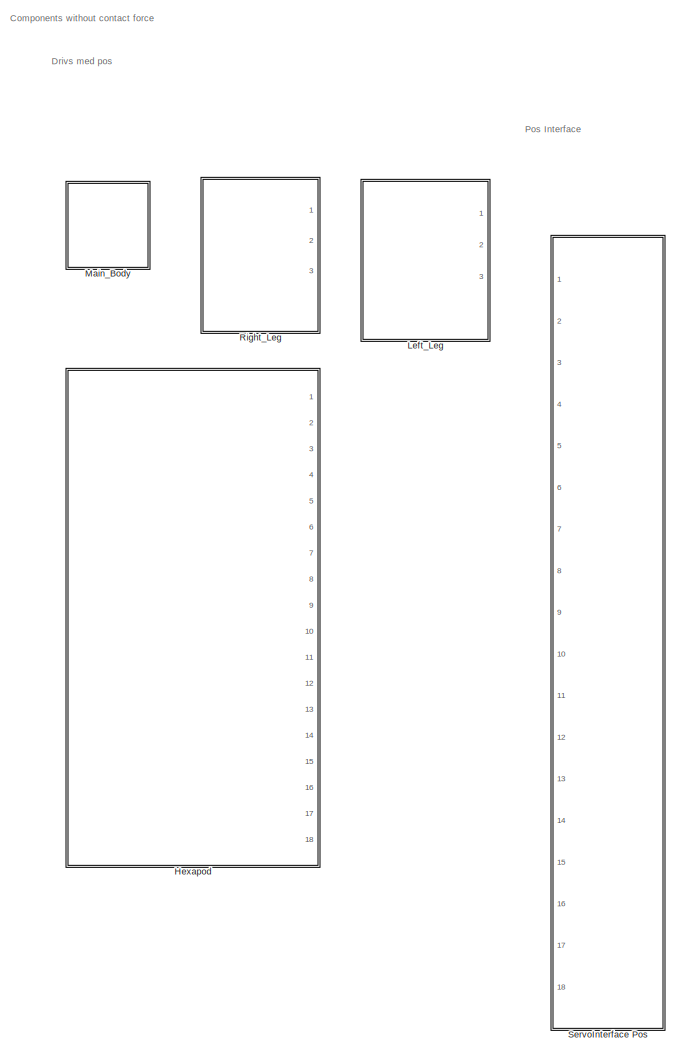
[diagram: root canvas - part 1/2, left side, full height]
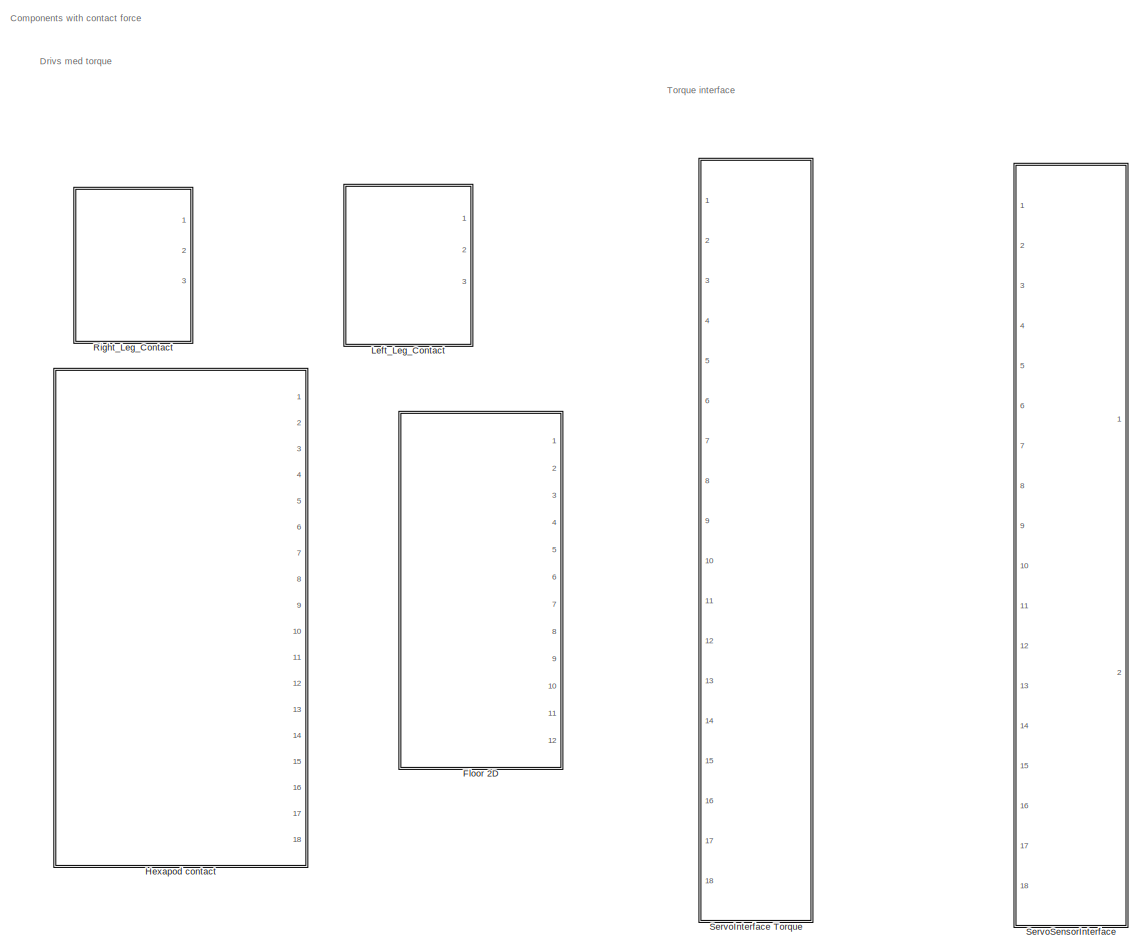
[diagram: root canvas - part 2/2, right side, full height]
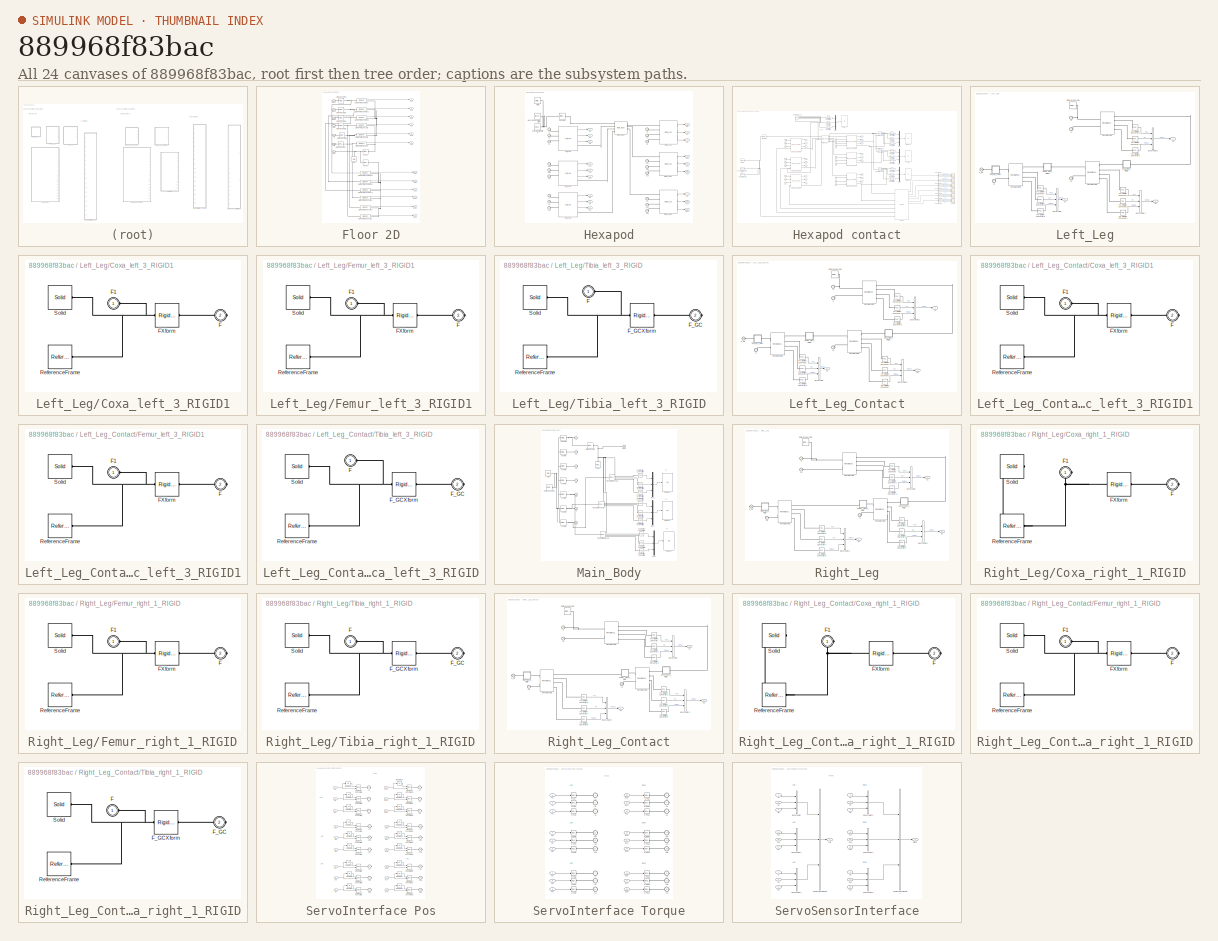
[diagram: thumbnail index - all 24 canvases of the model, root first then tree order]
MODEL slx_889968f83bac
KIND library
BLOCK [SubSystem] Floor 2D
  Ports = [0, 12, 0, 0, 0, 7]
  RequestExecContextInheritance = off
BLOCK [Reference] Floor 2D/Circle to Finite Line Left  REF=Contact_Forces_Lib/2D/Circle to Finite Line Force
  Ports = [0, 1, 0, 0, 0, 1, 1]
  SourceBlock = Contact_Forces_Lib/2D/Circle to Finite Line Force
  SourceType = Circle on Finite Line Force
  b_contact = 1e2
  circle_rad = 0.0048
  custom_param_1 = 1
  custom_param_2 = 1
  force_law = Linear
  friction_law = Stick-Slip Continuous
  k_contact = 1e6
  line_depth = 0.05/2
  line_length = 5
  mu_kinetic = my_k
  mu_static = my_s
  pen_exponent = 1
  pen_full_damp_F = 1e-2
  v_thr = v_th
BLOCK [Reference] Floor 2D/Circle to Finite Line Left1  REF=Contact_Forces_Lib/2D/Circle to Finite Line Force
  Ports = [0, 1, 0, 0, 0, 1, 1]
  SourceBlock = Contact_Forces_Lib/2D/Circle to Finite Line Force
  SourceType = Circle on Finite Line Force
  b_contact = 1e2
  circle_rad = 0.0048
  custom_param_1 = 1
  custom_param_2 = 1
  force_law = Linear
  friction_law = Stick-Slip Continuous
  k_contact = 1e6
  line_depth = 0.05/2
  line_length = 5
  mu_kinetic = my_k
  mu_static = my_s
  pen_exponent = 1
  pen_full_damp_F = 1e-2
  v_thr = v_th
BLOCK [Reference] Floor 2D/Circle to Finite Line Left10  REF=Contact_Forces_Lib/2D/Circle to Finite Line Force
  Ports = [0, 1, 0, 0, 0, 1, 1]
  SourceBlock = Contact_Forces_Lib/2D/Circle to Finite Line Force
  SourceType = Circle on Finite Line Force
  b_contact = 1e2
  circle_rad = 0.0048
  custom_param_1 = 1
  custom_param_2 = 1
  force_law = Linear
  friction_law = Stick-Slip Continuous
  k_contact = 1e6
  line_depth = 0.05/2
  line_length = 5
  mu_kinetic = my_k
  mu_static = my_s
  pen_exponent = 1
  pen_full_damp_F = 1e-2
  v_thr = v_th
BLOCK [Reference] Floor 2D/Circle to Finite Line Left11  REF=Contact_Forces_Lib/2D/Circle to Finite Line Force
  Ports = [0, 1, 0, 0, 0, 1, 1]
  SourceBlock = Contact_Forces_Lib/2D/Circle to Finite Line Force
  SourceType = Circle on Finite Line Force
  b_contact = 1e2
  circle_rad = 0.0048
  custom_param_1 = 1
  custom_param_2 = 1
  force_law = Linear
  friction_law = Stick-Slip Continuous
  k_contact = 1e6
  line_depth = 0.05/2
  line_length = 5
  mu_kinetic = my_k
  mu_static = my_s
  pen_exponent = 1
  pen_full_damp_F = 1e-2
  v_thr = v_th
BLOCK [Reference] Floor 2D/Circle to Finite Line Left12  REF=Contact_Forces_Lib/2D/Circle to Finite Line Force
  Ports = [0, 1, 0, 0, 0, 1, 1]
  SourceBlock = Contact_Forces_Lib/2D/Circle to Finite Line Force
  SourceType = Circle on Finite Line Force
  b_contact = 1e2
  circle_rad = 0.0048
  custom_param_1 = 1
  custom_param_2 = 1
  force_law = Linear
  friction_law = Stick-Slip Continuous
  k_contact = 1e6
  line_depth = 0.05/2
  line_length = 5
  mu_kinetic = my_k
  mu_static = my_s
  pen_exponent = 1
  pen_full_damp_F = 1e-2
  v_thr = v_th
BLOCK [Reference] Floor 2D/Circle to Finite Line Left2  REF=Contact_Forces_Lib/2D/Circle to Finite Line Force
  Ports = [0, 1, 0, 0, 0, 1, 1]
  SourceBlock = Contact_Forces_Lib/2D/Circle to Finite Line Force
  SourceType = Circle on Finite Line Force
  b_contact = 1e2
  circle_rad = 0.0048
  custom_param_1 = 1
  custom_param_2 = 1
  force_law = Linear
  friction_law = Stick-Slip Continuous
  k_contact = 1e6
  line_depth = 0.05/2
  line_length = 5
  mu_kinetic = my_k
  mu_static = my_s
  pen_exponent = 1
  pen_full_damp_F = 1e-2
  v_thr = v_th
BLOCK [Reference] Floor 2D/Circle to Finite Line Righ12  REF=Contact_Forces_Lib/2D/Circle to Finite Line Force
  Ports = [0, 1, 0, 0, 0, 1, 1]
  SourceBlock = Contact_Forces_Lib/2D/Circle to Finite Line Force
  SourceType = Circle on Finite Line Force
  b_contact = 1e2
  circle_rad = 0.0048
  custom_param_1 = 1
  custom_param_2 = 1
  force_law = Linear
  friction_law = Stick-Slip Continuous
  k_contact = 1e6
  line_depth = 0.05/2
  line_length = 5
  mu_kinetic = my_k
  mu_static = my_s
  pen_exponent = 1
  pen_full_damp_F = 1e-2
  v_thr = v_th
BLOCK [Reference] Floor 2D/Circle to Finite Line Right  REF=Contact_Forces_Lib/2D/Circle to Finite Line Force
  Ports = [0, 1, 0, 0, 0, 1, 1]
  SourceBlock = Contact_Forces_Lib/2D/Circle to Finite Line Force
  SourceType = Circle on Finite Line Force
  b_contact = 1e2
  circle_rad = 0.0048
  custom_param_1 = 1
  custom_param_2 = 1
  force_law = Linear
  friction_law = Stick-Slip Continuous
  k_contact = 1e6
  line_depth = 0.05/2
  line_length = 5
  mu_kinetic = my_k
  mu_static = my_s
  pen_exponent = 1
  pen_full_damp_F = 1e-2
  v_thr = v_th
BLOCK [Reference] Floor 2D/Circle to Finite Line Right1  REF=Contact_Forces_Lib/2D/Circle to Finite Line Force
  Ports = [0, 1, 0, 0, 0, 1, 1]
  SourceBlock = Contact_Forces_Lib/2D/Circle to Finite Line Force
  SourceType = Circle on Finite Line Force
  b_contact = 1e2
  circle_rad = 0.0048
  custom_param_1 = 1
  custom_param_2 = 1
  force_law = Linear
  friction_law = Stick-Slip Continuous
  k_contact = 1e6
  line_depth = 0.05/2
  line_length = 5
  mu_kinetic = my_k
  mu_static = my_s
  pen_exponent = 1
  pen_full_damp_F = 1e-2
  v_thr = v_th
BLOCK [Reference] Floor 2D/Circle to Finite Line Right10  REF=Contact_Forces_Lib/2D/Circle to Finite Line Force
  Ports = [0, 1, 0, 0, 0, 1, 1]
  SourceBlock = Contact_Forces_Lib/2D/Circle to Finite Line Force
  SourceType = Circle on Finite Line Force
  b_contact = 1e2
  circle_rad = 0.0048
  custom_param_1 = 1
  custom_param_2 = 1
  force_law = Linear
  friction_law = Stick-Slip Continuous
  k_contact = 1e6
  line_depth = 0.05/2
  line_length = 5
  mu_kinetic = my_k
  mu_static = my_s
  pen_exponent = 1
  pen_full_damp_F = 1e-2
  v_thr = v_th
BLOCK [Reference] Floor 2D/Circle to Finite Line Right11  REF=Contact_Forces_Lib/2D/Circle to Finite Line Force
  Ports = [0, 1, 0, 0, 0, 1, 1]
  SourceBlock = Contact_Forces_Lib/2D/Circle to Finite Line Force
  SourceType = Circle on Finite Line Force
  b_contact = 1e2
  circle_rad = 0.0048
  custom_param_1 = 1
  custom_param_2 = 1
  force_law = Linear
  friction_law = Stick-Slip Continuous
  k_contact = 1e6
  line_depth = 0.05/2
  line_length = 5
  mu_kinetic = my_k
  mu_static = my_s
  pen_exponent = 1
  pen_full_damp_F = 1e-2
  v_thr = v_th
BLOCK [Reference] Floor 2D/Circle to Finite Line Right2  REF=Contact_Forces_Lib/2D/Circle to Finite Line Force
  Ports = [0, 1, 0, 0, 0, 1, 1]
  SourceBlock = Contact_Forces_Lib/2D/Circle to Finite Line Force
  SourceType = Circle on Finite Line Force
  b_contact = 1e2
  circle_rad = 0.0048
  custom_param_1 = 1
  custom_param_2 = 1
  force_law = Linear
  friction_law = Stick-Slip Continuous
  k_contact = 1e6
  line_depth = 0.05/2
  line_length = 5
  mu_kinetic = my_k
  mu_static = my_s
  pen_exponent = 1
  pen_full_damp_F = 1e-2
  v_thr = v_th
BLOCK [Reference] Floor 2D/Floor  REF=sm_lib/Body Elements/Solid
  BlockFunction = simmechanics.library.body_elements.solid
  BrickDimensionUnits = m
  BrickDimensions = [3 3 0.05]
  CenterOfMass = [0 0 0]
  CenterOfMassUnits = m
  ClassName = Solid
  CylinderLength = 1
  CylinderLengthUnits = m
  CylinderRadius = 1
  CylinderRadiusUnits = m
  Density = 1000
  DensityBased = on
  DensityUnits = kg/(m^3)
  EllipsoidRadii = [1 1 1]
  EllipsoidRadiiUnits = m
  ExtGeomFileType = STL
  ExtGeomFileUnits = m
  ExtrusionCrossSection = [1 1; -1 1; -1 -1; 1 -1]
  ExtrusionCrossSectionUnits = m
  ExtrusionLength = 1
  ExtrusionLengthUnits = m
  GeometryShape = Brick
  GraphicAmbientColor = [0.15 0.15 0.15 1.0]
  GraphicDiffuseColor = [0.4 0.4 0.0]
  GraphicEmissiveColor = [0.0 0.0 0.0 1.0]
  GraphicOpacity = 1.0
  GraphicShininess = 75
  GraphicSpecularColor = [0.5 0.5 0.5 1.0]
  GraphicType = FromGeometry
  GraphicVisPropType = SimpleVisualProperties
  InertiaType = CalculateFromGeometry
  LogSimulationData = off
  MarkerShape = Sphere
  MarkerSize = 10
  MarkerSizeUnits = m
  Mass = 1
  MassUnits = kg
  MomentsOfInertia = [1 1 1]
  MomentsOfInertiaUnits = kg*m^2
  PolygonNumSides = 3
  PolygonOuterRadius = 1
  PolygonOuterRadiusUnits = m
  Ports = [0, 0, 0, 0, 0, 0, 1]
  ProductsOfInertia = [0 0 0]
  ProductsOfInertiaUnits = kg*m^2
  RectangleSize = [1 1]
  RectangleSizeUnits = m
  RevolutionAngle = 180
  RevolutionAngleUnits = deg
  RevolutionCrossSection = [1 1; 1 -1; 2 -1; 2 1]
  RevolutionCrossSectionUnits = m
  RevolutionExtent = Full
  SourceBlock = sm_lib/Body Elements/Solid
  SourceType = Solid
  SphereRadius = 1
  SphereRadiusUnits = m
BLOCK [Reference] Floor 2D/Floor1  REF=sm_lib/Frames and
Transforms/Rigid
Transform
  BaseAlignAxisA = +Z
  BaseAlignAxisB = +X
  BlockFunction = simmechanics.library.frames_transforms.rigid_transform
  ClassName = RigidTransform
  FollAlignAxisA = +X
  FollAlignAxisB = +Y
  LogSimulationData = off
  Ports = [0, 0, 0, 0, 0, 1, 1]
  RotationAngle = 0
  RotationAngleUnits = deg
  RotationArbitraryAxis = [0 0 1]
  RotationMatrix = [1 0 0; 0 1 0; 0 0 1]
  RotationMethod = AlignedAxes
  RotationStandardAxis = +Z
  SourceBlock = sm_lib/Frames and\nTransforms/Rigid\nTransform
  SourceType = Rigid\nTransform
  TranslationCartesianOffset = [0 0 0]
  TranslationLengthUnit = m
  TranslationMethod = None
  TranslationROffset = 0
  TranslationROffsetUnits = m
  TranslationStandardAxis = +Z
  TranslationStandardOffset = 0
  TranslationThetaOffset = 0
  TranslationThetaOffsetUnits = deg
  TranslationZOffset = 0
  TranslationZOffsetUnits = m
BLOCK [Reference] Floor 2D/Floor2  REF=sm_lib/Frames and
Transforms/Rigid
Transform
  BaseAlignAxisA = +Z
  BaseAlignAxisB = +Y
  BlockFunction = simmechanics.library.frames_transforms.rigid_transform
  ClassName = RigidTransform
  FollAlignAxisA = +X
  FollAlignAxisB = +Y
  LogSimulationData = off
  Ports = [0, 0, 0, 0, 0, 1, 1]
  RotationAngle = 0
  RotationAngleUnits = deg
  RotationArbitraryAxis = [0 0 1]
  RotationMatrix = [1 0 0; 0 1 0; 0 0 1]
  RotationMethod = AlignedAxes
  RotationStandardAxis = +Z
  SourceBlock = sm_lib/Frames and\nTransforms/Rigid\nTransform
  SourceType = Rigid\nTransform
  TranslationCartesianOffset = [0 0 0]
  TranslationLengthUnit = m
  TranslationMethod = None
  TranslationROffset = 0
  TranslationROffsetUnits = m
  TranslationStandardAxis = +Z
  TranslationStandardOffset = 0
  TranslationThetaOffset = 0
  TranslationThetaOffsetUnits = deg
  TranslationZOffset = 0
  TranslationZOffsetUnits = m
BLOCK [PMIOPort] Floor 2D/Left1
  Port = 6
  Side = Left
BLOCK [PMIOPort] Floor 2D/Left2
  Port = 5
  Side = Left
BLOCK [PMIOPort] Floor 2D/Left3
  Port = 4
  Side = Left
BLOCK [Outport] Floor 2D/Out1
  IconDisplay = Port number
BLOCK [Outport] Floor 2D/Out10
  IconDisplay = Port number
  Port = 10
BLOCK [Outport] Floor 2D/Out11
  IconDisplay = Port number
  Port = 11
BLOCK [Outport] Floor 2D/Out12
  IconDisplay = Port number
  Port = 12
BLOCK [Outport] Floor 2D/Out2
  IconDisplay = Port number
  Port = 2
BLOCK [Outport] Floor 2D/Out3
  IconDisplay = Port number
  Port = 3
BLOCK [Outport] Floor 2D/Out4
  IconDisplay = Port number
  Port = 4
BLOCK [Outport] Floor 2D/Out5
  IconDisplay = Port number
  Port = 5
BLOCK [Outport] Floor 2D/Out6
  IconDisplay = Port number
  Port = 6
BLOCK [Outport] Floor 2D/Out7
  IconDisplay = Port number
  Port = 7
BLOCK [Outport] Floor 2D/Out8
  IconDisplay = Port number
  Port = 8
BLOCK [Outport] Floor 2D/Out9
  IconDisplay = Port number
  Port = 9
BLOCK [PMIOPort] Floor 2D/Right1
  Port = 1
  Side = Left
BLOCK [PMIOPort] Floor 2D/Right2
  Port = 2
  Side = Left
BLOCK [PMIOPort] Floor 2D/Right3
  Port = 3
  Side = Left
BLOCK [Reference] Floor 2D/Rigid Transform1  REF=sm_lib/Frames and
Transforms/Rigid
Transform
  BaseAlignAxisA = +Z
  BaseAlignAxisB = +X
  BlockFunction = simmechanics.library.frames_transforms.rigid_transform
  ClassName = RigidTransform
  FollAlignAxisA = +X
  FollAlignAxisB = +Y
  LogSimulationData = off
  Ports = [0, 0, 0, 0, 0, 1, 1]
  RotationAngle = 90
  RotationAngleUnits = deg
  RotationArbitraryAxis = [0 0 1]
  RotationMatrix = [1 0 0; 0 1 0; 0 0 1]
  RotationMethod = StandardAxis
  RotationStandardAxis = +X
  SourceBlock = sm_lib/Frames and\nTransforms/Rigid\nTransform
  SourceType = Rigid\nTransform
  TranslationCartesianOffset = [0 0 0]
  TranslationLengthUnit = m
  TranslationMethod = None
  TranslationROffset = 0
  TranslationROffsetUnits = m
  TranslationStandardAxis = +Z
  TranslationStandardOffset = 0
  TranslationThetaOffset = 0
  TranslationThetaOffsetUnits = deg
  TranslationZOffset = 0
  TranslationZOffsetUnits = m
BLOCK [Reference] Floor 2D/Rigid Transform3  REF=sm_lib/Frames and
Transforms/Rigid
Transform
  BaseAlignAxisA = +Z
  BaseAlignAxisB = +X
  BlockFunction = simmechanics.library.frames_transforms.rigid_transform
  ClassName = RigidTransform
  FollAlignAxisA = +X
  FollAlignAxisB = +Y
  LogSimulationData = off
  Ports = [0, 0, 0, 0, 0, 1, 1]
  RotationAngle = 90
  RotationAngleUnits = deg
  RotationArbitraryAxis = [0 0 1]
  RotationMatrix = [1 0 0; 0 1 0; 0 0 1]
  RotationMethod = StandardAxis
  RotationStandardAxis = +X
  SourceBlock = sm_lib/Frames and\nTransforms/Rigid\nTransform
  SourceType = Rigid\nTransform
  TranslationCartesianOffset = [0 0 0]
  TranslationLengthUnit = m
  TranslationMethod = None
  TranslationROffset = 0
  TranslationROffsetUnits = m
  TranslationStandardAxis = +Z
  TranslationStandardOffset = 0
  TranslationThetaOffset = 0
  TranslationThetaOffsetUnits = deg
  TranslationZOffset = 0
  TranslationZOffsetUnits = m
BLOCK [Reference] Floor 2D/Rigid Transform4  REF=sm_lib/Frames and
Transforms/Rigid
Transform
  BaseAlignAxisA = +Z
  BaseAlignAxisB = +X
  BlockFunction = simmechanics.library.frames_transforms.rigid_transform
  ClassName = RigidTransform
  FollAlignAxisA = +X
  FollAlignAxisB = +Y
  LogSimulationData = off
  Ports = [0, 0, 0, 0, 0, 1, 1]
  RotationAngle = 90
  RotationAngleUnits = deg
  RotationArbitraryAxis = [0 0 1]
  RotationMatrix = [1 0 0; 0 1 0; 0 0 1]
  RotationMethod = StandardAxis
  RotationStandardAxis = +X
  SourceBlock = sm_lib/Frames and\nTransforms/Rigid\nTransform
  SourceType = Rigid\nTransform
  TranslationCartesianOffset = [0 0 0]
  TranslationLengthUnit = m
  TranslationMethod = None
  TranslationROffset = 0
  TranslationROffsetUnits = m
  TranslationStandardAxis = +Z
  TranslationStandardOffset = 0
  TranslationThetaOffset = 0
  TranslationThetaOffsetUnits = deg
  TranslationZOffset = 0
  TranslationZOffsetUnits = m
BLOCK [Reference] Floor 2D/Rigid Transform5  REF=sm_lib/Frames and
Transforms/Rigid
Transform
  BaseAlignAxisA = +Z
  BaseAlignAxisB = +X
  BlockFunction = simmechanics.library.frames_transforms.rigid_transform
  ClassName = RigidTransform
  FollAlignAxisA = +X
  FollAlignAxisB = +Y
  LogSimulationData = off
  Ports = [0, 0, 0, 0, 0, 1, 1]
  RotationAngle = 90
  RotationAngleUnits = deg
  RotationArbitraryAxis = [0 0 1]
  RotationMatrix = [1 0 0; 0 1 0; 0 0 1]
  RotationMethod = StandardAxis
  RotationStandardAxis = +X
  SourceBlock = sm_lib/Frames and\nTransforms/Rigid\nTransform
  SourceType = Rigid\nTransform
  TranslationCartesianOffset = [0 0 0]
  TranslationLengthUnit = m
  TranslationMethod = None
  TranslationROffset = 0
  TranslationROffsetUnits = m
  TranslationStandardAxis = +Z
  TranslationStandardOffset = 0
  TranslationThetaOffset = 0
  TranslationThetaOffsetUnits = deg
  TranslationZOffset = 0
  TranslationZOffsetUnits = m
BLOCK [Reference] Floor 2D/Rigid Transform6  REF=sm_lib/Frames and
Transforms/Rigid
Transform
  BaseAlignAxisA = +Z
  BaseAlignAxisB = +X
  BlockFunction = simmechanics.library.frames_transforms.rigid_transform
  ClassName = RigidTransform
  FollAlignAxisA = +X
  FollAlignAxisB = +Y
  LogSimulationData = off
  Ports = [0, 0, 0, 0, 0, 1, 1]
  RotationAngle = 90
  RotationAngleUnits = deg
  RotationArbitraryAxis = [0 0 1]
  RotationMatrix = [1 0 0; 0 1 0; 0 0 1]
  RotationMethod = StandardAxis
  RotationStandardAxis = +X
  SourceBlock = sm_lib/Frames and\nTransforms/Rigid\nTransform
  SourceType = Rigid\nTransform
  TranslationCartesianOffset = [0 0 0]
  TranslationLengthUnit = m
  TranslationMethod = None
  TranslationROffset = 0
  TranslationROffsetUnits = m
  TranslationStandardAxis = +Z
  TranslationStandardOffset = 0
  TranslationThetaOffset = 0
  TranslationThetaOffsetUnits = deg
  TranslationZOffset = 0
  TranslationZOffsetUnits = m
BLOCK [Reference] Floor 2D/Rigid Transform7  REF=sm_lib/Frames and
Transforms/Rigid
Transform
  BaseAlignAxisA = +Z
  BaseAlignAxisB = +X
  BlockFunction = simmechanics.library.frames_transforms.rigid_transform
  ClassName = RigidTransform
  FollAlignAxisA = +X
  FollAlignAxisB = +Y
  LogSimulationData = off
  Ports = [0, 0, 0, 0, 0, 1, 1]
  RotationAngle = 90
  RotationAngleUnits = deg
  RotationArbitraryAxis = [0 0 1]
  RotationMatrix = [1 0 0; 0 1 0; 0 0 1]
  RotationMethod = StandardAxis
  RotationStandardAxis = +X
  SourceBlock = sm_lib/Frames and\nTransforms/Rigid\nTransform
  SourceType = Rigid\nTransform
  TranslationCartesianOffset = [0 0 0]
  TranslationLengthUnit = m
  TranslationMethod = None
  TranslationROffset = 0
  TranslationROffsetUnits = m
  TranslationStandardAxis = +Z
  TranslationStandardOffset = 0
  TranslationThetaOffset = 0
  TranslationThetaOffsetUnits = deg
  TranslationZOffset = 0
  TranslationZOffsetUnits = m
BLOCK [PMIOPort] Floor 2D/World
  Port = 7
  Side = Left
BLOCK [SubSystem] Hexapod
  Ports = [0, 18, 0, 0, 0, 18]
  RequestExecContextInheritance = off
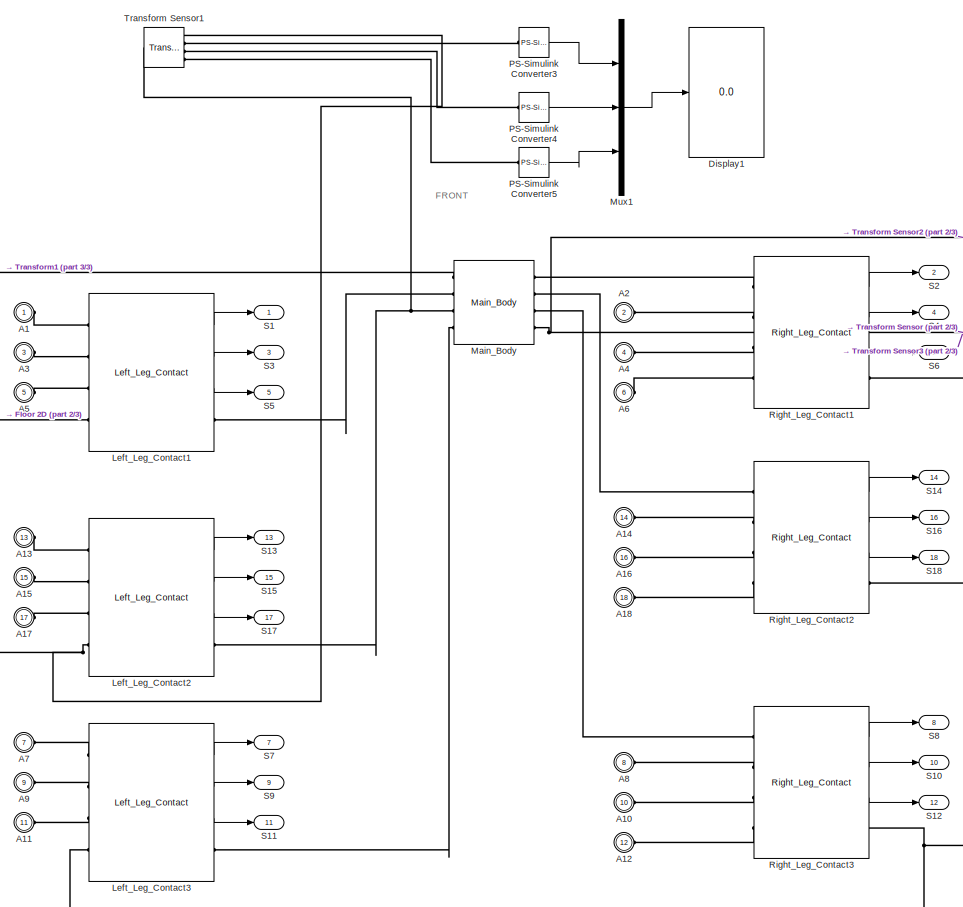
[diagram: Hexapod contact - part 1/3, central region]
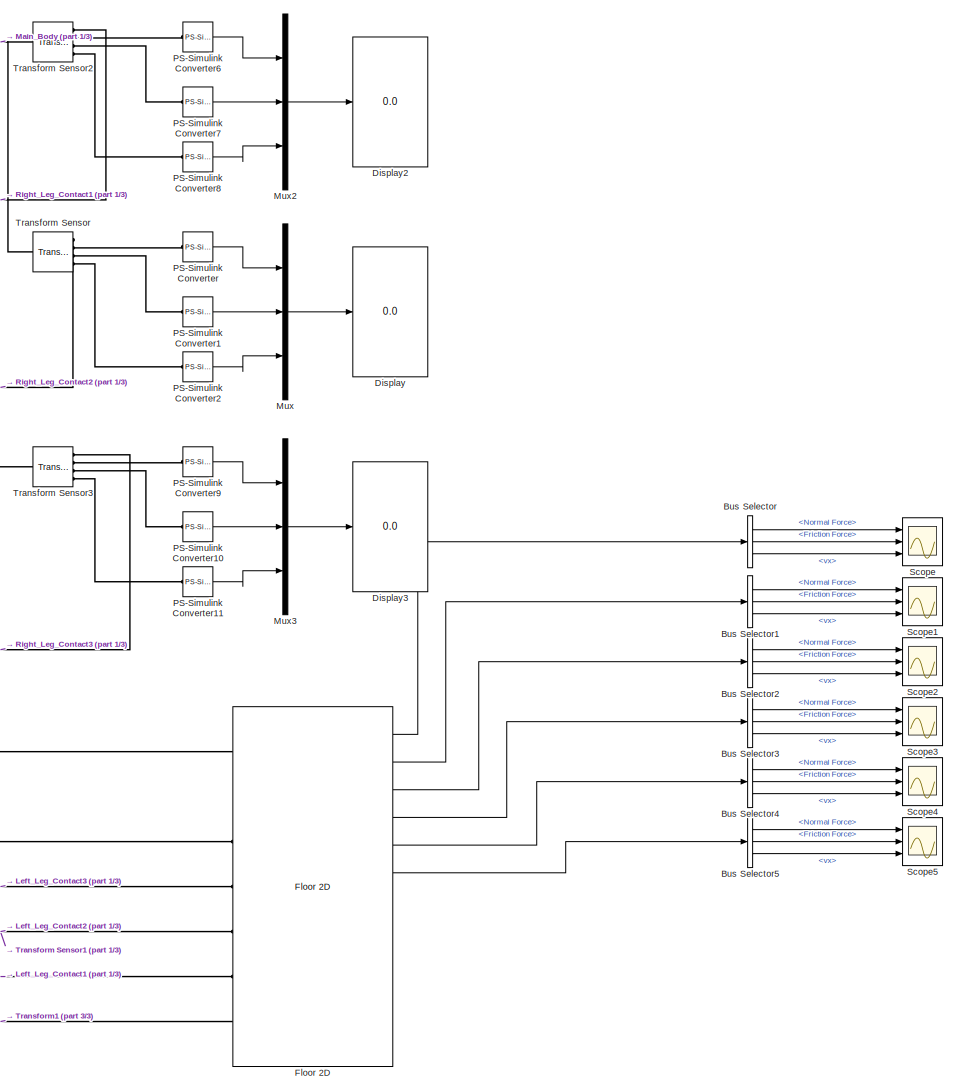
[diagram: Hexapod contact - part 2/3, right side, full height]
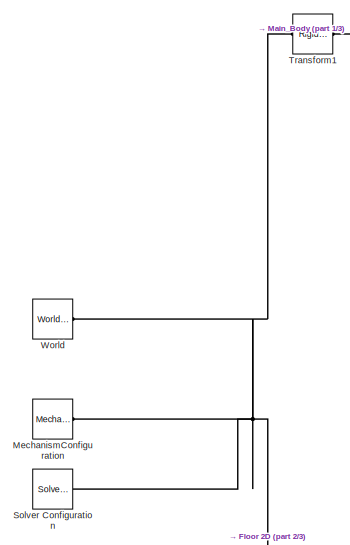
[diagram: Hexapod contact - part 3/3, middle left region]
BLOCK [SubSystem] Hexapod contact
  Ports = [0, 18, 0, 0, 0, 18]
  RequestExecContextInheritance = off
BLOCK [PMIOPort] Hexapod contact/A1
  Port = 1
  Side = Left
BLOCK [PMIOPort] Hexapod contact/A10
  Port = 10
  Side = Left
BLOCK [PMIOPort] Hexapod contact/A11
  Port = 11
  Side = Left
BLOCK [PMIOPort] Hexapod contact/A12
  Port = 12
  Side = Left
BLOCK [PMIOPort] Hexapod contact/A13
  Port = 13
  Side = Left
BLOCK [PMIOPort] Hexapod contact/A14
  Port = 14
  Side = Left
BLOCK [PMIOPort] Hexapod contact/A15
  Port = 15
  Side = Left
BLOCK [PMIOPort] Hexapod contact/A16
  Port = 16
  Side = Left
BLOCK [PMIOPort] Hexapod contact/A17
  Port = 17
  Side = Left
BLOCK [PMIOPort] Hexapod contact/A18
  Port = 18
  Side = Left
BLOCK [PMIOPort] Hexapod contact/A2
  Port = 2
  Side = Left
BLOCK [PMIOPort] Hexapod contact/A3
  Port = 3
  Side = Left
BLOCK [PMIOPort] Hexapod contact/A4
  Port = 4
  Side = Left
BLOCK [PMIOPort] Hexapod contact/A5
  Port = 5
  Side = Left
BLOCK [PMIOPort] Hexapod contact/A6
  Port = 6
  Side = Left
BLOCK [PMIOPort] Hexapod contact/A7
  Port = 7
  Side = Left
BLOCK [PMIOPort] Hexapod contact/A8
  Port = 8
  Side = Left
BLOCK [PMIOPort] Hexapod contact/A9
  Port = 9
  Side = Left
BLOCK [BusSelector] Hexapod contact/Bus Selector
  Commented = on
  OutputSignals = Normal Force,Friction Force,Frame Sep.vx
  Ports = [1, 3]
BLOCK [BusSelector] Hexapod contact/Bus Selector1
  Commented = on
  OutputSignals = Normal Force,Friction Force,Frame Sep.vx
  Ports = [1, 3]
BLOCK [BusSelector] Hexapod contact/Bus Selector2
  Commented = on
  OutputSignals = Normal Force,Friction Force,Frame Sep.vx
  Ports = [1, 3]
BLOCK [BusSelector] Hexapod contact/Bus Selector3
  Commented = on
  OutputSignals = Normal Force,Friction Force,Frame Sep.vx
  Ports = [1, 3]
BLOCK [BusSelector] Hexapod contact/Bus Selector4
  Commented = on
  OutputSignals = Normal Force,Friction Force,Frame Sep.vx
  Ports = [1, 3]
BLOCK [BusSelector] Hexapod contact/Bus Selector5
  Commented = on
  OutputSignals = Normal Force,Friction Force,Frame Sep.vx
  Ports = [1, 3]
BLOCK [Display] Hexapod contact/Display
  Decimation = 1
  Ports = [1]
BLOCK [Display] Hexapod contact/Display1
  Decimation = 1
  Ports = [1]
BLOCK [Display] Hexapod contact/Display2
  Decimation = 1
  Ports = [1]
BLOCK [Display] Hexapod contact/Display3
  Decimation = 1
  Ports = [1]
BLOCK [Reference] Hexapod contact/Floor 2D  REF=HexapodLib/Floor 2D
  Commented = on
  Ports = [0, 12, 0, 0, 0, 7]
  SourceBlock = HexapodLib/Floor 2D
  my_k = 0.5
  my_s = 0.7
  v_th = 0.01
BLOCK [Reference] Hexapod contact/Left_Leg_Contact1  REF=HexapodLib/Left_Leg_Contact
  FunctionWithSeparateData = off
  GeneratePreprocessorConditionals = off
  Ports = [0, 3, 0, 0, 0, 4, 1]
  ShowPortLabels = FromPortIcon
  SourceBlock = HexapodLib/Left_Leg_Contact
  SystemSampleTime = -1
BLOCK [Reference] Hexapod contact/Left_Leg_Contact2  REF=HexapodLib/Left_Leg_Contact
  FunctionWithSeparateData = off
  GeneratePreprocessorConditionals = off
  Ports = [0, 3, 0, 0, 0, 4, 1]
  ShowPortLabels = FromPortIcon
  SourceBlock = HexapodLib/Left_Leg_Contact
  SystemSampleTime = -1
BLOCK [Reference] Hexapod contact/Left_Leg_Contact3  REF=HexapodLib/Left_Leg_Contact
  FunctionWithSeparateData = off
  GeneratePreprocessorConditionals = off
  Ports = [0, 3, 0, 0, 0, 4, 1]
  ShowPortLabels = FromPortIcon
  SourceBlock = HexapodLib/Left_Leg_Contact
  SystemSampleTime = -1
BLOCK [Reference] Hexapod contact/Main_Body  REF=HexapodLib/Main_Body
  FunctionWithSeparateData = off
  GeneratePreprocessorConditionals = off
  Ports = [0, 0, 0, 0, 0, 4, 4]
  ShowPortLabels = FromPortIcon
  SourceBlock = HexapodLib/Main_Body
  SystemSampleTime = -1
BLOCK [Reference] Hexapod contact/MechanismConfiguration  REF=sm_lib/Utilities/Mechanism
Configuration
  BlockFunction = simmechanics.library.utilities.mechanism_configuration
  ClassName = MechanismConfiguration
  GravityUnits = m/s^2
  GravityVector = [0 0 -9.81]
  LinearizationDelta = 0.001
  LogSimulationData = off
  Ports = [0, 0, 0, 0, 0, 0, 1]
  SourceBlock = sm_lib/Utilities/Mechanism\nConfiguration
  SourceType = Mechanism\nConfiguration
  UniformGravity = Constant
BLOCK [Mux] Hexapod contact/Mux
  DisplayOption = bar
  Inputs = 3
  Ports = [3, 1]
BLOCK [Mux] Hexapod contact/Mux1
  DisplayOption = bar
  Inputs = 3
  Ports = [3, 1]
BLOCK [Mux] Hexapod contact/Mux2
  DisplayOption = bar
  Inputs = 3
  Ports = [3, 1]
BLOCK [Mux] Hexapod contact/Mux3
  DisplayOption = bar
  Inputs = 3
  Ports = [3, 1]
BLOCK [Reference] Hexapod contact/PS-Simulink Converter  REF=nesl_utility/PS-Simulink
Converter
  AffineConversion = off
  Frequencies = []
  LeftPortType = input
  PhysicalDomain = network_engine_domain
  Ports = [0, 1, 0, 0, 0, 1]
  PseudoPeriodic = off
  RightPortType = output
  SourceBlock = nesl_utility/PS-Simulink\nConverter
  SourceType = PS-Simulink\nConverter
  SubClassName = ps_output
  Unit = mm
BLOCK [Reference] Hexapod contact/PS-Simulink Converter1  REF=nesl_utility/PS-Simulink
Converter
  AffineConversion = off
  Frequencies = []
  LeftPortType = input
  PhysicalDomain = network_engine_domain
  Ports = [0, 1, 0, 0, 0, 1]
  PseudoPeriodic = off
  RightPortType = output
  SourceBlock = nesl_utility/PS-Simulink\nConverter
  SourceType = PS-Simulink\nConverter
  SubClassName = ps_output
  Unit = mm
BLOCK [Reference] Hexapod contact/PS-Simulink Converter10  REF=nesl_utility/PS-Simulink
Converter
  AffineConversion = off
  Frequencies = []
  LeftPortType = input
  PhysicalDomain = network_engine_domain
  Ports = [0, 1, 0, 0, 0, 1]
  PseudoPeriodic = off
  RightPortType = output
  SourceBlock = nesl_utility/PS-Simulink\nConverter
  SourceType = PS-Simulink\nConverter
  SubClassName = ps_output
  Unit = mm
BLOCK [Reference] Hexapod contact/PS-Simulink Converter11  REF=nesl_utility/PS-Simulink
Converter
  AffineConversion = off
  Frequencies = []
  LeftPortType = input
  PhysicalDomain = network_engine_domain
  Ports = [0, 1, 0, 0, 0, 1]
  PseudoPeriodic = off
  RightPortType = output
  SourceBlock = nesl_utility/PS-Simulink\nConverter
  SourceType = PS-Simulink\nConverter
  SubClassName = ps_output
  Unit = mm
BLOCK [Reference] Hexapod contact/PS-Simulink Converter2  REF=nesl_utility/PS-Simulink
Converter
  AffineConversion = off
  Frequencies = []
  LeftPortType = input
  PhysicalDomain = network_engine_domain
  Ports = [0, 1, 0, 0, 0, 1]
  PseudoPeriodic = off
  RightPortType = output
  SourceBlock = nesl_utility/PS-Simulink\nConverter
  SourceType = PS-Simulink\nConverter
  SubClassName = ps_output
  Unit = mm
BLOCK [Reference] Hexapod contact/PS-Simulink Converter3  REF=nesl_utility/PS-Simulink
Converter
  AffineConversion = off
  Frequencies = []
  LeftPortType = input
  PhysicalDomain = network_engine_domain
  Ports = [0, 1, 0, 0, 0, 1]
  PseudoPeriodic = off
  RightPortType = output
  SourceBlock = nesl_utility/PS-Simulink\nConverter
  SourceType = PS-Simulink\nConverter
  SubClassName = ps_output
  Unit = mm
BLOCK [Reference] Hexapod contact/PS-Simulink Converter4  REF=nesl_utility/PS-Simulink
Converter
  AffineConversion = off
  Frequencies = []
  LeftPortType = input
  PhysicalDomain = network_engine_domain
  Ports = [0, 1, 0, 0, 0, 1]
  PseudoPeriodic = off
  RightPortType = output
  SourceBlock = nesl_utility/PS-Simulink\nConverter
  SourceType = PS-Simulink\nConverter
  SubClassName = ps_output
  Unit = mm
BLOCK [Reference] Hexapod contact/PS-Simulink Converter5  REF=nesl_utility/PS-Simulink
Converter
  AffineConversion = off
  Frequencies = []
  LeftPortType = input
  PhysicalDomain = network_engine_domain
  Ports = [0, 1, 0, 0, 0, 1]
  PseudoPeriodic = off
  RightPortType = output
  SourceBlock = nesl_utility/PS-Simulink\nConverter
  SourceType = PS-Simulink\nConverter
  SubClassName = ps_output
  Unit = mm
BLOCK [Reference] Hexapod contact/PS-Simulink Converter6  REF=nesl_utility/PS-Simulink
Converter
  AffineConversion = off
  Frequencies = []
  LeftPortType = input
  PhysicalDomain = network_engine_domain
  Ports = [0, 1, 0, 0, 0, 1]
  PseudoPeriodic = off
  RightPortType = output
  SourceBlock = nesl_utility/PS-Simulink\nConverter
  SourceType = PS-Simulink\nConverter
  SubClassName = ps_output
  Unit = mm
BLOCK [Reference] Hexapod contact/PS-Simulink Converter7  REF=nesl_utility/PS-Simulink
Converter
  AffineConversion = off
  Frequencies = []
  LeftPortType = input
  PhysicalDomain = network_engine_domain
  Ports = [0, 1, 0, 0, 0, 1]
  PseudoPeriodic = off
  RightPortType = output
  SourceBlock = nesl_utility/PS-Simulink\nConverter
  SourceType = PS-Simulink\nConverter
  SubClassName = ps_output
  Unit = mm
BLOCK [Reference] Hexapod contact/PS-Simulink Converter8  REF=nesl_utility/PS-Simulink
Converter
  AffineConversion = off
  Frequencies = []
  LeftPortType = input
  PhysicalDomain = network_engine_domain
  Ports = [0, 1, 0, 0, 0, 1]
  PseudoPeriodic = off
  RightPortType = output
  SourceBlock = nesl_utility/PS-Simulink\nConverter
  SourceType = PS-Simulink\nConverter
  SubClassName = ps_output
  Unit = mm
BLOCK [Reference] Hexapod contact/PS-Simulink Converter9  REF=nesl_utility/PS-Simulink
Converter
  AffineConversion = off
  Frequencies = []
  LeftPortType = input
  PhysicalDomain = network_engine_domain
  Ports = [0, 1, 0, 0, 0, 1]
  PseudoPeriodic = off
  RightPortType = output
  SourceBlock = nesl_utility/PS-Simulink\nConverter
  SourceType = PS-Simulink\nConverter
  SubClassName = ps_output
  Unit = mm
BLOCK [Reference] Hexapod contact/Right_Leg_Contact1  REF=HexapodLib/Right_Leg_Contact
  FunctionWithSeparateData = off
  GeneratePreprocessorConditionals = off
  Ports = [0, 3, 0, 0, 0, 4, 1]
  ShowPortLabels = FromPortIcon
  SourceBlock = HexapodLib/Right_Leg_Contact
  SystemSampleTime = -1
BLOCK [Reference] Hexapod contact/Right_Leg_Contact2  REF=HexapodLib/Right_Leg_Contact
  FunctionWithSeparateData = off
  GeneratePreprocessorConditionals = off
  Ports = [0, 3, 0, 0, 0, 4, 1]
  ShowPortLabels = FromPortIcon
  SourceBlock = HexapodLib/Right_Leg_Contact
  SystemSampleTime = -1
BLOCK [Reference] Hexapod contact/Right_Leg_Contact3  REF=HexapodLib/Right_Leg_Contact
  FunctionWithSeparateData = off
  GeneratePreprocessorConditionals = off
  Ports = [0, 3, 0, 0, 0, 4, 1]
  ShowPortLabels = FromPortIcon
  SourceBlock = HexapodLib/Right_Leg_Contact
  SystemSampleTime = -1
BLOCK [Outport] Hexapod contact/S1
  IconDisplay = Port number
BLOCK [Outport] Hexapod contact/S10
  IconDisplay = Port number
  Port = 10
BLOCK [Outport] Hexapod contact/S11
  IconDisplay = Port number
  Port = 11
BLOCK [Outport] Hexapod contact/S12
  IconDisplay = Port number
  Port = 12
BLOCK [Outport] Hexapod contact/S13
  IconDisplay = Port number
  Port = 13
BLOCK [Outport] Hexapod contact/S14
  IconDisplay = Port number
  Port = 14
BLOCK [Outport] Hexapod contact/S15
  IconDisplay = Port number
  Port = 15
BLOCK [Outport] Hexapod contact/S16
  IconDisplay = Port number
  Port = 16
BLOCK [Outport] Hexapod contact/S17
  IconDisplay = Port number
  Port = 17
BLOCK [Outport] Hexapod contact/S18
  IconDisplay = Port number
  Port = 18
BLOCK [Outport] Hexapod contact/S2
  IconDisplay = Port number
  Port = 2
BLOCK [Outport] Hexapod contact/S3
  IconDisplay = Port number
  Port = 3
BLOCK [Outport] Hexapod contact/S4
  IconDisplay = Port number
  Port = 4
BLOCK [Outport] Hexapod contact/S5
  IconDisplay = Port number
  Port = 5
BLOCK [Outport] Hexapod contact/S6
  IconDisplay = Port number
  Port = 6
BLOCK [Outport] Hexapod contact/S7
  IconDisplay = Port number
  Port = 7
BLOCK [Outport] Hexapod contact/S8
  IconDisplay = Port number
  Port = 8
BLOCK [Outport] Hexapod contact/S9
  IconDisplay = Port number
  Port = 9
BLOCK [Scope] Hexapod contact/Scope
  Commented = on
  Floating = off
  NumInputPorts = 3
  Ports = [3]
  ShowLegends = off
  YMax = 2~0.00011~-4e-07
  YMin = 0.5~2e-05~-1.1e-06
BLOCK [Scope] Hexapod contact/Scope1
  Commented = on
  Floating = off
  NumInputPorts = 3
  Ports = [3]
  ShowLegends = off
  YMax = 5~5~5
  YMin = -5~-5~-5
BLOCK [Scope] Hexapod contact/Scope2
  Commented = on
  Floating = off
  NumInputPorts = 3
  Ports = [3]
  SaveName = ScopeData1
  ShowLegends = off
  YMax = 5~5~5
  YMin = -5~-5~-5
BLOCK [Scope] Hexapod contact/Scope3
  Commented = on
  Floating = off
  NumInputPorts = 3
  Ports = [3]
  SaveName = ScopeData2
  ShowLegends = off
  YMax = 5~5~5
  YMin = -5~-5~-5
BLOCK [Scope] Hexapod contact/Scope4
  Commented = on
  Floating = off
  NumInputPorts = 3
  Ports = [3]
  SaveName = ScopeData3
  ShowLegends = off
  YMax = 5~5~5
  YMin = -5~-5~-5
BLOCK [Scope] Hexapod contact/Scope5
  Commented = on
  Floating = off
  NumInputPorts = 3
  Ports = [3]
  SaveName = ScopeData4
  ShowLegends = off
  YMax = 5~5~5
  YMin = -5~-5~-5
BLOCK [Reference] Hexapod contact/Solver Configuration  REF=nesl_utility/Solver
Configuration
  AbsTol = 1e-06
  Accelerate = off
  AutomaticFiltering = on
  DelaysMemoryBudget = 1024
  DoDC = off
  DoFixedCost = off
  EnableSwitchedLinearOptims = on
  FilteringTimeConstant = 0.001
  FrequencyDomain = off
  Harmonics = []
  LeftPortType = input
  LinearAlgebra = Sparse
  LocalSolverChoice = NE_BACKWARD_EULER_ADVANCER
  LocalSolverSampleTime = 0.001
  MaxModeIter = 2
  MaxNonlinIter = 3
  MinStep = 1e-09
  PhysicalDomain = network_engine_domain
  Ports = [0, 0, 0, 0, 0, 0, 1]
  Profile = off
  RelTol = 0.001
  ResidualTolerance = 1e-09
  RightPortType = generic
  SimulateNoise = off
  SourceBlock = nesl_utility/Solver\nConfiguration
  SourceType = Solver\nConfiguration
  SubClassName = solver
  ToWorkspace = off
  Tones = []
  UseCCode = off
  UseLocalSampling = off
  UseLocalSolver = off
BLOCK [Reference] Hexapod contact/Transform Sensor  REF=sm_lib/Frames and
Transforms/Transform
Sensor
  BlockFunction = simmechanics.library.frames_transforms.transform_sensor
  ClassName = TransformSensor
  LogSimulationData = off
  MeasurementFrame = Base
  Ports = [0, 0, 0, 0, 0, 1, 4]
  SenseAlpha1 = off
  SenseAlpha2 = off
  SenseAlpha3 = off
  SenseAlphaX = off
  SenseAlphaY = off
  SenseAlphaZ = off
  SenseAngle = off
  SenseAngle1 = off
  SenseAngle2 = off
  SenseAngle3 = off
  SenseAxis = off
  SenseAzim = off
  SenseAzimDDot = off
  SenseAzimDot = off
  SenseDist = off
  SenseDistDDot = off
  SenseDistDot = off
  SenseInc = off
  SenseIncDDot = off
  SenseIncDot = off
  SenseOmega1 = off
  SenseOmega2 = off
  SenseOmega3 = off
  SenseOmegaX = off
  SenseOmegaY = off
  SenseOmegaZ = off
  SenseQ = off
  SenseQDDot = off
  SenseQDot = off
  SenseR = off
  SenseRDDot = off
  SenseRDot = off
  SenseRad = off
  SenseRadDDot = off
  SenseRadDot = off
  SenseX = on
  SenseXDDot = off
  SenseXDot = off
  SenseY = on
  SenseYDDot = off
  SenseYDot = off
  SenseZ = on
  SenseZDDot = off
  SenseZDot = off
  SourceBlock = sm_lib/Frames and\nTransforms/Transform\nSensor
  SourceType = Transform\nSensor
BLOCK [Reference] Hexapod contact/Transform Sensor1  REF=sm_lib/Frames and
Transforms/Transform
Sensor
  BlockFunction = simmechanics.library.frames_transforms.transform_sensor
  ClassName = TransformSensor
  LogSimulationData = off
  MeasurementFrame = Base
  Ports = [0, 0, 0, 0, 0, 1, 4]
  SenseAlpha1 = off
  SenseAlpha2 = off
  SenseAlpha3 = off
  SenseAlphaX = off
  SenseAlphaY = off
  SenseAlphaZ = off
  SenseAngle = off
  SenseAngle1 = off
  SenseAngle2 = off
  SenseAngle3 = off
  SenseAxis = off
  SenseAzim = off
  SenseAzimDDot = off
  SenseAzimDot = off
  SenseDist = off
  SenseDistDDot = off
  SenseDistDot = off
  SenseInc = off
  SenseIncDDot = off
  SenseIncDot = off
  SenseOmega1 = off
  SenseOmega2 = off
  SenseOmega3 = off
  SenseOmegaX = off
  SenseOmegaY = off
  SenseOmegaZ = off
  SenseQ = off
  SenseQDDot = off
  SenseQDot = off
  SenseR = off
  SenseRDDot = off
  SenseRDot = off
  SenseRad = off
  SenseRadDDot = off
  SenseRadDot = off
  SenseX = on
  SenseXDDot = off
  SenseXDot = off
  SenseY = on
  SenseYDDot = off
  SenseYDot = off
  SenseZ = on
  SenseZDDot = off
  SenseZDot = off
  SourceBlock = sm_lib/Frames and\nTransforms/Transform\nSensor
  SourceType = Transform\nSensor
BLOCK [Reference] Hexapod contact/Transform Sensor2  REF=sm_lib/Frames and
Transforms/Transform
Sensor
  BlockFunction = simmechanics.library.frames_transforms.transform_sensor
  ClassName = TransformSensor
  LogSimulationData = off
  MeasurementFrame = Base
  Ports = [0, 0, 0, 0, 0, 1, 4]
  SenseAlpha1 = off
  SenseAlpha2 = off
  SenseAlpha3 = off
  SenseAlphaX = off
  SenseAlphaY = off
  SenseAlphaZ = off
  SenseAngle = off
  SenseAngle1 = off
  SenseAngle2 = off
  SenseAngle3 = off
  SenseAxis = off
  SenseAzim = off
  SenseAzimDDot = off
  SenseAzimDot = off
  SenseDist = off
  SenseDistDDot = off
  SenseDistDot = off
  SenseInc = off
  SenseIncDDot = off
  SenseIncDot = off
  SenseOmega1 = off
  SenseOmega2 = off
  SenseOmega3 = off
  SenseOmegaX = off
  SenseOmegaY = off
  SenseOmegaZ = off
  SenseQ = off
  SenseQDDot = off
  SenseQDot = off
  SenseR = off
  SenseRDDot = off
  SenseRDot = off
  SenseRad = off
  SenseRadDDot = off
  SenseRadDot = off
  SenseX = on
  SenseXDDot = off
  SenseXDot = off
  SenseY = on
  SenseYDDot = off
  SenseYDot = off
  SenseZ = on
  SenseZDDot = off
  SenseZDot = off
  SourceBlock = sm_lib/Frames and\nTransforms/Transform\nSensor
  SourceType = Transform\nSensor
BLOCK [Reference] Hexapod contact/Transform Sensor3  REF=sm_lib/Frames and
Transforms/Transform
Sensor
  BlockFunction = simmechanics.library.frames_transforms.transform_sensor
  ClassName = TransformSensor
  LogSimulationData = off
  MeasurementFrame = Base
  Ports = [0, 0, 0, 0, 0, 1, 4]
  SenseAlpha1 = off
  SenseAlpha2 = off
  SenseAlpha3 = off
  SenseAlphaX = off
  SenseAlphaY = off
  SenseAlphaZ = off
  SenseAngle = off
  SenseAngle1 = off
  SenseAngle2 = off
  SenseAngle3 = off
  SenseAxis = off
  SenseAzim = off
  SenseAzimDDot = off
  SenseAzimDot = off
  SenseDist = off
  SenseDistDDot = off
  SenseDistDot = off
  SenseInc = off
  SenseIncDDot = off
  SenseIncDot = off
  SenseOmega1 = off
  SenseOmega2 = off
  SenseOmega3 = off
  SenseOmegaX = off
  SenseOmegaY = off
  SenseOmegaZ = off
  SenseQ = off
  SenseQDDot = off
  SenseQDot = off
  SenseR = off
  SenseRDDot = off
  SenseRDot = off
  SenseRad = off
  SenseRadDDot = off
  SenseRadDot = off
  SenseX = on
  SenseXDDot = off
  SenseXDot = off
  SenseY = on
  SenseYDDot = off
  SenseYDot = off
  SenseZ = on
  SenseZDDot = off
  SenseZDot = off
  SourceBlock = sm_lib/Frames and\nTransforms/Transform\nSensor
  SourceType = Transform\nSensor
BLOCK [Reference] Hexapod contact/Transform1  REF=sm_lib/Frames and
Transforms/Rigid
Transform
  BaseAlignAxisA = +Y
  BaseAlignAxisB = +Z
  BlockFunction = simmechanics.library.frames_transforms.rigid_transform
  ClassName = RigidTransform
  FollAlignAxisA = +X
  FollAlignAxisB = +Y
  LogSimulationData = off
  Ports = [0, 0, 0, 0, 0, 1, 1]
  RotationAngle = 180
  RotationAngleUnits = deg
  RotationArbitraryAxis = [0 0 0]
  RotationMatrix = [1 0 0; 0 1 0; 0 0 1]
  RotationMethod = StandardAxis
  RotationStandardAxis = +Z
  SourceBlock = sm_lib/Frames and\nTransforms/Rigid\nTransform
  SourceType = Rigid\nTransform
  TranslationCartesianOffset = [0 0 17]
  TranslationLengthUnit = cm
  TranslationMethod = Cartesian
  TranslationROffset = 0
  TranslationROffsetUnits = m
  TranslationStandardAxis = +Z
  TranslationStandardOffset = 0
  TranslationThetaOffset = 0
  TranslationThetaOffsetUnits = deg
  TranslationZOffset = 0
  TranslationZOffsetUnits = m
BLOCK [Reference] Hexapod contact/World  REF=sm_lib/Frames and
Transforms/World Frame
  BlockFunction = simmechanics.library.frames_transforms.world_frame
  ClassName = WorldFrame
  LogSimulationData = off
  Ports = [0, 0, 0, 0, 0, 0, 1]
  SourceBlock = sm_lib/Frames and\nTransforms/World Frame
  SourceType = World Frame
BLOCK [PMIOPort] Hexapod/A1
  Port = 1
  Side = Left
BLOCK [PMIOPort] Hexapod/A10
  Port = 10
  Side = Left
BLOCK [PMIOPort] Hexapod/A11
  Port = 11
  Side = Left
BLOCK [PMIOPort] Hexapod/A12
  Port = 12
  Side = Left
BLOCK [PMIOPort] Hexapod/A13
  Port = 13
  Side = Left
BLOCK [PMIOPort] Hexapod/A14
  Port = 14
  Side = Left
BLOCK [PMIOPort] Hexapod/A15
  Port = 15
  Side = Left
BLOCK [PMIOPort] Hexapod/A16
  Port = 16
  Side = Left
BLOCK [PMIOPort] Hexapod/A17
  Port = 17
  Side = Left
BLOCK [PMIOPort] Hexapod/A18
  Port = 18
  Side = Left
BLOCK [PMIOPort] Hexapod/A2
  Port = 2
  Side = Left
BLOCK [PMIOPort] Hexapod/A3
  Port = 3
  Side = Left
BLOCK [PMIOPort] Hexapod/A4
  Port = 4
  Side = Left
BLOCK [PMIOPort] Hexapod/A5
  Port = 5
  Side = Left
BLOCK [PMIOPort] Hexapod/A6
  Port = 6
  Side = Left
BLOCK [PMIOPort] Hexapod/A7
  Port = 7
  Side = Left
BLOCK [PMIOPort] Hexapod/A8
  Port = 8
  Side = Left
BLOCK [PMIOPort] Hexapod/A9
  Port = 9
  Side = Left
BLOCK [Reference] Hexapod/Left_Leg  REF=HexapodLib/Left_Leg
  FunctionWithSeparateData = off
  GeneratePreprocessorConditionals = off
  Ports = [0, 3, 0, 0, 0, 4, 1]
  ShowPortLabels = FromPortIcon
  SourceBlock = HexapodLib/Left_Leg
  SystemSampleTime = -1
BLOCK [Reference] Hexapod/Left_Leg1  REF=HexapodLib/Left_Leg
  FunctionWithSeparateData = off
  GeneratePreprocessorConditionals = off
  Ports = [0, 3, 0, 0, 0, 4, 1]
  ShowPortLabels = FromPortIcon
  SourceBlock = HexapodLib/Left_Leg
  SystemSampleTime = -1
BLOCK [Reference] Hexapod/Left_Leg2  REF=HexapodLib/Left_Leg
  FunctionWithSeparateData = off
  GeneratePreprocessorConditionals = off
  Ports = [0, 3, 0, 0, 0, 4, 1]
  ShowPortLabels = FromPortIcon
  SourceBlock = HexapodLib/Left_Leg
  SystemSampleTime = -1
BLOCK [Reference] Hexapod/Main_Body  REF=HexapodLib/Main_Body
  FunctionWithSeparateData = off
  GeneratePreprocessorConditionals = off
  Ports = [0, 0, 0, 0, 0, 4, 4]
  ShowPortLabels = FromPortIcon
  SourceBlock = HexapodLib/Main_Body
  SystemSampleTime = -1
BLOCK [Reference] Hexapod/MechanismConfiguration  REF=sm_lib/Utilities/Mechanism
Configuration
  BlockFunction = simmechanics.library.utilities.mechanism_configuration
  ClassName = MechanismConfiguration
  GravityUnits = m/s^2
  GravityVector = [0 0 -9.81]
  LinearizationDelta = 0.001
  LogSimulationData = off
  Ports = [0, 0, 0, 0, 0, 0, 1]
  SourceBlock = sm_lib/Utilities/Mechanism\nConfiguration
  SourceType = Mechanism\nConfiguration
  UniformGravity = Constant
BLOCK [Reference] Hexapod/Right_Leg  REF=HexapodLib/Right_Leg
  FunctionWithSeparateData = off
  GeneratePreprocessorConditionals = off
  Ports = [0, 3, 0, 0, 0, 4, 1]
  ShowPortLabels = FromPortIcon
  SourceBlock = HexapodLib/Right_Leg
  SystemSampleTime = -1
BLOCK [Reference] Hexapod/Right_Leg1  REF=HexapodLib/Right_Leg
  FunctionWithSeparateData = off
  GeneratePreprocessorConditionals = off
  Ports = [0, 3, 0, 0, 0, 4, 1]
  ShowPortLabels = FromPortIcon
  SourceBlock = HexapodLib/Right_Leg
  SystemSampleTime = -1
BLOCK [Reference] Hexapod/Right_Leg2  REF=HexapodLib/Right_Leg
  FunctionWithSeparateData = off
  GeneratePreprocessorConditionals = off
  Ports = [0, 3, 0, 0, 0, 4, 1]
  ShowPortLabels = FromPortIcon
  SourceBlock = HexapodLib/Right_Leg
  SystemSampleTime = -1
BLOCK [Outport] Hexapod/S1
  IconDisplay = Port number
BLOCK [Outport] Hexapod/S10
  IconDisplay = Port number
  Port = 10
BLOCK [Outport] Hexapod/S11
  IconDisplay = Port number
  Port = 11
BLOCK [Outport] Hexapod/S12
  IconDisplay = Port number
  Port = 12
BLOCK [Outport] Hexapod/S13
  IconDisplay = Port number
  Port = 13
BLOCK [Outport] Hexapod/S14
  IconDisplay = Port number
  Port = 14
BLOCK [Outport] Hexapod/S15
  IconDisplay = Port number
  Port = 15
BLOCK [Outport] Hexapod/S16
  IconDisplay = Port number
  Port = 16
BLOCK [Outport] Hexapod/S17
  IconDisplay = Port number
  Port = 17
BLOCK [Outport] Hexapod/S18
  IconDisplay = Port number
  Port = 18
BLOCK [Outport] Hexapod/S2
  IconDisplay = Port number
  Port = 2
BLOCK [Outport] Hexapod/S3
  IconDisplay = Port number
  Port = 3
BLOCK [Outport] Hexapod/S4
  IconDisplay = Port number
  Port = 4
BLOCK [Outport] Hexapod/S5
  IconDisplay = Port number
  Port = 5
BLOCK [Outport] Hexapod/S6
  IconDisplay = Port number
  Port = 6
BLOCK [Outport] Hexapod/S7
  IconDisplay = Port number
  Port = 7
BLOCK [Outport] Hexapod/S8
  IconDisplay = Port number
  Port = 8
BLOCK [Outport] Hexapod/S9
  IconDisplay = Port number
  Port = 9
BLOCK [Reference] Hexapod/Solver Configuration  REF=nesl_utility/Solver
Configuration
  AbsTol = 1e-06
  Accelerate = off
  AutomaticFiltering = on
  DelaysMemoryBudget = 1024
  DoDC = off
  DoFixedCost = off
  EnableSwitchedLinearOptims = on
  FilteringTimeConstant = 0.001
  FrequencyDomain = off
  Harmonics = []
  LeftPortType = input
  LinearAlgebra = Sparse
  LocalSolverChoice = NE_BACKWARD_EULER_ADVANCER
  LocalSolverSampleTime = 0.001
  MaxModeIter = 2
  MaxNonlinIter = 3
  MinStep = 1e-09
  PhysicalDomain = network_engine_domain
  Ports = [0, 0, 0, 0, 0, 0, 1]
  Profile = off
  RelTol = 0.001
  ResidualTolerance = 1e-09
  RightPortType = generic
  SimulateNoise = off
  SourceBlock = nesl_utility/Solver\nConfiguration
  SourceType = Solver\nConfiguration
  SubClassName = solver
  ToWorkspace = off
  Tones = []
  UseCCode = off
  UseLocalSampling = off
  UseLocalSolver = off
BLOCK [Reference] Hexapod/Transform1  REF=sm_lib/Frames and
Transforms/Rigid
Transform
  BaseAlignAxisA = +Y
  BaseAlignAxisB = +Z
  BlockFunction = simmechanics.library.frames_transforms.rigid_transform
  ClassName = RigidTransform
  FollAlignAxisA = +X
  FollAlignAxisB = +Y
  LogSimulationData = off
  Ports = [0, 0, 0, 0, 0, 1, 1]
  RotationAngle = 180
  RotationAngleUnits = deg
  RotationArbitraryAxis = [0 0 0]
  RotationMatrix = [1 0 0; 0 1 0; 0 0 1]
  RotationMethod = StandardAxis
  RotationStandardAxis = +Z
  SourceBlock = sm_lib/Frames and\nTransforms/Rigid\nTransform
  SourceType = Rigid\nTransform
  TranslationCartesianOffset = [0 0 17]
  TranslationLengthUnit = cm
  TranslationMethod = Cartesian
  TranslationROffset = 0
  TranslationROffsetUnits = m
  TranslationStandardAxis = +Z
  TranslationStandardOffset = 0
  TranslationThetaOffset = 0
  TranslationThetaOffsetUnits = deg
  TranslationZOffset = 0
  TranslationZOffsetUnits = m
BLOCK [Reference] Hexapod/World  REF=sm_lib/Frames and
Transforms/World Frame
  BlockFunction = simmechanics.library.frames_transforms.world_frame
  ClassName = WorldFrame
  LogSimulationData = off
  Ports = [0, 0, 0, 0, 0, 0, 1]
  SourceBlock = sm_lib/Frames and\nTransforms/World Frame
  SourceType = World Frame
BLOCK [SubSystem] Left_Leg
  Ports = [0, 3, 0, 0, 0, 4, 1]
  RequestExecContextInheritance = off
BLOCK [PMIOPort] Left_Leg/A1
  Port = 2
  Side = Left
BLOCK [PMIOPort] Left_Leg/A2
  Port = 3
  Side = Left
BLOCK [PMIOPort] Left_Leg/A3
  Port = 4
  Side = Left
BLOCK [BusCreator] Left_Leg/Bus Creator
  DisplayOption = bar
  InheritFromInputs = off
  Inputs = 3
  OutDataTypeStr = Bus: Mes_servo
  Ports = [3, 1]
BLOCK [BusCreator] Left_Leg/Bus Creator1
  DisplayOption = bar
  InheritFromInputs = off
  Inputs = 3
  OutDataTypeStr = Bus: Mes_servo
  Ports = [3, 1]
BLOCK [BusCreator] Left_Leg/Bus Creator2
  DisplayOption = bar
  InheritFromInputs = off
  Inputs = 3
  OutDataTypeStr = Bus: Mes_servo
  Ports = [3, 1]
BLOCK [SubSystem] Left_Leg/Coxa_left_3_RIGID1
  Ports = [0, 0, 0, 0, 0, 1, 1]
  RequestExecContextInheritance = off
BLOCK [PMIOPort] Left_Leg/Coxa_left_3_RIGID1/F
  Port = 2
  Side = Right
BLOCK [PMIOPort] Left_Leg/Coxa_left_3_RIGID1/F1
  Port = 1
  Side = Left
BLOCK [Reference] Left_Leg/Coxa_left_3_RIGID1/FXform  REF=sm_lib/Frames and
Transforms/Rigid
Transform
  BaseAlignAxisA = +Y
  BaseAlignAxisB = +Z
  BlockFunction = simmechanics.library.frames_transforms.rigid_transform
  ClassName = RigidTransform
  FollAlignAxisA = +X
  FollAlignAxisB = +Y
  LogSimulationData = off
  Ports = [0, 0, 0, 0, 0, 1, 1]
  RotationAngle = 3.1415926535897931
  RotationAngleUnits = rad
  RotationArbitraryAxis = [-0.70710678118654746 9.6907767202698026e-18 -0.70710678118654757]
  RotationMatrix = [1 0 0; 0 1 0; 0 0 1]
  RotationMethod = ArbitraryAxis
  RotationStandardAxis = +Z
  SourceBlock = sm_lib/Frames and\nTransforms/Rigid\nTransform
  SourceType = Rigid\nTransform
  TranslationCartesianOffset = [14.299679915594941 52.999999999368015 -14.29967991559503]
  TranslationLengthUnit = mm
  TranslationMethod = Cartesian
  TranslationROffset = 0
  TranslationROffsetUnits = m
  TranslationStandardAxis = +Z
  TranslationStandardOffset = 0
  TranslationThetaOffset = 0
  TranslationThetaOffsetUnits = deg
  TranslationZOffset = 0
  TranslationZOffsetUnits = m
BLOCK [Reference] Left_Leg/Coxa_left_3_RIGID1/ReferenceFrame  REF=sm_lib/Frames and
Transforms/Reference
Frame
  BlockFunction = simmechanics.library.frames_transforms.reference_frame
  ClassName = ReferenceFrame
  LogSimulationData = off
  Ports = [0, 0, 0, 0, 0, 0, 1]
  SourceBlock = sm_lib/Frames and\nTransforms/Reference\nFrame
  SourceType = Reference\nFrame
BLOCK [Reference] Left_Leg/Coxa_left_3_RIGID1/Solid  REF=sm_lib/Body Elements/Solid
  BlockFunction = simmechanics.library.body_elements.solid
  BrickDimensionUnits = m
  BrickDimensions = [1 1 1]
  CenterOfMass = [0.93906891947679294 26.499999999684 -13.360610996118144]
  CenterOfMassUnits = mm
  ClassName = Solid
  CylinderLength = 1
  CylinderLengthUnits = m
  CylinderRadius = 1
  CylinderRadiusUnits = m
  Density = 1000
  DensityBased = on
  DensityUnits = kg/(m^3)
  EllipsoidRadii = [1 1 1]
  EllipsoidRadiiUnits = m
  ExtGeomFileName = Coxa_left_Default_sldprt.STL
  ExtGeomFileType = STL
  ExtGeomFileUnits = mm
  ExtrusionCrossSection = [1 1; -1 1; -1 -1; 1 -1]
  ExtrusionCrossSectionUnits = m
  ExtrusionLength = 1
  ExtrusionLengthUnits = m
  GeometryShape = FromFile
  GraphicAmbientColor = [0.15 0.15 0.15 1.0]
  GraphicDiffuseColor = [0.90980392156862744 0.44313725490196076 0.031372549019607843]
  GraphicEmissiveColor = [0.0 0.0 0.0 1.0]
  GraphicOpacity = 1
  GraphicShininess = 75
  GraphicSpecularColor = [0.5 0.5 0.5 1.0]
  GraphicType = FromGeometry
  GraphicVisPropType = SimpleVisualProperties
  InertiaType = Custom
  LogSimulationData = off
  MarkerShape = Sphere
  MarkerSize = 10
  MarkerSizeUnits = m
  Mass = 0.023996850766747905
  MassUnits = kg
  MomentsOfInertia = [1.9924370956103432 0.50396195080190453 1.9924370956103437]
  MomentsOfInertiaUnits = kg*mm^2
  PolygonNumSides = 3
  PolygonOuterRadius = 1
  PolygonOuterRadiusUnits = m
  Ports = [0, 0, 0, 0, 0, 0, 1]
  ProductsOfInertia = [0.59797945054951396 0.21411025390203908 -0.59797945054951407]
  ProductsOfInertiaUnits = kg*mm^2
  RectangleSize = [1 1]
  RectangleSizeUnits = m
  RevolutionAngle = 180
  RevolutionAngleUnits = deg
  RevolutionCrossSection = [1 1; 1 -1; 2 -1; 2 1]
  RevolutionCrossSectionUnits = m
  RevolutionExtent = Full
  SourceBlock = sm_lib/Body Elements/Solid
  SourceType = Solid
  SphereRadius = 1
  SphereRadiusUnits = m
BLOCK [PMIOPort] Left_Leg/F
  Port = 1
  Side = Right
BLOCK [PMIOPort] Left_Leg/F_GC
  Port = 5
  Side = Left
BLOCK [SubSystem] Left_Leg/Femur_left_3_RIGID1
  Ports = [0, 0, 0, 0, 0, 1, 1]
  RequestExecContextInheritance = off
BLOCK [PMIOPort] Left_Leg/Femur_left_3_RIGID1/F
  Port = 2
  Side = Right
BLOCK [PMIOPort] Left_Leg/Femur_left_3_RIGID1/F1
  Port = 1
  Side = Left
BLOCK [Reference] Left_Leg/Femur_left_3_RIGID1/FXform  REF=sm_lib/Frames and
Transforms/Rigid
Transform
  BaseAlignAxisA = +Y
  BaseAlignAxisB = +Z
  BlockFunction = simmechanics.library.frames_transforms.rigid_transform
  ClassName = RigidTransform
  FollAlignAxisA = +X
  FollAlignAxisB = +Y
  LogSimulationData = off
  Ports = [0, 0, 0, 0, 0, 1, 1]
  RotationAngle = 0.0
  RotationAngleUnits = deg
  RotationArbitraryAxis = [0 0 1]
  RotationMatrix = [1 0 0; 0 1 0; 0 0 1]
  RotationMethod = None
  RotationStandardAxis = +Z
  SourceBlock = sm_lib/Frames and\nTransforms/Rigid\nTransform
  SourceType = Rigid\nTransform
  TranslationCartesianOffset = [-14.542587190940528 -64.500041047761613 0.90030378794519206]
  TranslationLengthUnit = mm
  TranslationMethod = Cartesian
  TranslationROffset = 0
  TranslationROffsetUnits = m
  TranslationStandardAxis = +Z
  TranslationStandardOffset = 0
  TranslationThetaOffset = 0
  TranslationThetaOffsetUnits = deg
  TranslationZOffset = 0
  TranslationZOffsetUnits = m
BLOCK [Reference] Left_Leg/Femur_left_3_RIGID1/ReferenceFrame  REF=sm_lib/Frames and
Transforms/Reference
Frame
  BlockFunction = simmechanics.library.frames_transforms.reference_frame
  ClassName = ReferenceFrame
  LogSimulationData = off
  Ports = [0, 0, 0, 0, 0, 0, 1]
  SourceBlock = sm_lib/Frames and\nTransforms/Reference\nFrame
  SourceType = Reference\nFrame
BLOCK [Reference] Left_Leg/Femur_left_3_RIGID1/Solid  REF=sm_lib/Body Elements/Solid
  BlockFunction = simmechanics.library.body_elements.solid
  BrickDimensionUnits = m
  BrickDimensions = [1 1 1]
  CenterOfMass = [-0.44803713076721907 -21.992678596043948 -12.681987437137396]
  CenterOfMassUnits = mm
  ClassName = Solid
  CylinderLength = 1
  CylinderLengthUnits = m
  CylinderRadius = 1
  CylinderRadiusUnits = m
  Density = 1000
  DensityBased = on
  DensityUnits = kg/(m^3)
  EllipsoidRadii = [1 1 1]
  EllipsoidRadiiUnits = m
  ExtGeomFileName = Femur_left_Default_sldprt.STL
  ExtGeomFileType = STL
  ExtGeomFileUnits = mm
  ExtrusionCrossSection = [1 1; -1 1; -1 -1; 1 -1]
  ExtrusionCrossSectionUnits = m
  ExtrusionLength = 1
  ExtrusionLengthUnits = m
  GeometryShape = FromFile
  GraphicAmbientColor = [0.15 0.15 0.15 1.0]
  GraphicDiffuseColor = [0 1 0]
  GraphicEmissiveColor = [0.0 0.0 0.0 1.0]
  GraphicOpacity = 1
  GraphicShininess = 75
  GraphicSpecularColor = [0.5 0.5 0.5 1.0]
  GraphicType = FromGeometry
  GraphicVisPropType = SimpleVisualProperties
  InertiaType = Custom
  LogSimulationData = off
  MarkerShape = Sphere
  MarkerSize = 10
  MarkerSizeUnits = m
  Mass = 0.072457341696858593
  MassUnits = kg
  MomentsOfInertia = [0.037680215126497711 0.037870673191187171 0.070577312448876009]
  MomentsOfInertiaUnits = kg*mm^2
  PolygonNumSides = 3
  PolygonOuterRadius = 1
  PolygonOuterRadiusUnits = m
  Ports = [0, 0, 0, 0, 0, 0, 1]
  ProductsOfInertia = [-2.3976312573726778e-07 -2.4153863023073146e-08 -5.6424127328969219e-07]
  ProductsOfInertiaUnits = kg*mm^2
  RectangleSize = [1 1]
  RectangleSizeUnits = m
  RevolutionAngle = 180
  RevolutionAngleUnits = deg
  RevolutionCrossSection = [1 1; 1 -1; 2 -1; 2 1]
  RevolutionCrossSectionUnits = m
  RevolutionExtent = Full
  SourceBlock = sm_lib/Body Elements/Solid
  SourceType = Solid
  SphereRadius = 1
  SphereRadiusUnits = m
BLOCK [Reference] Left_Leg/PS-Simulink Converter  REF=nesl_utility/PS-Simulink
Converter
  AffineConversion = off
  Frequencies = []
  LeftPortType = input
  PhysicalDomain = network_engine_domain
  Ports = [0, 1, 0, 0, 0, 1]
  PseudoPeriodic = off
  RightPortType = output
  SourceBlock = nesl_utility/PS-Simulink\nConverter
  SourceType = PS-Simulink\nConverter
  SubClassName = ps_output
  Unit = rad
BLOCK [Reference] Left_Leg/PS-Simulink Converter1  REF=nesl_utility/PS-Simulink
Converter
  AffineConversion = off
  Frequencies = []
  LeftPortType = input
  PhysicalDomain = network_engine_domain
  Ports = [0, 1, 0, 0, 0, 1]
  PseudoPeriodic = off
  RightPortType = output
  SourceBlock = nesl_utility/PS-Simulink\nConverter
  SourceType = PS-Simulink\nConverter
  SubClassName = ps_output
  Unit = rad/s
BLOCK [Reference] Left_Leg/PS-Simulink Converter2  REF=nesl_utility/PS-Simulink
Converter
  AffineConversion = off
  Frequencies = []
  LeftPortType = input
  PhysicalDomain = network_engine_domain
  Ports = [0, 1, 0, 0, 0, 1]
  PseudoPeriodic = off
  RightPortType = output
  SourceBlock = nesl_utility/PS-Simulink\nConverter
  SourceType = PS-Simulink\nConverter
  SubClassName = ps_output
  Unit = rad
BLOCK [Reference] Left_Leg/PS-Simulink Converter3  REF=nesl_utility/PS-Simulink
Converter
  AffineConversion = off
  Frequencies = []
  LeftPortType = input
  PhysicalDomain = network_engine_domain
  Ports = [0, 1, 0, 0, 0, 1]
  PseudoPeriodic = off
  RightPortType = output
  SourceBlock = nesl_utility/PS-Simulink\nConverter
  SourceType = PS-Simulink\nConverter
  SubClassName = ps_output
  Unit = rad/s
BLOCK [Reference] Left_Leg/PS-Simulink Converter4  REF=nesl_utility/PS-Simulink
Converter
  AffineConversion = off
  Frequencies = []
  LeftPortType = input
  PhysicalDomain = network_engine_domain
  Ports = [0, 1, 0, 0, 0, 1]
  PseudoPeriodic = off
  RightPortType = output
  SourceBlock = nesl_utility/PS-Simulink\nConverter
  SourceType = PS-Simulink\nConverter
  SubClassName = ps_output
  Unit = N*m
BLOCK [Reference] Left_Leg/PS-Simulink Converter5  REF=nesl_utility/PS-Simulink
Converter
  AffineConversion = off
  Frequencies = []
  LeftPortType = input
  PhysicalDomain = network_engine_domain
  Ports = [0, 1, 0, 0, 0, 1]
  PseudoPeriodic = off
  RightPortType = output
  SourceBlock = nesl_utility/PS-Simulink\nConverter
  SourceType = PS-Simulink\nConverter
  SubClassName = ps_output
  Unit = rad
BLOCK [Reference] Left_Leg/PS-Simulink Converter6  REF=nesl_utility/PS-Simulink
Converter
  AffineConversion = off
  Frequencies = []
  LeftPortType = input
  PhysicalDomain = network_engine_domain
  Ports = [0, 1, 0, 0, 0, 1]
  PseudoPeriodic = off
  RightPortType = output
  SourceBlock = nesl_utility/PS-Simulink\nConverter
  SourceType = PS-Simulink\nConverter
  SubClassName = ps_output
  Unit = N*m
BLOCK [Reference] Left_Leg/PS-Simulink Converter7  REF=nesl_utility/PS-Simulink
Converter
  AffineConversion = off
  Frequencies = []
  LeftPortType = input
  PhysicalDomain = network_engine_domain
  Ports = [0, 1, 0, 0, 0, 1]
  PseudoPeriodic = off
  RightPortType = output
  SourceBlock = nesl_utility/PS-Simulink\nConverter
  SourceType = PS-Simulink\nConverter
  SubClassName = ps_output
  Unit = rad/s
BLOCK [Reference] Left_Leg/PS-Simulink Converter8  REF=nesl_utility/PS-Simulink
Converter
  AffineConversion = off
  Frequencies = []
  LeftPortType = input
  PhysicalDomain = network_engine_domain
  Ports = [0, 1, 0, 0, 0, 1]
  PseudoPeriodic = off
  RightPortType = output
  SourceBlock = nesl_utility/PS-Simulink\nConverter
  SourceType = PS-Simulink\nConverter
  SubClassName = ps_output
  Unit = N*m
BLOCK [Reference] Left_Leg/ReferenceFrame  REF=sm_lib/Frames and
Transforms/Reference
Frame
  BlockFunction = simmechanics.library.frames_transforms.reference_frame
  ClassName = ReferenceFrame
  LogSimulationData = off
  Ports = [0, 0, 0, 0, 0, 0, 1]
  SourceBlock = sm_lib/Frames and\nTransforms/Reference\nFrame
  SourceType = Reference\nFrame
BLOCK [Reference] Left_Leg/Revolute Joint1  REF=sm_lib/Joints/Revolute Joint
  BlockFunction = simmechanics.library.joints.revolute_joint
  ClassName = RevoluteJoint
  CompositeWrenchDir = FollowerOnBase
  CompositeWrenchFrame = BaseFrame
  DampingCoefficient = damping_coeff
  DampingCoefficientUnits = N*m/(deg/s)
  EquilibriumPosition = 0
  EquilibriumPositionUnits = deg
  LogSimulationData = off
  MotionActuationMode = InputMotion
  Ports = [0, 0, 0, 0, 0, 2, 4]
  PositionTargetPriority = High
  PositionTargetSpecify = off
  PositionTargetValue = 0
  PositionTargetValueUnits = deg
  SenseAcceleration = off
  SenseConstraintForce = off
  SenseConstraintForceX = off
  SenseConstraintForceY = off
  SenseConstraintForceZ = off
  SenseConstraintTorque = off
  SenseConstraintTorqueX = off
  SenseConstraintTorqueY = off
  SenseConstraintTorqueZ = off
  SensePosition = on
  SenseTorqueForce = on
  SenseTotalForce = off
  SenseTotalForceX = off
  SenseTotalForceY = off
  SenseTotalForceZ = off
  SenseTotalTorque = off
  SenseTotalTorqueX = off
  SenseTotalTorqueY = off
  SenseTotalTorqueZ = off
  SenseVelocity = on
  SourceBlock = sm_lib/Joints/Revolute Joint
  SourceType = Revolute Joint
  SpringStiffness = spring_stiff
  SpringStiffnessUnits = N*m/deg
  TorqueActuationMode = ComputedTorque
  VelocityTargetPriority = High
  VelocityTargetSpecify = off
  VelocityTargetValue = 0
  VelocityTargetValueUnits = deg/s
BLOCK [Reference] Left_Leg/Revolute Joint2  REF=sm_lib/Joints/Revolute Joint
  BlockFunction = simmechanics.library.joints.revolute_joint
  ClassName = RevoluteJoint
  CompositeWrenchDir = FollowerOnBase
  CompositeWrenchFrame = BaseFrame
  DampingCoefficient = damping_coeff
  DampingCoefficientUnits = N*m/(deg/s)
  EquilibriumPosition = 0
  EquilibriumPositionUnits = deg
  LogSimulationData = off
  MotionActuationMode = InputMotion
  Ports = [0, 0, 0, 0, 0, 2, 4]
  PositionTargetPriority = High
  PositionTargetSpecify = off
  PositionTargetValue = 0
  PositionTargetValueUnits = deg
  SenseAcceleration = off
  SenseConstraintForce = off
  SenseConstraintForceX = off
  SenseConstraintForceY = off
  SenseConstraintForceZ = off
  SenseConstraintTorque = off
  SenseConstraintTorqueX = off
  SenseConstraintTorqueY = off
  SenseConstraintTorqueZ = off
  SensePosition = on
  SenseTorqueForce = on
  SenseTotalForce = off
  SenseTotalForceX = off
  SenseTotalForceY = off
  SenseTotalForceZ = off
  SenseTotalTorque = off
  SenseTotalTorqueX = off
  SenseTotalTorqueY = off
  SenseTotalTorqueZ = off
  SenseVelocity = on
  SourceBlock = sm_lib/Joints/Revolute Joint
  SourceType = Revolute Joint
  SpringStiffness = spring_stiff
  SpringStiffnessUnits = N*m/deg
  TorqueActuationMode = ComputedTorque
  VelocityTargetPriority = High
  VelocityTargetSpecify = off
  VelocityTargetValue = 0
  VelocityTargetValueUnits = deg/s
BLOCK [Reference] Left_Leg/Revolute Joint3  REF=sm_lib/Joints/Revolute Joint
  BlockFunction = simmechanics.library.joints.revolute_joint
  ClassName = RevoluteJoint
  CompositeWrenchDir = FollowerOnBase
  CompositeWrenchFrame = BaseFrame
  DampingCoefficient = damping_coeff
  DampingCoefficientUnits = N*m/(deg/s)
  EquilibriumPosition = 0
  EquilibriumPositionUnits = deg
  LogSimulationData = off
  MotionActuationMode = InputMotion
  Ports = [0, 0, 0, 0, 0, 2, 4]
  PositionTargetPriority = High
  PositionTargetSpecify = off
  PositionTargetValue = 0
  PositionTargetValueUnits = deg
  SenseAcceleration = off
  SenseConstraintForce = off
  SenseConstraintForceX = off
  SenseConstraintForceY = off
  SenseConstraintForceZ = off
  SenseConstraintTorque = off
  SenseConstraintTorqueX = off
  SenseConstraintTorqueY = off
  SenseConstraintTorqueZ = off
  SensePosition = on
  SenseTorqueForce = on
  SenseTotalForce = off
  SenseTotalForceX = off
  SenseTotalForceY = off
  SenseTotalForceZ = off
  SenseTotalTorque = off
  SenseTotalTorqueX = off
  SenseTotalTorqueY = off
  SenseTotalTorqueZ = off
  SenseVelocity = on
  SourceBlock = sm_lib/Joints/Revolute Joint
  SourceType = Revolute Joint
  SpringStiffness = spring_stiff
  SpringStiffnessUnits = N*m/deg
  TorqueActuationMode = ComputedTorque
  VelocityTargetPriority = High
  VelocityTargetSpecify = off
  VelocityTargetValue = 0
  VelocityTargetValueUnits = deg/s
BLOCK [Outport] Left_Leg/S1
  IconDisplay = Port number
BLOCK [Outport] Left_Leg/S2
  IconDisplay = Port number
  Port = 2
BLOCK [Outport] Left_Leg/S3
  IconDisplay = Port number
  Port = 3
BLOCK [SubSystem] Left_Leg/Tibia_left_3_RIGID
  Ports = [0, 0, 0, 0, 0, 1, 1]
  RequestExecContextInheritance = off
BLOCK [PMIOPort] Left_Leg/Tibia_left_3_RIGID/F
  Port = 1
  Side = Left
BLOCK [PMIOPort] Left_Leg/Tibia_left_3_RIGID/F_GC
  Port = 2
  Side = Right
BLOCK [Reference] Left_Leg/Tibia_left_3_RIGID/F_GCXform  REF=sm_lib/Frames and
Transforms/Rigid
Transform
  BaseAlignAxisA = +Y
  BaseAlignAxisB = +Z
  BlockFunction = simmechanics.library.frames_transforms.rigid_transform
  ClassName = RigidTransform
  FollAlignAxisA = +X
  FollAlignAxisB = +Y
  LogSimulationData = off
  Ports = [0, 0, 0, 0, 0, 1, 1]
  RotationAngle = 0.54874368836751786
  RotationAngleUnits = rad
  RotationArbitraryAxis = [7.0306914223032609e-16 2.4978424328474419e-15 1]
  RotationMatrix = [1 0 0; 0 1 0; 0 0 1]
  RotationMethod = ArbitraryAxis
  RotationStandardAxis = +Z
  SourceBlock = sm_lib/Frames and\nTransforms/Rigid\nTransform
  SourceType = Rigid\nTransform
  TranslationCartesianOffset = [-96.256056895188493 -92.416305539220545 -13.399999999999935]
  TranslationLengthUnit = mm
  TranslationMethod = Cartesian
  TranslationROffset = 0
  TranslationROffsetUnits = m
  TranslationStandardAxis = +Z
  TranslationStandardOffset = 0
  TranslationThetaOffset = 0
  TranslationThetaOffsetUnits = deg
  TranslationZOffset = 0
  TranslationZOffsetUnits = m
BLOCK [Reference] Left_Leg/Tibia_left_3_RIGID/ReferenceFrame  REF=sm_lib/Frames and
Transforms/Reference
Frame
  BlockFunction = simmechanics.library.frames_transforms.reference_frame
  ClassName = ReferenceFrame
  LogSimulationData = off
  Ports = [0, 0, 0, 0, 0, 0, 1]
  SourceBlock = sm_lib/Frames and\nTransforms/Reference\nFrame
  SourceType = Reference\nFrame
BLOCK [Reference] Left_Leg/Tibia_left_3_RIGID/Solid  REF=sm_lib/Body Elements/Solid
  BlockFunction = simmechanics.library.body_elements.solid
  BrickDimensionUnits = m
  BrickDimensions = [1 1 1]
  CenterOfMass = [-20.505850411396018 -36.538235157551448 -13.103099392882958]
  CenterOfMassUnits = mm
  ClassName = Solid
  CylinderLength = 1
  CylinderLengthUnits = m
  CylinderRadius = 1
  CylinderRadiusUnits = m
  Density = 1000
  DensityBased = on
  DensityUnits = kg/(m^3)
  EllipsoidRadii = [1 1 1]
  EllipsoidRadiiUnits = m
  ExtGeomFileName = Tibia_left_Default_sldprt.STL
  ExtGeomFileType = STL
  ExtGeomFileUnits = mm
  ExtrusionCrossSection = [1 1; -1 1; -1 -1; 1 -1]
  ExtrusionCrossSectionUnits = m
  ExtrusionLength = 1
  ExtrusionLengthUnits = m
  GeometryShape = FromFile
  GraphicAmbientColor = [0.15 0.15 0.15 1.0]
  GraphicDiffuseColor = [0 0 1]
  GraphicEmissiveColor = [0.0 0.0 0.0 1.0]
  GraphicOpacity = 1
  GraphicShininess = 75
  GraphicSpecularColor = [0.5 0.5 0.5 1.0]
  GraphicType = FromGeometry
  GraphicVisPropType = SimpleVisualProperties
  InertiaType = Custom
  LogSimulationData = off
  MarkerShape = Sphere
  MarkerSize = 10
  MarkerSizeUnits = m
  Mass = 0.099231623343163863
  MassUnits = kg
  MomentsOfInertia = [0.0019304534059169495 0.0015883684234285318 0.0013841810987472742]
  MomentsOfInertiaUnits = kg*mm^2
  PolygonNumSides = 3
  PolygonOuterRadius = 1
  PolygonOuterRadiusUnits = m
  Ports = [0, 0, 0, 0, 0, 0, 1]
  ProductsOfInertia = [0 0 0.00033397886302644037]
  ProductsOfInertiaUnits = kg*mm^2
  RectangleSize = [1 1]
  RectangleSizeUnits = m
  RevolutionAngle = 180
  RevolutionAngleUnits = deg
  RevolutionCrossSection = [1 1; 1 -1; 2 -1; 2 1]
  RevolutionCrossSectionUnits = m
  RevolutionExtent = Full
  SourceBlock = sm_lib/Body Elements/Solid
  SourceType = Solid
  SphereRadius = 1
  SphereRadiusUnits = m
BLOCK [SubSystem] Left_Leg_Contact
  Ports = [0, 3, 0, 0, 0, 4, 1]
  RequestExecContextInheritance = off
BLOCK [PMIOPort] Left_Leg_Contact/A1
  Port = 2
  Side = Left
BLOCK [PMIOPort] Left_Leg_Contact/A2
  Port = 3
  Side = Left
BLOCK [PMIOPort] Left_Leg_Contact/A3
  Port = 4
  Side = Left
BLOCK [BusCreator] Left_Leg_Contact/Bus Creator
  DisplayOption = bar
  InheritFromInputs = off
  Inputs = 3
  OutDataTypeStr = Bus: Mes_servo
  Ports = [3, 1]
BLOCK [BusCreator] Left_Leg_Contact/Bus Creator1
  DisplayOption = bar
  InheritFromInputs = off
  Inputs = 3
  OutDataTypeStr = Bus: Mes_servo
  Ports = [3, 1]
BLOCK [BusCreator] Left_Leg_Contact/Bus Creator2
  DisplayOption = bar
  InheritFromInputs = off
  Inputs = 3
  OutDataTypeStr = Bus: Mes_servo
  Ports = [3, 1]
BLOCK [SubSystem] Left_Leg_Contact/Coxa_left_3_RIGID1
  Ports = [0, 0, 0, 0, 0, 1, 1]
  RequestExecContextInheritance = off
BLOCK [PMIOPort] Left_Leg_Contact/Coxa_left_3_RIGID1/F
  Port = 2
  Side = Right
BLOCK [PMIOPort] Left_Leg_Contact/Coxa_left_3_RIGID1/F1
  Port = 1
  Side = Left
BLOCK [Reference] Left_Leg_Contact/Coxa_left_3_RIGID1/FXform  REF=sm_lib/Frames and
Transforms/Rigid
Transform
  BaseAlignAxisA = +Y
  BaseAlignAxisB = +Z
  BlockFunction = simmechanics.library.frames_transforms.rigid_transform
  ClassName = RigidTransform
  FollAlignAxisA = +X
  FollAlignAxisB = +Y
  LogSimulationData = off
  Ports = [0, 0, 0, 0, 0, 1, 1]
  RotationAngle = 3.1415926535897931
  RotationAngleUnits = rad
  RotationArbitraryAxis = [-0.70710678118654746 9.6907767202698026e-18 -0.70710678118654757]
  RotationMatrix = [1 0 0; 0 1 0; 0 0 1]
  RotationMethod = ArbitraryAxis
  RotationStandardAxis = +Z
  SourceBlock = sm_lib/Frames and\nTransforms/Rigid\nTransform
  SourceType = Rigid\nTransform
  TranslationCartesianOffset = [14.299679915594941 52.999999999368015 -14.29967991559503]
  TranslationLengthUnit = mm
  TranslationMethod = Cartesian
  TranslationROffset = 0
  TranslationROffsetUnits = m
  TranslationStandardAxis = +Z
  TranslationStandardOffset = 0
  TranslationThetaOffset = 0
  TranslationThetaOffsetUnits = deg
  TranslationZOffset = 0
  TranslationZOffsetUnits = m
BLOCK [Reference] Left_Leg_Contact/Coxa_left_3_RIGID1/ReferenceFrame  REF=sm_lib/Frames and
Transforms/Reference
Frame
  BlockFunction = simmechanics.library.frames_transforms.reference_frame
  ClassName = ReferenceFrame
  LogSimulationData = off
  Ports = [0, 0, 0, 0, 0, 0, 1]
  SourceBlock = sm_lib/Frames and\nTransforms/Reference\nFrame
  SourceType = Reference\nFrame
BLOCK [Reference] Left_Leg_Contact/Coxa_left_3_RIGID1/Solid  REF=sm_lib/Body Elements/Solid
  BlockFunction = simmechanics.library.body_elements.solid
  BrickDimensionUnits = m
  BrickDimensions = [1 1 1]
  CenterOfMass = [0.93906891947679294 26.499999999684 -13.360610996118144]
  CenterOfMassUnits = mm
  ClassName = Solid
  CylinderLength = 1
  CylinderLengthUnits = m
  CylinderRadius = 1
  CylinderRadiusUnits = m
  Density = 1000
  DensityBased = on
  DensityUnits = kg/(m^3)
  EllipsoidRadii = [1 1 1]
  EllipsoidRadiiUnits = m
  ExtGeomFileName = Coxa_left_Default_sldprt.STL
  ExtGeomFileType = STL
  ExtGeomFileUnits = mm
  ExtrusionCrossSection = [1 1; -1 1; -1 -1; 1 -1]
  ExtrusionCrossSectionUnits = m
  ExtrusionLength = 1
  ExtrusionLengthUnits = m
  GeometryShape = FromFile
  GraphicAmbientColor = [0.15 0.15 0.15 1.0]
  GraphicDiffuseColor = [0.90980392156862744 0.44313725490196076 0.031372549019607843]
  GraphicEmissiveColor = [0.0 0.0 0.0 1.0]
  GraphicOpacity = 1
  GraphicShininess = 75
  GraphicSpecularColor = [0.5 0.5 0.5 1.0]
  GraphicType = FromGeometry
  GraphicVisPropType = SimpleVisualProperties
  InertiaType = Custom
  LogSimulationData = off
  MarkerShape = Sphere
  MarkerSize = 10
  MarkerSizeUnits = m
  Mass = 0.023996850766747905
  MassUnits = kg
  MomentsOfInertia = [1.9924370956103432 0.50396195080190453 1.9924370956103437]
  MomentsOfInertiaUnits = kg*mm^2
  PolygonNumSides = 3
  PolygonOuterRadius = 1
  PolygonOuterRadiusUnits = m
  Ports = [0, 0, 0, 0, 0, 0, 1]
  ProductsOfInertia = [0.59797945054951396 0.21411025390203908 -0.59797945054951407]
  ProductsOfInertiaUnits = kg*mm^2
  RectangleSize = [1 1]
  RectangleSizeUnits = m
  RevolutionAngle = 180
  RevolutionAngleUnits = deg
  RevolutionCrossSection = [1 1; 1 -1; 2 -1; 2 1]
  RevolutionCrossSectionUnits = m
  RevolutionExtent = Full
  SourceBlock = sm_lib/Body Elements/Solid
  SourceType = Solid
  SphereRadius = 1
  SphereRadiusUnits = m
BLOCK [PMIOPort] Left_Leg_Contact/F
  Port = 1
  Side = Right
BLOCK [PMIOPort] Left_Leg_Contact/F_GC
  Port = 5
  Side = Left
BLOCK [SubSystem] Left_Leg_Contact/Femur_left_3_RIGID1
  Ports = [0, 0, 0, 0, 0, 1, 1]
  RequestExecContextInheritance = off
BLOCK [PMIOPort] Left_Leg_Contact/Femur_left_3_RIGID1/F
  Port = 2
  Side = Right
BLOCK [PMIOPort] Left_Leg_Contact/Femur_left_3_RIGID1/F1
  Port = 1
  Side = Left
BLOCK [Reference] Left_Leg_Contact/Femur_left_3_RIGID1/FXform  REF=sm_lib/Frames and
Transforms/Rigid
Transform
  BaseAlignAxisA = +Y
  BaseAlignAxisB = +Z
  BlockFunction = simmechanics.library.frames_transforms.rigid_transform
  ClassName = RigidTransform
  FollAlignAxisA = +X
  FollAlignAxisB = +Y
  LogSimulationData = off
  Ports = [0, 0, 0, 0, 0, 1, 1]
  RotationAngle = 0.0
  RotationAngleUnits = deg
  RotationArbitraryAxis = [0 0 1]
  RotationMatrix = [1 0 0; 0 1 0; 0 0 1]
  RotationMethod = None
  RotationStandardAxis = +Z
  SourceBlock = sm_lib/Frames and\nTransforms/Rigid\nTransform
  SourceType = Rigid\nTransform
  TranslationCartesianOffset = [-14.542587190940528 -64.500041047761613 0.90030378794519206]
  TranslationLengthUnit = mm
  TranslationMethod = Cartesian
  TranslationROffset = 0
  TranslationROffsetUnits = m
  TranslationStandardAxis = +Z
  TranslationStandardOffset = 0
  TranslationThetaOffset = 0
  TranslationThetaOffsetUnits = deg
  TranslationZOffset = 0
  TranslationZOffsetUnits = m
BLOCK [Reference] Left_Leg_Contact/Femur_left_3_RIGID1/ReferenceFrame  REF=sm_lib/Frames and
Transforms/Reference
Frame
  BlockFunction = simmechanics.library.frames_transforms.reference_frame
  ClassName = ReferenceFrame
  LogSimulationData = off
  Ports = [0, 0, 0, 0, 0, 0, 1]
  SourceBlock = sm_lib/Frames and\nTransforms/Reference\nFrame
  SourceType = Reference\nFrame
BLOCK [Reference] Left_Leg_Contact/Femur_left_3_RIGID1/Solid  REF=sm_lib/Body Elements/Solid
  BlockFunction = simmechanics.library.body_elements.solid
  BrickDimensionUnits = m
  BrickDimensions = [1 1 1]
  CenterOfMass = [-0.44803713076721907 -21.992678596043948 -12.681987437137396]
  CenterOfMassUnits = mm
  ClassName = Solid
  CylinderLength = 1
  CylinderLengthUnits = m
  CylinderRadius = 1
  CylinderRadiusUnits = m
  Density = 1000
  DensityBased = on
  DensityUnits = kg/(m^3)
  EllipsoidRadii = [1 1 1]
  EllipsoidRadiiUnits = m
  ExtGeomFileName = Femur_left_Default_sldprt.STL
  ExtGeomFileType = STL
  ExtGeomFileUnits = mm
  ExtrusionCrossSection = [1 1; -1 1; -1 -1; 1 -1]
  ExtrusionCrossSectionUnits = m
  ExtrusionLength = 1
  ExtrusionLengthUnits = m
  GeometryShape = FromFile
  GraphicAmbientColor = [0.15 0.15 0.15 1.0]
  GraphicDiffuseColor = [0 1 0]
  GraphicEmissiveColor = [0.0 0.0 0.0 1.0]
  GraphicOpacity = 1
  GraphicShininess = 75
  GraphicSpecularColor = [0.5 0.5 0.5 1.0]
  GraphicType = FromGeometry
  GraphicVisPropType = SimpleVisualProperties
  InertiaType = Custom
  LogSimulationData = off
  MarkerShape = Sphere
  MarkerSize = 10
  MarkerSizeUnits = m
  Mass = 0.072457341696858593
  MassUnits = kg
  MomentsOfInertia = [0.037680215126497711 0.037870673191187171 0.070577312448876009]
  MomentsOfInertiaUnits = kg*mm^2
  PolygonNumSides = 3
  PolygonOuterRadius = 1
  PolygonOuterRadiusUnits = m
  Ports = [0, 0, 0, 0, 0, 0, 1]
  ProductsOfInertia = [-2.3976312573726778e-07 -2.4153863023073146e-08 -5.6424127328969219e-07]
  ProductsOfInertiaUnits = kg*mm^2
  RectangleSize = [1 1]
  RectangleSizeUnits = m
  RevolutionAngle = 180
  RevolutionAngleUnits = deg
  RevolutionCrossSection = [1 1; 1 -1; 2 -1; 2 1]
  RevolutionCrossSectionUnits = m
  RevolutionExtent = Full
  SourceBlock = sm_lib/Body Elements/Solid
  SourceType = Solid
  SphereRadius = 1
  SphereRadiusUnits = m
BLOCK [Reference] Left_Leg_Contact/PS-Simulink Converter  REF=nesl_utility/PS-Simulink
Converter
  AffineConversion = off
  Frequencies = []
  LeftPortType = input
  PhysicalDomain = network_engine_domain
  Ports = [0, 1, 0, 0, 0, 1]
  PseudoPeriodic = off
  RightPortType = output
  SourceBlock = nesl_utility/PS-Simulink\nConverter
  SourceType = PS-Simulink\nConverter
  SubClassName = ps_output
  Unit = rad
BLOCK [Reference] Left_Leg_Contact/PS-Simulink Converter1  REF=nesl_utility/PS-Simulink
Converter
  AffineConversion = off
  Frequencies = []
  LeftPortType = input
  PhysicalDomain = network_engine_domain
  Ports = [0, 1, 0, 0, 0, 1]
  PseudoPeriodic = off
  RightPortType = output
  SourceBlock = nesl_utility/PS-Simulink\nConverter
  SourceType = PS-Simulink\nConverter
  SubClassName = ps_output
  Unit = rad/s
BLOCK [Reference] Left_Leg_Contact/PS-Simulink Converter2  REF=nesl_utility/PS-Simulink
Converter
  AffineConversion = off
  Frequencies = []
  LeftPortType = input
  PhysicalDomain = network_engine_domain
  Ports = [0, 1, 0, 0, 0, 1]
  PseudoPeriodic = off
  RightPortType = output
  SourceBlock = nesl_utility/PS-Simulink\nConverter
  SourceType = PS-Simulink\nConverter
  SubClassName = ps_output
  Unit = rad
BLOCK [Reference] Left_Leg_Contact/PS-Simulink Converter3  REF=nesl_utility/PS-Simulink
Converter
  AffineConversion = off
  Frequencies = []
  LeftPortType = input
  PhysicalDomain = network_engine_domain
  Ports = [0, 1, 0, 0, 0, 1]
  PseudoPeriodic = off
  RightPortType = output
  SourceBlock = nesl_utility/PS-Simulink\nConverter
  SourceType = PS-Simulink\nConverter
  SubClassName = ps_output
  Unit = rad/s
BLOCK [Reference] Left_Leg_Contact/PS-Simulink Converter4  REF=nesl_utility/PS-Simulink
Converter
  AffineConversion = off
  Frequencies = []
  LeftPortType = input
  PhysicalDomain = network_engine_domain
  Ports = [0, 1, 0, 0, 0, 1]
  PseudoPeriodic = off
  RightPortType = output
  SourceBlock = nesl_utility/PS-Simulink\nConverter
  SourceType = PS-Simulink\nConverter
  SubClassName = ps_output
  Unit = N*m
BLOCK [Reference] Left_Leg_Contact/PS-Simulink Converter5  REF=nesl_utility/PS-Simulink
Converter
  AffineConversion = off
  Frequencies = []
  LeftPortType = input
  PhysicalDomain = network_engine_domain
  Ports = [0, 1, 0, 0, 0, 1]
  PseudoPeriodic = off
  RightPortType = output
  SourceBlock = nesl_utility/PS-Simulink\nConverter
  SourceType = PS-Simulink\nConverter
  SubClassName = ps_output
  Unit = rad
BLOCK [Reference] Left_Leg_Contact/PS-Simulink Converter6  REF=nesl_utility/PS-Simulink
Converter
  AffineConversion = off
  Frequencies = []
  LeftPortType = input
  PhysicalDomain = network_engine_domain
  Ports = [0, 1, 0, 0, 0, 1]
  PseudoPeriodic = off
  RightPortType = output
  SourceBlock = nesl_utility/PS-Simulink\nConverter
  SourceType = PS-Simulink\nConverter
  SubClassName = ps_output
  Unit = N*m
BLOCK [Reference] Left_Leg_Contact/PS-Simulink Converter7  REF=nesl_utility/PS-Simulink
Converter
  AffineConversion = off
  Frequencies = []
  LeftPortType = input
  PhysicalDomain = network_engine_domain
  Ports = [0, 1, 0, 0, 0, 1]
  PseudoPeriodic = off
  RightPortType = output
  SourceBlock = nesl_utility/PS-Simulink\nConverter
  SourceType = PS-Simulink\nConverter
  SubClassName = ps_output
  Unit = rad/s
BLOCK [Reference] Left_Leg_Contact/PS-Simulink Converter8  REF=nesl_utility/PS-Simulink
Converter
  AffineConversion = off
  Frequencies = []
  LeftPortType = input
  PhysicalDomain = network_engine_domain
  Ports = [0, 1, 0, 0, 0, 1]
  PseudoPeriodic = off
  RightPortType = output
  SourceBlock = nesl_utility/PS-Simulink\nConverter
  SourceType = PS-Simulink\nConverter
  SubClassName = ps_output
  Unit = N*m
BLOCK [Reference] Left_Leg_Contact/ReferenceFrame  REF=sm_lib/Frames and
Transforms/Reference
Frame
  BlockFunction = simmechanics.library.frames_transforms.reference_frame
  ClassName = ReferenceFrame
  LogSimulationData = off
  Ports = [0, 0, 0, 0, 0, 0, 1]
  SourceBlock = sm_lib/Frames and\nTransforms/Reference\nFrame
  SourceType = Reference\nFrame
BLOCK [Reference] Left_Leg_Contact/Revolute Joint1  REF=sm_lib/Joints/Revolute Joint
  BlockFunction = simmechanics.library.joints.revolute_joint
  ClassName = RevoluteJoint
  CompositeWrenchDir = FollowerOnBase
  CompositeWrenchFrame = BaseFrame
  DampingCoefficient = damping_coeff
  DampingCoefficientUnits = N*m/(deg/s)
  EquilibriumPosition = 0
  EquilibriumPositionUnits = deg
  LogSimulationData = off
  MotionActuationMode = ComputedMotion
  Ports = [0, 0, 0, 0, 0, 2, 4]
  PositionTargetPriority = High
  PositionTargetSpecify = off
  PositionTargetValue = 0
  PositionTargetValueUnits = deg
  SenseAcceleration = off
  SenseConstraintForce = off
  SenseConstraintForceX = off
  SenseConstraintForceY = off
  SenseConstraintForceZ = off
  SenseConstraintTorque = off
  SenseConstraintTorqueX = off
  SenseConstraintTorqueY = off
  SenseConstraintTorqueZ = off
  SensePosition = on
  SenseTorqueForce = on
  SenseTotalForce = off
  SenseTotalForceX = off
  SenseTotalForceY = off
  SenseTotalForceZ = off
  SenseTotalTorque = off
  SenseTotalTorqueX = off
  SenseTotalTorqueY = off
  SenseTotalTorqueZ = off
  SenseVelocity = on
  SourceBlock = sm_lib/Joints/Revolute Joint
  SourceType = Revolute Joint
  SpringStiffness = spring_stiff
  SpringStiffnessUnits = N*m/deg
  TorqueActuationMode = InputTorque
  VelocityTargetPriority = High
  VelocityTargetSpecify = off
  VelocityTargetValue = 0
  VelocityTargetValueUnits = deg/s
BLOCK [Reference] Left_Leg_Contact/Revolute Joint2  REF=sm_lib/Joints/Revolute Joint
  BlockFunction = simmechanics.library.joints.revolute_joint
  ClassName = RevoluteJoint
  CompositeWrenchDir = FollowerOnBase
  CompositeWrenchFrame = BaseFrame
  DampingCoefficient = damping_coeff
  DampingCoefficientUnits = N*m/(deg/s)
  EquilibriumPosition = 0
  EquilibriumPositionUnits = deg
  LogSimulationData = off
  MotionActuationMode = ComputedMotion
  Ports = [0, 0, 0, 0, 0, 2, 4]
  PositionTargetPriority = High
  PositionTargetSpecify = off
  PositionTargetValue = 0
  PositionTargetValueUnits = deg
  SenseAcceleration = off
  SenseConstraintForce = off
  SenseConstraintForceX = off
  SenseConstraintForceY = off
  SenseConstraintForceZ = off
  SenseConstraintTorque = off
  SenseConstraintTorqueX = off
  SenseConstraintTorqueY = off
  SenseConstraintTorqueZ = off
  SensePosition = on
  SenseTorqueForce = on
  SenseTotalForce = off
  SenseTotalForceX = off
  SenseTotalForceY = off
  SenseTotalForceZ = off
  SenseTotalTorque = off
  SenseTotalTorqueX = off
  SenseTotalTorqueY = off
  SenseTotalTorqueZ = off
  SenseVelocity = on
  SourceBlock = sm_lib/Joints/Revolute Joint
  SourceType = Revolute Joint
  SpringStiffness = spring_stiff
  SpringStiffnessUnits = N*m/deg
  TorqueActuationMode = InputTorque
  VelocityTargetPriority = High
  VelocityTargetSpecify = off
  VelocityTargetValue = 0
  VelocityTargetValueUnits = deg/s
BLOCK [Reference] Left_Leg_Contact/Revolute Joint3  REF=sm_lib/Joints/Revolute Joint
  BlockFunction = simmechanics.library.joints.revolute_joint
  ClassName = RevoluteJoint
  CompositeWrenchDir = FollowerOnBase
  CompositeWrenchFrame = BaseFrame
  DampingCoefficient = damping_coeff
  DampingCoefficientUnits = N*m/(deg/s)
  EquilibriumPosition = 0
  EquilibriumPositionUnits = deg
  LogSimulationData = off
  MotionActuationMode = ComputedMotion
  Ports = [0, 0, 0, 0, 0, 2, 4]
  PositionTargetPriority = High
  PositionTargetSpecify = off
  PositionTargetValue = 0
  PositionTargetValueUnits = deg
  SenseAcceleration = off
  SenseConstraintForce = off
  SenseConstraintForceX = off
  SenseConstraintForceY = off
  SenseConstraintForceZ = off
  SenseConstraintTorque = off
  SenseConstraintTorqueX = off
  SenseConstraintTorqueY = off
  SenseConstraintTorqueZ = off
  SensePosition = on
  SenseTorqueForce = on
  SenseTotalForce = off
  SenseTotalForceX = off
  SenseTotalForceY = off
  SenseTotalForceZ = off
  SenseTotalTorque = off
  SenseTotalTorqueX = off
  SenseTotalTorqueY = off
  SenseTotalTorqueZ = off
  SenseVelocity = on
  SourceBlock = sm_lib/Joints/Revolute Joint
  SourceType = Revolute Joint
  SpringStiffness = spring_stiff
  SpringStiffnessUnits = N*m/deg
  TorqueActuationMode = InputTorque
  VelocityTargetPriority = High
  VelocityTargetSpecify = off
  VelocityTargetValue = 0
  VelocityTargetValueUnits = deg/s
BLOCK [Outport] Left_Leg_Contact/S1
  IconDisplay = Port number
BLOCK [Outport] Left_Leg_Contact/S2
  IconDisplay = Port number
  Port = 2
BLOCK [Outport] Left_Leg_Contact/S3
  IconDisplay = Port number
  Port = 3
BLOCK [SubSystem] Left_Leg_Contact/Tibia_left_3_RIGID
  Ports = [0, 0, 0, 0, 0, 1, 1]
  RequestExecContextInheritance = off
BLOCK [PMIOPort] Left_Leg_Contact/Tibia_left_3_RIGID/F
  Port = 1
  Side = Left
BLOCK [PMIOPort] Left_Leg_Contact/Tibia_left_3_RIGID/F_GC
  Port = 2
  Side = Right
BLOCK [Reference] Left_Leg_Contact/Tibia_left_3_RIGID/F_GCXform  REF=sm_lib/Frames and
Transforms/Rigid
Transform
  BaseAlignAxisA = +Y
  BaseAlignAxisB = +Z
  BlockFunction = simmechanics.library.frames_transforms.rigid_transform
  ClassName = RigidTransform
  FollAlignAxisA = +X
  FollAlignAxisB = +Y
  LogSimulationData = off
  Ports = [0, 0, 0, 0, 0, 1, 1]
  RotationAngle = 0.54874368836751786
  RotationAngleUnits = rad
  RotationArbitraryAxis = [7.0306914223032609e-16 2.4978424328474419e-15 1]
  RotationMatrix = [1 0 0; 0 1 0; 0 0 1]
  RotationMethod = ArbitraryAxis
  RotationStandardAxis = +Z
  SourceBlock = sm_lib/Frames and\nTransforms/Rigid\nTransform
  SourceType = Rigid\nTransform
  TranslationCartesianOffset = [-96.256056895188493 -92.416305539220545 -13.399999999999935]
  TranslationLengthUnit = mm
  TranslationMethod = Cartesian
  TranslationROffset = 0
  TranslationROffsetUnits = m
  TranslationStandardAxis = +Z
  TranslationStandardOffset = 0
  TranslationThetaOffset = 0
  TranslationThetaOffsetUnits = deg
  TranslationZOffset = 0
  TranslationZOffsetUnits = m
BLOCK [Reference] Left_Leg_Contact/Tibia_left_3_RIGID/ReferenceFrame  REF=sm_lib/Frames and
Transforms/Reference
Frame
  BlockFunction = simmechanics.library.frames_transforms.reference_frame
  ClassName = ReferenceFrame
  LogSimulationData = off
  Ports = [0, 0, 0, 0, 0, 0, 1]
  SourceBlock = sm_lib/Frames and\nTransforms/Reference\nFrame
  SourceType = Reference\nFrame
BLOCK [Reference] Left_Leg_Contact/Tibia_left_3_RIGID/Solid  REF=sm_lib/Body Elements/Solid
  BlockFunction = simmechanics.library.body_elements.solid
  BrickDimensionUnits = m
  BrickDimensions = [1 1 1]
  CenterOfMass = [-20.505850411396018 -36.538235157551448 -13.103099392882958]
  CenterOfMassUnits = mm
  ClassName = Solid
  CylinderLength = 1
  CylinderLengthUnits = m
  CylinderRadius = 1
  CylinderRadiusUnits = m
  Density = 1000
  DensityBased = on
  DensityUnits = kg/(m^3)
  EllipsoidRadii = [1 1 1]
  EllipsoidRadiiUnits = m
  ExtGeomFileName = Tibia_left_Default_sldprt.STL
  ExtGeomFileType = STL
  ExtGeomFileUnits = mm
  ExtrusionCrossSection = [1 1; -1 1; -1 -1; 1 -1]
  ExtrusionCrossSectionUnits = m
  ExtrusionLength = 1
  ExtrusionLengthUnits = m
  GeometryShape = FromFile
  GraphicAmbientColor = [0.15 0.15 0.15 1.0]
  GraphicDiffuseColor = [0 0 1]
  GraphicEmissiveColor = [0.0 0.0 0.0 1.0]
  GraphicOpacity = 1
  GraphicShininess = 75
  GraphicSpecularColor = [0.5 0.5 0.5 1.0]
  GraphicType = FromGeometry
  GraphicVisPropType = SimpleVisualProperties
  InertiaType = Custom
  LogSimulationData = off
  MarkerShape = Sphere
  MarkerSize = 10
  MarkerSizeUnits = m
  Mass = 0.099231623343163863
  MassUnits = kg
  MomentsOfInertia = [0.0019304534059169495 0.0015883684234285318 0.0013841810987472742]
  MomentsOfInertiaUnits = kg*mm^2
  PolygonNumSides = 3
  PolygonOuterRadius = 1
  PolygonOuterRadiusUnits = m
  Ports = [0, 0, 0, 0, 0, 0, 1]
  ProductsOfInertia = [0 0 0.00033397886302644037]
  ProductsOfInertiaUnits = kg*mm^2
  RectangleSize = [1 1]
  RectangleSizeUnits = m
  RevolutionAngle = 180
  RevolutionAngleUnits = deg
  RevolutionCrossSection = [1 1; 1 -1; 2 -1; 2 1]
  RevolutionCrossSectionUnits = m
  RevolutionExtent = Full
  SourceBlock = sm_lib/Body Elements/Solid
  SourceType = Solid
  SphereRadius = 1
  SphereRadiusUnits = m
BLOCK [SubSystem] Main_Body
  Ports = [0, 0, 0, 0, 0, 4, 4]
  RequestExecContextInheritance = off
BLOCK [Display] Main_Body/Display1
  Decimation = 1
  Ports = [1]
BLOCK [Display] Main_Body/Display2
  Decimation = 1
  Ports = [1]
BLOCK [Display] Main_Body/Display3
  Decimation = 1
  Ports = [1]
BLOCK [PMIOPort] Main_Body/F
  Port = 1
  Side = Left
BLOCK [PMIOPort] Main_Body/F1
  Port = 2
  Side = Left
BLOCK [Reference] Main_Body/F1Xform  REF=sm_lib/Frames and
Transforms/Rigid
Transform
  BaseAlignAxisA = +Y
  BaseAlignAxisB = +Z
  BlockFunction = simmechanics.library.frames_transforms.rigid_transform
  ClassName = RigidTransform
  FollAlignAxisA = +X
  FollAlignAxisB = +Y
  LogSimulationData = off
  Ports = [0, 0, 0, 0, 0, 1, 1]
  RotationAngle = 2.3561944901923448
  RotationAngleUnits = rad
  RotationArbitraryAxis = [-5.0947287514427085e-14 -3.4119027764489725e-14 -1]
  RotationMatrix = [1 0 0; 0 1 0; 0 0 1]
  RotationMethod = ArbitraryAxis
  RotationStandardAxis = +Z
  SourceBlock = sm_lib/Frames and\nTransforms/Rigid\nTransform
  SourceType = Rigid\nTransform
  TranslationCartesianOffset = [60.910077554195617 -121.91007755419609 -2.5999999999923125]
  TranslationLengthUnit = mm
  TranslationMethod = Cartesian
  TranslationROffset = 0
  TranslationROffsetUnits = m
  TranslationStandardAxis = +Z
  TranslationStandardOffset = 0
  TranslationThetaOffset = 0
  TranslationThetaOffsetUnits = deg
  TranslationZOffset = 0
  TranslationZOffsetUnits = m
BLOCK [PMIOPort] Main_Body/F2
  Port = 3
  Side = Left
BLOCK [Reference] Main_Body/F2Xform  REF=sm_lib/Frames and
Transforms/Rigid
Transform
  BaseAlignAxisA = +Y
  BaseAlignAxisB = +Z
  BlockFunction = simmechanics.library.frames_transforms.rigid_transform
  ClassName = RigidTransform
  FollAlignAxisA = +X
  FollAlignAxisB = +Y
  LogSimulationData = off
  Ports = [0, 0, 0, 0, 0, 1, 1]
  RotationAngle = 1.5707963267948968
  RotationAngleUnits = rad
  RotationArbitraryAxis = [-7.8558330123970482e-14 -1.5711666024794097e-14 -1]
  RotationMatrix = [1 0 0; 0 1 0; 0 0 1]
  RotationMethod = ArbitraryAxis
  RotationStandardAxis = +Z
  SourceBlock = sm_lib/Frames and\nTransforms/Rigid\nTransform
  SourceType = Rigid\nTransform
  TranslationCartesianOffset = [103.49999999999983 0 -2.6000000000064678]
  TranslationLengthUnit = mm
  TranslationMethod = Cartesian
  TranslationROffset = 0
  TranslationROffsetUnits = m
  TranslationStandardAxis = +Z
  TranslationStandardOffset = 0
  TranslationThetaOffset = 0
  TranslationThetaOffsetUnits = deg
  TranslationZOffset = 0
  TranslationZOffsetUnits = m
BLOCK [PMIOPort] Main_Body/F3
  Port = 4
  Side = Left
BLOCK [Reference] Main_Body/F3Xform  REF=sm_lib/Frames and
Transforms/Rigid
Transform
  BaseAlignAxisA = +Y
  BaseAlignAxisB = +Z
  BlockFunction = simmechanics.library.frames_transforms.rigid_transform
  ClassName = RigidTransform
  FollAlignAxisA = +X
  FollAlignAxisB = +Y
  LogSimulationData = off
  Ports = [0, 0, 0, 0, 0, 1, 1]
  RotationAngle = 0.7853981633974495
  RotationAngleUnits = rad
  RotationArbitraryAxis = [-1.4521728366319145e-13 2.8727636334686562e-14 -1]
  RotationMatrix = [1 0 0; 0 1 0; 0 0 1]
  RotationMethod = ArbitraryAxis
  RotationStandardAxis = +Z
  SourceBlock = sm_lib/Frames and\nTransforms/Rigid\nTransform
  SourceType = Rigid\nTransform
  TranslationCartesianOffset = [60.910077554195631 121.91007755419552 -2.6000000000152843]
  TranslationLengthUnit = mm
  TranslationMethod = Cartesian
  TranslationROffset = 0
  TranslationROffsetUnits = m
  TranslationStandardAxis = +Z
  TranslationStandardOffset = 0
  TranslationThetaOffset = 0
  TranslationThetaOffsetUnits = deg
  TranslationZOffset = 0
  TranslationZOffsetUnits = m
BLOCK [PMIOPort] Main_Body/F4
  Port = 5
  Side = Right
BLOCK [Reference] Main_Body/F4Xform  REF=sm_lib/Frames and
Transforms/Rigid
Transform
  BaseAlignAxisA = +Y
  BaseAlignAxisB = +Z
  BlockFunction = simmechanics.library.frames_transforms.rigid_transform
  ClassName = RigidTransform
  FollAlignAxisA = +X
  FollAlignAxisB = +Y
  LogSimulationData = off
  Ports = [0, 0, 0, 0, 0, 1, 1]
  RotationAngle = 0.78539816339744906
  RotationAngleUnits = rad
  RotationArbitraryAxis = [-8.2370619564015128e-14 1.229976324834512e-13 1]
  RotationMatrix = [1 0 0; 0 1 0; 0 0 1]
  RotationMethod = ArbitraryAxis
  RotationStandardAxis = +Z
  SourceBlock = sm_lib/Frames and\nTransforms/Rigid\nTransform
  SourceType = Rigid\nTransform
  TranslationCartesianOffset = [-60.910077554195958 121.91007755419555 -2.6000000000076282]
  TranslationLengthUnit = mm
  TranslationMethod = Cartesian
  TranslationROffset = 0
  TranslationROffsetUnits = m
  TranslationStandardAxis = +Z
  TranslationStandardOffset = 0
  TranslationThetaOffset = 0
  TranslationThetaOffsetUnits = deg
  TranslationZOffset = 0
  TranslationZOffsetUnits = m
BLOCK [PMIOPort] Main_Body/F5
  Port = 6
  Side = Right
BLOCK [Reference] Main_Body/F5Xform  REF=sm_lib/Frames and
Transforms/Rigid
Transform
  BaseAlignAxisA = +Y
  BaseAlignAxisB = +Z
  BlockFunction = simmechanics.library.frames_transforms.rigid_transform
  ClassName = RigidTransform
  FollAlignAxisA = +X
  FollAlignAxisB = +Y
  LogSimulationData = off
  Ports = [0, 0, 0, 0, 0, 1, 1]
  RotationAngle = 1.5707963267948968
  RotationAngleUnits = rad
  RotationArbitraryAxis = [-1.5711666024794097e-14 7.8558330123970482e-14 1]
  RotationMatrix = [1 0 0; 0 1 0; 0 0 1]
  RotationMethod = ArbitraryAxis
  RotationStandardAxis = +Z
  SourceBlock = sm_lib/Frames and\nTransforms/Rigid\nTransform
  SourceType = Rigid\nTransform
  TranslationCartesianOffset = [-103.50000000000016 0 -2.5999999999934662]
  TranslationLengthUnit = mm
  TranslationMethod = Cartesian
  TranslationROffset = 0
  TranslationROffsetUnits = m
  TranslationStandardAxis = +Z
  TranslationStandardOffset = 0
  TranslationThetaOffset = 0
  TranslationThetaOffsetUnits = deg
  TranslationZOffset = 0
  TranslationZOffsetUnits = m
BLOCK [PMIOPort] Main_Body/F6
  Port = 7
  Side = Right
BLOCK [Reference] Main_Body/F6Xform  REF=sm_lib/Frames and
Transforms/Rigid
Transform
  BaseAlignAxisA = +Y
  BaseAlignAxisB = +Z
  BlockFunction = simmechanics.library.frames_transforms.rigid_transform
  ClassName = RigidTransform
  FollAlignAxisA = +X
  FollAlignAxisB = +Y
  LogSimulationData = off
  Ports = [0, 0, 0, 0, 0, 1, 1]
  RotationAngle = 2.3561944901923453
  RotationAngleUnits = rad
  RotationArbitraryAxis = [1.1899376584749339e-14 6.0150968384274875e-14 1]
  RotationMatrix = [1 0 0; 0 1 0; 0 0 1]
  RotationMethod = ArbitraryAxis
  RotationStandardAxis = +Z
  SourceBlock = sm_lib/Frames and\nTransforms/Rigid\nTransform
  SourceType = Rigid\nTransform
  TranslationCartesianOffset = [-60.910077554195937 -121.91007755419606 -2.5999999999846568]
  TranslationLengthUnit = mm
  TranslationMethod = Cartesian
  TranslationROffset = 0
  TranslationROffsetUnits = m
  TranslationStandardAxis = +Z
  TranslationStandardOffset = 0
  TranslationThetaOffset = 0
  TranslationThetaOffsetUnits = deg
  TranslationZOffset = 0
  TranslationZOffsetUnits = m
BLOCK [Mux] Main_Body/Mux1
  DisplayOption = bar
  Inputs = 3
  Ports = [3, 1]
BLOCK [Mux] Main_Body/Mux2
  DisplayOption = bar
  Inputs = 3
  Ports = [3, 1]
BLOCK [Mux] Main_Body/Mux3
  DisplayOption = bar
  Inputs = 3
  Ports = [3, 1]
BLOCK [Reference] Main_Body/PS-Simulink Converter1  REF=nesl_utility/PS-Simulink
Converter
  AffineConversion = off
  Frequencies = []
  LeftPortType = input
  PhysicalDomain = network_engine_domain
  Ports = [0, 1, 0, 0, 0, 1]
  PseudoPeriodic = off
  RightPortType = output
  SourceBlock = nesl_utility/PS-Simulink\nConverter
  SourceType = PS-Simulink\nConverter
  SubClassName = ps_output
  Unit = mm
BLOCK [Reference] Main_Body/PS-Simulink Converter2  REF=nesl_utility/PS-Simulink
Converter
  AffineConversion = off
  Frequencies = []
  LeftPortType = input
  PhysicalDomain = network_engine_domain
  Ports = [0, 1, 0, 0, 0, 1]
  PseudoPeriodic = off
  RightPortType = output
  SourceBlock = nesl_utility/PS-Simulink\nConverter
  SourceType = PS-Simulink\nConverter
  SubClassName = ps_output
  Unit = mm
BLOCK [Reference] Main_Body/PS-Simulink Converter3  REF=nesl_utility/PS-Simulink
Converter
  AffineConversion = off
  Frequencies = []
  LeftPortType = input
  PhysicalDomain = network_engine_domain
  Ports = [0, 1, 0, 0, 0, 1]
  PseudoPeriodic = off
  RightPortType = output
  SourceBlock = nesl_utility/PS-Simulink\nConverter
  SourceType = PS-Simulink\nConverter
  SubClassName = ps_output
  Unit = mm
BLOCK [Reference] Main_Body/PS-Simulink Converter4  REF=nesl_utility/PS-Simulink
Converter
  AffineConversion = off
  Frequencies = []
  LeftPortType = input
  PhysicalDomain = network_engine_domain
  Ports = [0, 1, 0, 0, 0, 1]
  PseudoPeriodic = off
  RightPortType = output
  SourceBlock = nesl_utility/PS-Simulink\nConverter
  SourceType = PS-Simulink\nConverter
  SubClassName = ps_output
  Unit = mm
BLOCK [Reference] Main_Body/PS-Simulink Converter5  REF=nesl_utility/PS-Simulink
Converter
  AffineConversion = off
  Frequencies = []
  LeftPortType = input
  PhysicalDomain = network_engine_domain
  Ports = [0, 1, 0, 0, 0, 1]
  PseudoPeriodic = off
  RightPortType = output
  SourceBlock = nesl_utility/PS-Simulink\nConverter
  SourceType = PS-Simulink\nConverter
  SubClassName = ps_output
  Unit = mm
BLOCK [Reference] Main_Body/PS-Simulink Converter6  REF=nesl_utility/PS-Simulink
Converter
  AffineConversion = off
  Frequencies = []
  LeftPortType = input
  PhysicalDomain = network_engine_domain
  Ports = [0, 1, 0, 0, 0, 1]
  PseudoPeriodic = off
  RightPortType = output
  SourceBlock = nesl_utility/PS-Simulink\nConverter
  SourceType = PS-Simulink\nConverter
  SubClassName = ps_output
  Unit = mm
BLOCK [Reference] Main_Body/PS-Simulink Converter7  REF=nesl_utility/PS-Simulink
Converter
  AffineConversion = off
  Frequencies = []
  LeftPortType = input
  PhysicalDomain = network_engine_domain
  Ports = [0, 1, 0, 0, 0, 1]
  PseudoPeriodic = off
  RightPortType = output
  SourceBlock = nesl_utility/PS-Simulink\nConverter
  SourceType = PS-Simulink\nConverter
  SubClassName = ps_output
  Unit = mm
BLOCK [Reference] Main_Body/PS-Simulink Converter8  REF=nesl_utility/PS-Simulink
Converter
  AffineConversion = off
  Frequencies = []
  LeftPortType = input
  PhysicalDomain = network_engine_domain
  Ports = [0, 1, 0, 0, 0, 1]
  PseudoPeriodic = off
  RightPortType = output
  SourceBlock = nesl_utility/PS-Simulink\nConverter
  SourceType = PS-Simulink\nConverter
  SubClassName = ps_output
  Unit = mm
BLOCK [Reference] Main_Body/PS-Simulink Converter9  REF=nesl_utility/PS-Simulink
Converter
  AffineConversion = off
  Frequencies = []
  LeftPortType = input
  PhysicalDomain = network_engine_domain
  Ports = [0, 1, 0, 0, 0, 1]
  PseudoPeriodic = off
  RightPortType = output
  SourceBlock = nesl_utility/PS-Simulink\nConverter
  SourceType = PS-Simulink\nConverter
  SubClassName = ps_output
  Unit = mm
BLOCK [Reference] Main_Body/R_test  REF=sm_lib/Frames and
Transforms/Reference
Frame
  BlockFunction = simmechanics.library.frames_transforms.reference_frame
  ClassName = ReferenceFrame
  LogSimulationData = off
  Ports = [0, 0, 0, 0, 0, 0, 1]
  SourceBlock = sm_lib/Frames and\nTransforms/Reference\nFrame
  SourceType = Reference\nFrame
BLOCK [Reference] Main_Body/ReferenceFrame  REF=sm_lib/Frames and
Transforms/Reference
Frame
  BlockFunction = simmechanics.library.frames_transforms.reference_frame
  ClassName = ReferenceFrame
  LogSimulationData = off
  Ports = [0, 0, 0, 0, 0, 0, 1]
  SourceBlock = sm_lib/Frames and\nTransforms/Reference\nFrame
  SourceType = Reference\nFrame
BLOCK [Reference] Main_Body/Rigid Transform  REF=sm_lib/Frames and
Transforms/Rigid
Transform
  BaseAlignAxisA = +Y
  BaseAlignAxisB = +Z
  BlockFunction = simmechanics.library.frames_transforms.rigid_transform
  ClassName = RigidTransform
  FollAlignAxisA = +X
  FollAlignAxisB = +Y
  LogSimulationData = off
  Ports = [0, 0, 0, 0, 0, 1, 1]
  RotationAngle = -180
  RotationAngleUnits = deg
  RotationArbitraryAxis = [0 0 1]
  RotationMatrix = [1 0 0; 0 1 0; 0 0 1]
  RotationMethod = StandardAxis
  RotationStandardAxis = +Z
  SourceBlock = sm_lib/Frames and\nTransforms/Rigid\nTransform
  SourceType = Rigid\nTransform
  TranslationCartesianOffset = [0 0 0]
  TranslationLengthUnit = m
  TranslationMethod = None
  TranslationROffset = 0
  TranslationROffsetUnits = m
  TranslationStandardAxis = +Z
  TranslationStandardOffset = 0
  TranslationThetaOffset = 0
  TranslationThetaOffsetUnits = deg
  TranslationZOffset = 0
  TranslationZOffsetUnits = m
BLOCK [Reference] Main_Body/Solid  REF=sm_lib/Body Elements/Solid
  BlockFunction = simmechanics.library.body_elements.solid
  BrickDimensionUnits = m
  BrickDimensions = [1 1 1]
  CenterOfMass = [2.0291292946603825 -3.6242909829433687 -16.352184508248953]
  CenterOfMassUnits = mm
  ClassName = Solid
  CylinderLength = 1
  CylinderLengthUnits = m
  CylinderRadius = 1
  CylinderRadiusUnits = m
  Density = 1000
  DensityBased = on
  DensityUnits = kg/(m^3)
  EllipsoidRadii = [1 1 1]
  EllipsoidRadiiUnits = m
  ExtGeomFileName = Main_body_Default_sldprt.STL
  ExtGeomFileType = STL
  ExtGeomFileUnits = mm
  ExtrusionCrossSection = [1 1; -1 1; -1 -1; 1 -1]
  ExtrusionCrossSectionUnits = m
  ExtrusionLength = 1
  ExtrusionLengthUnits = m
  GeometryShape = FromFile
  GraphicAmbientColor = [0.15 0.15 0.15 1.0]
  GraphicDiffuseColor = [0.50196078431372548 0.50196078431372548 0.50196078431372548]
  GraphicEmissiveColor = [0.0 0.0 0.0 1.0]
  GraphicOpacity = 1
  GraphicShininess = 75
  GraphicSpecularColor = [0.5 0.5 0.5 1.0]
  GraphicType = FromGeometry
  GraphicVisPropType = SimpleVisualProperties
  InertiaType = Custom
  LogSimulationData = off
  MarkerShape = Sphere
  MarkerSize = 10
  MarkerSizeUnits = m
  Mass = 0.63100000000000001
  MassUnits = kg
  MomentsOfInertia = [273.36575860845227 90.65491799060328 363.95192659905558]
  MomentsOfInertiaUnits = kg*mm^2
  PolygonNumSides = 3
  PolygonOuterRadius = 1
  PolygonOuterRadiusUnits = m
  Ports = [0, 0, 0, 0, 0, 0, 1]
  ProductsOfInertia = [0 0 0]
  ProductsOfInertiaUnits = kg*mm^2
  RectangleSize = [1 1]
  RectangleSizeUnits = m
  RevolutionAngle = 180
  RevolutionAngleUnits = deg
  RevolutionCrossSection = [1 1; 1 -1; 2 -1; 2 1]
  RevolutionCrossSectionUnits = m
  RevolutionExtent = Full
  SourceBlock = sm_lib/Body Elements/Solid
  SourceType = Solid
  SphereRadius = 1
  SphereRadiusUnits = m
BLOCK [PMIOPort] Main_Body/TEST
  Port = 8
  Side = Right
BLOCK [Reference] Main_Body/Transform  REF=sm_lib/Frames and
Transforms/Rigid
Transform
  BaseAlignAxisA = +Y
  BaseAlignAxisB = +Z
  BlockFunction = simmechanics.library.frames_transforms.rigid_transform
  ClassName = RigidTransform
  FollAlignAxisA = +X
  FollAlignAxisB = +Y
  LogSimulationData = off
  Ports = [0, 0, 0, 0, 0, 1, 1]
  RotationAngle = 0
  RotationAngleUnits = rad
  RotationArbitraryAxis = [0 0 0]
  RotationMatrix = [1 0 0; 0 1 0; 0 0 1]
  RotationMethod = ArbitraryAxis
  RotationStandardAxis = +Z
  SourceBlock = sm_lib/Frames and\nTransforms/Rigid\nTransform
  SourceType = Rigid\nTransform
  TranslationCartesianOffset = [0 0 0]
  TranslationLengthUnit = mm
  TranslationMethod = Cartesian
  TranslationROffset = 0
  TranslationROffsetUnits = m
  TranslationStandardAxis = +Z
  TranslationStandardOffset = 0
  TranslationThetaOffset = 0
  TranslationThetaOffsetUnits = deg
  TranslationZOffset = 0
  TranslationZOffsetUnits = m
BLOCK [Reference] Main_Body/Transform Sensor1  REF=sm_lib/Frames and
Transforms/Transform
Sensor
  BlockFunction = simmechanics.library.frames_transforms.transform_sensor
  ClassName = TransformSensor
  LogSimulationData = off
  MeasurementFrame = Base
  Ports = [0, 0, 0, 0, 0, 1, 4]
  SenseAlpha1 = off
  SenseAlpha2 = off
  SenseAlpha3 = off
  SenseAlphaX = off
  SenseAlphaY = off
  SenseAlphaZ = off
  SenseAngle = off
  SenseAngle1 = off
  SenseAngle2 = off
  SenseAngle3 = off
  SenseAxis = off
  SenseAzim = off
  SenseAzimDDot = off
  SenseAzimDot = off
  SenseDist = off
  SenseDistDDot = off
  SenseDistDot = off
  SenseInc = off
  SenseIncDDot = off
  SenseIncDot = off
  SenseOmega1 = off
  SenseOmega2 = off
  SenseOmega3 = off
  SenseOmegaX = off
  SenseOmegaY = off
  SenseOmegaZ = off
  SenseQ = off
  SenseQDDot = off
  SenseQDot = off
  SenseR = off
  SenseRDDot = off
  SenseRDot = off
  SenseRad = off
  SenseRadDDot = off
  SenseRadDot = off
  SenseX = on
  SenseXDDot = off
  SenseXDot = off
  SenseY = on
  SenseYDDot = off
  SenseYDot = off
  SenseZ = on
  SenseZDDot = off
  SenseZDot = off
  SourceBlock = sm_lib/Frames and\nTransforms/Transform\nSensor
  SourceType = Transform\nSensor
BLOCK [Reference] Main_Body/Transform Sensor2  REF=sm_lib/Frames and
Transforms/Transform
Sensor
  BlockFunction = simmechanics.library.frames_transforms.transform_sensor
  ClassName = TransformSensor
  LogSimulationData = off
  MeasurementFrame = Base
  Ports = [0, 0, 0, 0, 0, 1, 4]
  SenseAlpha1 = off
  SenseAlpha2 = off
  SenseAlpha3 = off
  SenseAlphaX = off
  SenseAlphaY = off
  SenseAlphaZ = off
  SenseAngle = off
  SenseAngle1 = off
  SenseAngle2 = off
  SenseAngle3 = off
  SenseAxis = off
  SenseAzim = off
  SenseAzimDDot = off
  SenseAzimDot = off
  SenseDist = off
  SenseDistDDot = off
  SenseDistDot = off
  SenseInc = off
  SenseIncDDot = off
  SenseIncDot = off
  SenseOmega1 = off
  SenseOmega2 = off
  SenseOmega3 = off
  SenseOmegaX = off
  SenseOmegaY = off
  SenseOmegaZ = off
  SenseQ = off
  SenseQDDot = off
  SenseQDot = off
  SenseR = off
  SenseRDDot = off
  SenseRDot = off
  SenseRad = off
  SenseRadDDot = off
  SenseRadDot = off
  SenseX = on
  SenseXDDot = off
  SenseXDot = off
  SenseY = on
  SenseYDDot = off
  SenseYDot = off
  SenseZ = on
  SenseZDDot = off
  SenseZDot = off
  SourceBlock = sm_lib/Frames and\nTransforms/Transform\nSensor
  SourceType = Transform\nSensor
BLOCK [Reference] Main_Body/Transform Sensor3  REF=sm_lib/Frames and
Transforms/Transform
Sensor
  BlockFunction = simmechanics.library.frames_transforms.transform_sensor
  ClassName = TransformSensor
  LogSimulationData = off
  MeasurementFrame = Base
  Ports = [0, 0, 0, 0, 0, 1, 4]
  SenseAlpha1 = off
  SenseAlpha2 = off
  SenseAlpha3 = off
  SenseAlphaX = off
  SenseAlphaY = off
  SenseAlphaZ = off
  SenseAngle = off
  SenseAngle1 = off
  SenseAngle2 = off
  SenseAngle3 = off
  SenseAxis = off
  SenseAzim = off
  SenseAzimDDot = off
  SenseAzimDot = off
  SenseDist = off
  SenseDistDDot = off
  SenseDistDot = off
  SenseInc = off
  SenseIncDDot = off
  SenseIncDot = off
  SenseOmega1 = off
  SenseOmega2 = off
  SenseOmega3 = off
  SenseOmegaX = off
  SenseOmegaY = off
  SenseOmegaZ = off
  SenseQ = off
  SenseQDDot = off
  SenseQDot = off
  SenseR = off
  SenseRDDot = off
  SenseRDot = off
  SenseRad = off
  SenseRadDDot = off
  SenseRadDot = off
  SenseX = on
  SenseXDDot = off
  SenseXDot = off
  SenseY = on
  SenseYDDot = off
  SenseYDot = off
  SenseZ = on
  SenseZDDot = off
  SenseZDot = off
  SourceBlock = sm_lib/Frames and\nTransforms/Transform\nSensor
  SourceType = Transform\nSensor
BLOCK [SubSystem] Right_Leg
  Ports = [0, 3, 0, 0, 0, 4, 1]
  RequestExecContextInheritance = off
BLOCK [PMIOPort] Right_Leg/A1
  Port = 2
  Side = Left
BLOCK [PMIOPort] Right_Leg/A2
  Port = 3
  Side = Left
BLOCK [PMIOPort] Right_Leg/A3
  Port = 4
  Side = Left
BLOCK [BusCreator] Right_Leg/Bus Creator
  DisplayOption = bar
  InheritFromInputs = off
  Inputs = 3
  OutDataTypeStr = Bus: Mes_servo
  Ports = [3, 1]
BLOCK [BusCreator] Right_Leg/Bus Creator1
  DisplayOption = bar
  InheritFromInputs = off
  Inputs = 3
  OutDataTypeStr = Bus: Mes_servo
  Ports = [3, 1]
BLOCK [BusCreator] Right_Leg/Bus Creator2
  DisplayOption = bar
  InheritFromInputs = off
  Inputs = 3
  OutDataTypeStr = Bus: Mes_servo
  Ports = [3, 1]
BLOCK [SubSystem] Right_Leg/Coxa_right_1_RIGID
  Ports = [0, 0, 0, 0, 0, 1, 1]
  RequestExecContextInheritance = off
BLOCK [PMIOPort] Right_Leg/Coxa_right_1_RIGID/F
  Port = 2
  Side = Right
BLOCK [PMIOPort] Right_Leg/Coxa_right_1_RIGID/F1
  Port = 1
  Side = Left
BLOCK [Reference] Right_Leg/Coxa_right_1_RIGID/FXform  REF=sm_lib/Frames and
Transforms/Rigid
Transform
  BaseAlignAxisA = +Y
  BaseAlignAxisB = +Z
  BlockFunction = simmechanics.library.frames_transforms.rigid_transform
  ClassName = RigidTransform
  FollAlignAxisA = +X
  FollAlignAxisB = +Y
  LogSimulationData = off
  Ports = [0, 0, 0, 0, 0, 1, 1]
  RotationAngle = 3.1415926535897931
  RotationAngleUnits = rad
  RotationArbitraryAxis = [0.70710678118655002 -1.3762745880337533e-16 -0.70710678118654502]
  RotationMatrix = [1 0 0; 0 1 0; 0 0 1]
  RotationMethod = ArbitraryAxis
  RotationStandardAxis = +Z
  SourceBlock = sm_lib/Frames and\nTransforms/Rigid\nTransform
  SourceType = Rigid\nTransform
  TranslationCartesianOffset = [-14.300320084404943 52.999999999367986 -14.299679915594929]
  TranslationLengthUnit = mm
  TranslationMethod = Cartesian
  TranslationROffset = 0
  TranslationROffsetUnits = m
  TranslationStandardAxis = +Z
  TranslationStandardOffset = 0
  TranslationThetaOffset = 0
  TranslationThetaOffsetUnits = deg
  TranslationZOffset = 0
  TranslationZOffsetUnits = m
BLOCK [Reference] Right_Leg/Coxa_right_1_RIGID/ReferenceFrame  REF=sm_lib/Frames and
Transforms/Reference
Frame
  BlockFunction = simmechanics.library.frames_transforms.reference_frame
  ClassName = ReferenceFrame
  LogSimulationData = off
  Ports = [0, 0, 0, 0, 0, 0, 1]
  SourceBlock = sm_lib/Frames and\nTransforms/Reference\nFrame
  SourceType = Reference\nFrame
BLOCK [Reference] Right_Leg/Coxa_right_1_RIGID/Solid  REF=sm_lib/Body Elements/Solid
  BlockFunction = simmechanics.library.body_elements.solid
  BrickDimensionUnits = m
  BrickDimensions = [1 1 1]
  CenterOfMass = [-0.94112460345588289 26.499999999683983 -13.360609889766309]
  CenterOfMassUnits = mm
  ClassName = Solid
  CylinderLength = 1
  CylinderLengthUnits = m
  CylinderRadius = 1
  CylinderRadiusUnits = m
  Density = 1000
  DensityBased = on
  DensityUnits = kg/(m^3)
  EllipsoidRadii = [1 1 1]
  EllipsoidRadiiUnits = m
  ExtGeomFileName = Coxa_right_Default_sldprt.STL
  ExtGeomFileType = STL
  ExtGeomFileUnits = mm
  ExtrusionCrossSection = [1 1; -1 1; -1 -1; 1 -1]
  ExtrusionCrossSectionUnits = m
  ExtrusionLength = 1
  ExtrusionLengthUnits = m
  GeometryShape = FromFile
  GraphicAmbientColor = [0.15 0.15 0.15 1.0]
  GraphicDiffuseColor = [1 0 1]
  GraphicEmissiveColor = [0.0 0.0 0.0 1.0]
  GraphicOpacity = 1
  GraphicShininess = 75
  GraphicSpecularColor = [0.5 0.5 0.5 1.0]
  GraphicType = FromGeometry
  GraphicVisPropType = SimpleVisualProperties
  InertiaType = Custom
  LogSimulationData = off
  MarkerShape = Sphere
  MarkerSize = 10
  MarkerSizeUnits = m
  Mass = 0.023996850766747905
  MassUnits = kg
  MomentsOfInertia = [1.9924365916514941 0.50397538467543446 1.9924510334427221]
  MomentsOfInertiaUnits = kg*mm^2
  PolygonNumSides = 3
  PolygonOuterRadius = 1
  PolygonOuterRadiusUnits = m
  Ports = [0, 0, 0, 0, 0, 0, 1]
  ProductsOfInertia = [0.59797761832444263 -0.21411706733249691 0.5979977849258451]
  ProductsOfInertiaUnits = kg*mm^2
  RectangleSize = [1 1]
  RectangleSizeUnits = m
  RevolutionAngle = 180
  RevolutionAngleUnits = deg
  RevolutionCrossSection = [1 1; 1 -1; 2 -1; 2 1]
  RevolutionCrossSectionUnits = m
  RevolutionExtent = Full
  SourceBlock = sm_lib/Body Elements/Solid
  SourceType = Solid
  SphereRadius = 1
  SphereRadiusUnits = m
BLOCK [PMIOPort] Right_Leg/F
  Port = 1
  Side = Left
BLOCK [PMIOPort] Right_Leg/F_GC
  Port = 5
  Side = Right
BLOCK [SubSystem] Right_Leg/Femur_right_1_RIGID
  Ports = [0, 0, 0, 0, 0, 1, 1]
  RequestExecContextInheritance = off
BLOCK [PMIOPort] Right_Leg/Femur_right_1_RIGID/F
  Port = 2
  Side = Right
BLOCK [PMIOPort] Right_Leg/Femur_right_1_RIGID/F1
  Port = 1
  Side = Left
BLOCK [Reference] Right_Leg/Femur_right_1_RIGID/FXform  REF=sm_lib/Frames and
Transforms/Rigid
Transform
  BaseAlignAxisA = +Y
  BaseAlignAxisB = +Z
  BlockFunction = simmechanics.library.frames_transforms.rigid_transform
  ClassName = RigidTransform
  FollAlignAxisA = +X
  FollAlignAxisB = +Y
  LogSimulationData = off
  Ports = [0, 0, 0, 0, 0, 1, 1]
  RotationAngle = 0.0
  RotationAngleUnits = deg
  RotationArbitraryAxis = [0 0 1]
  RotationMatrix = [1 0 0; 0 1 0; 0 0 1]
  RotationMethod = None
  RotationStandardAxis = +Z
  SourceBlock = sm_lib/Frames and\nTransforms/Rigid\nTransform
  SourceType = Rigid\nTransform
  TranslationCartesianOffset = [15.542587190940377 -64.500041047761584 0.89969621205470862]
  TranslationLengthUnit = mm
  TranslationMethod = Cartesian
  TranslationROffset = 0
  TranslationROffsetUnits = m
  TranslationStandardAxis = +Z
  TranslationStandardOffset = 0
  TranslationThetaOffset = 0
  TranslationThetaOffsetUnits = deg
  TranslationZOffset = 0
  TranslationZOffsetUnits = m
BLOCK [Reference] Right_Leg/Femur_right_1_RIGID/ReferenceFrame  REF=sm_lib/Frames and
Transforms/Reference
Frame
  BlockFunction = simmechanics.library.frames_transforms.reference_frame
  ClassName = ReferenceFrame
  LogSimulationData = off
  Ports = [0, 0, 0, 0, 0, 0, 1]
  SourceBlock = sm_lib/Frames and\nTransforms/Reference\nFrame
  SourceType = Reference\nFrame
BLOCK [Reference] Right_Leg/Femur_right_1_RIGID/Solid  REF=sm_lib/Body Elements/Solid
  BlockFunction = simmechanics.library.body_elements.solid
  BrickDimensionUnits = m
  BrickDimensions = [1 1 1]
  CenterOfMass = [1.3966667911972135 -21.992678596043945 -12.682097590308212]
  CenterOfMassUnits = mm
  ClassName = Solid
  CylinderLength = 1
  CylinderLengthUnits = m
  CylinderRadius = 1
  CylinderRadiusUnits = m
  Density = 1000
  DensityBased = on
  DensityUnits = kg/(m^3)
  EllipsoidRadii = [1 1 1]
  EllipsoidRadiiUnits = m
  ExtGeomFileName = Femur_right_Default_sldprt.STL
  ExtGeomFileType = STL
  ExtGeomFileUnits = mm
  ExtrusionCrossSection = [1 1; -1 1; -1 -1; 1 -1]
  ExtrusionCrossSectionUnits = m
  ExtrusionLength = 1
  ExtrusionLengthUnits = m
  GeometryShape = FromFile
  GraphicAmbientColor = [0.15 0.15 0.15 1.0]
  GraphicDiffuseColor = [0 1 0]
  GraphicEmissiveColor = [0.0 0.0 0.0 1.0]
  GraphicOpacity = 1
  GraphicShininess = 75
  GraphicSpecularColor = [0.5 0.5 0.5 1.0]
  GraphicType = FromGeometry
  GraphicVisPropType = SimpleVisualProperties
  InertiaType = Custom
  LogSimulationData = off
  MarkerShape = Sphere
  MarkerSize = 10
  MarkerSizeUnits = m
  Mass = 0.072457341696858593
  MassUnits = kg
  MomentsOfInertia = [0.037680215126497718 0.037870673191187171 0.070577312448876023]
  MomentsOfInertiaUnits = kg*mm^2
  PolygonNumSides = 3
  PolygonOuterRadius = 1
  PolygonOuterRadiusUnits = m
  Ports = [0, 0, 0, 0, 0, 0, 1]
  ProductsOfInertia = [-2.3976312573719684e-07 -2.4153863023145584e-08 -5.6424127328976017e-07]
  ProductsOfInertiaUnits = kg*mm^2
  RectangleSize = [1 1]
  RectangleSizeUnits = m
  RevolutionAngle = 180
  RevolutionAngleUnits = deg
  RevolutionCrossSection = [1 1; 1 -1; 2 -1; 2 1]
  RevolutionCrossSectionUnits = m
  RevolutionExtent = Full
  SourceBlock = sm_lib/Body Elements/Solid
  SourceType = Solid
  SphereRadius = 1
  SphereRadiusUnits = m
BLOCK [Reference] Right_Leg/PS-Simulink Converter  REF=nesl_utility/PS-Simulink
Converter
  AffineConversion = off
  Frequencies = []
  LeftPortType = input
  PhysicalDomain = network_engine_domain
  Ports = [0, 1, 0, 0, 0, 1]
  PseudoPeriodic = off
  RightPortType = output
  SourceBlock = nesl_utility/PS-Simulink\nConverter
  SourceType = PS-Simulink\nConverter
  SubClassName = ps_output
  Unit = rad
BLOCK [Reference] Right_Leg/PS-Simulink Converter1  REF=nesl_utility/PS-Simulink
Converter
  AffineConversion = off
  Frequencies = []
  LeftPortType = input
  PhysicalDomain = network_engine_domain
  Ports = [0, 1, 0, 0, 0, 1]
  PseudoPeriodic = off
  RightPortType = output
  SourceBlock = nesl_utility/PS-Simulink\nConverter
  SourceType = PS-Simulink\nConverter
  SubClassName = ps_output
  Unit = rad/s
BLOCK [Reference] Right_Leg/PS-Simulink Converter2  REF=nesl_utility/PS-Simulink
Converter
  AffineConversion = off
  Frequencies = []
  LeftPortType = input
  PhysicalDomain = network_engine_domain
  Ports = [0, 1, 0, 0, 0, 1]
  PseudoPeriodic = off
  RightPortType = output
  SourceBlock = nesl_utility/PS-Simulink\nConverter
  SourceType = PS-Simulink\nConverter
  SubClassName = ps_output
  Unit = rad
BLOCK [Reference] Right_Leg/PS-Simulink Converter3  REF=nesl_utility/PS-Simulink
Converter
  AffineConversion = off
  Frequencies = []
  LeftPortType = input
  PhysicalDomain = network_engine_domain
  Ports = [0, 1, 0, 0, 0, 1]
  PseudoPeriodic = off
  RightPortType = output
  SourceBlock = nesl_utility/PS-Simulink\nConverter
  SourceType = PS-Simulink\nConverter
  SubClassName = ps_output
  Unit = rad/s
BLOCK [Reference] Right_Leg/PS-Simulink Converter4  REF=nesl_utility/PS-Simulink
Converter
  AffineConversion = off
  Frequencies = []
  LeftPortType = input
  PhysicalDomain = network_engine_domain
  Ports = [0, 1, 0, 0, 0, 1]
  PseudoPeriodic = off
  RightPortType = output
  SourceBlock = nesl_utility/PS-Simulink\nConverter
  SourceType = PS-Simulink\nConverter
  SubClassName = ps_output
  Unit = N*m
BLOCK [Reference] Right_Leg/PS-Simulink Converter5  REF=nesl_utility/PS-Simulink
Converter
  AffineConversion = off
  Frequencies = []
  LeftPortType = input
  PhysicalDomain = network_engine_domain
  Ports = [0, 1, 0, 0, 0, 1]
  PseudoPeriodic = off
  RightPortType = output
  SourceBlock = nesl_utility/PS-Simulink\nConverter
  SourceType = PS-Simulink\nConverter
  SubClassName = ps_output
  Unit = rad
BLOCK [Reference] Right_Leg/PS-Simulink Converter6  REF=nesl_utility/PS-Simulink
Converter
  AffineConversion = off
  Frequencies = []
  LeftPortType = input
  PhysicalDomain = network_engine_domain
  Ports = [0, 1, 0, 0, 0, 1]
  PseudoPeriodic = off
  RightPortType = output
  SourceBlock = nesl_utility/PS-Simulink\nConverter
  SourceType = PS-Simulink\nConverter
  SubClassName = ps_output
  Unit = N*m
BLOCK [Reference] Right_Leg/PS-Simulink Converter7  REF=nesl_utility/PS-Simulink
Converter
  AffineConversion = off
  Frequencies = []
  LeftPortType = input
  PhysicalDomain = network_engine_domain
  Ports = [0, 1, 0, 0, 0, 1]
  PseudoPeriodic = off
  RightPortType = output
  SourceBlock = nesl_utility/PS-Simulink\nConverter
  SourceType = PS-Simulink\nConverter
  SubClassName = ps_output
  Unit = rad/s
BLOCK [Reference] Right_Leg/PS-Simulink Converter8  REF=nesl_utility/PS-Simulink
Converter
  AffineConversion = off
  Frequencies = []
  LeftPortType = input
  PhysicalDomain = network_engine_domain
  Ports = [0, 1, 0, 0, 0, 1]
  PseudoPeriodic = off
  RightPortType = output
  SourceBlock = nesl_utility/PS-Simulink\nConverter
  SourceType = PS-Simulink\nConverter
  SubClassName = ps_output
  Unit = N*m
BLOCK [Reference] Right_Leg/ReferenceFrame  REF=sm_lib/Frames and
Transforms/Reference
Frame
  BlockFunction = simmechanics.library.frames_transforms.reference_frame
  ClassName = ReferenceFrame
  LogSimulationData = off
  Ports = [0, 0, 0, 0, 0, 0, 1]
  SourceBlock = sm_lib/Frames and\nTransforms/Reference\nFrame
  SourceType = Reference\nFrame
BLOCK [Reference] Right_Leg/Revolute Joint1  REF=sm_lib/Joints/Revolute Joint
  BlockFunction = simmechanics.library.joints.revolute_joint
  ClassName = RevoluteJoint
  CompositeWrenchDir = FollowerOnBase
  CompositeWrenchFrame = BaseFrame
  DampingCoefficient = damping_coeff
  DampingCoefficientUnits = N*m/(deg/s)
  EquilibriumPosition = 0
  EquilibriumPositionUnits = deg
  LogSimulationData = off
  MotionActuationMode = InputMotion
  Ports = [0, 0, 0, 0, 0, 2, 4]
  PositionTargetPriority = High
  PositionTargetSpecify = off
  PositionTargetValue = 0
  PositionTargetValueUnits = deg
  SenseAcceleration = off
  SenseConstraintForce = off
  SenseConstraintForceX = off
  SenseConstraintForceY = off
  SenseConstraintForceZ = off
  SenseConstraintTorque = off
  SenseConstraintTorqueX = off
  SenseConstraintTorqueY = off
  SenseConstraintTorqueZ = off
  SensePosition = on
  SenseTorqueForce = on
  SenseTotalForce = off
  SenseTotalForceX = off
  SenseTotalForceY = off
  SenseTotalForceZ = off
  SenseTotalTorque = off
  SenseTotalTorqueX = off
  SenseTotalTorqueY = off
  SenseTotalTorqueZ = off
  SenseVelocity = on
  SourceBlock = sm_lib/Joints/Revolute Joint
  SourceType = Revolute Joint
  SpringStiffness = spring_stiff
  SpringStiffnessUnits = N*m/deg
  TorqueActuationMode = ComputedTorque
  VelocityTargetPriority = High
  VelocityTargetSpecify = off
  VelocityTargetValue = 0
  VelocityTargetValueUnits = deg/s
BLOCK [Reference] Right_Leg/Revolute Joint2  REF=sm_lib/Joints/Revolute Joint
  BlockFunction = simmechanics.library.joints.revolute_joint
  ClassName = RevoluteJoint
  CompositeWrenchDir = FollowerOnBase
  CompositeWrenchFrame = BaseFrame
  DampingCoefficient = damping_coeff
  DampingCoefficientUnits = N*m/(deg/s)
  EquilibriumPosition = 0
  EquilibriumPositionUnits = deg
  LogSimulationData = off
  MotionActuationMode = InputMotion
  Ports = [0, 0, 0, 0, 0, 2, 4]
  PositionTargetPriority = High
  PositionTargetSpecify = off
  PositionTargetValue = 0
  PositionTargetValueUnits = deg
  SenseAcceleration = off
  SenseConstraintForce = off
  SenseConstraintForceX = off
  SenseConstraintForceY = off
  SenseConstraintForceZ = off
  SenseConstraintTorque = off
  SenseConstraintTorqueX = off
  SenseConstraintTorqueY = off
  SenseConstraintTorqueZ = off
  SensePosition = on
  SenseTorqueForce = on
  SenseTotalForce = off
  SenseTotalForceX = off
  SenseTotalForceY = off
  SenseTotalForceZ = off
  SenseTotalTorque = off
  SenseTotalTorqueX = off
  SenseTotalTorqueY = off
  SenseTotalTorqueZ = off
  SenseVelocity = on
  SourceBlock = sm_lib/Joints/Revolute Joint
  SourceType = Revolute Joint
  SpringStiffness = spring_stiff
  SpringStiffnessUnits = N*m/deg
  TorqueActuationMode = ComputedTorque
  VelocityTargetPriority = High
  VelocityTargetSpecify = off
  VelocityTargetValue = 0
  VelocityTargetValueUnits = deg/s
BLOCK [Reference] Right_Leg/Revolute Joint3  REF=sm_lib/Joints/Revolute Joint
  BlockFunction = simmechanics.library.joints.revolute_joint
  ClassName = RevoluteJoint
  CompositeWrenchDir = FollowerOnBase
  CompositeWrenchFrame = BaseFrame
  DampingCoefficient = damping_coeff
  DampingCoefficientUnits = N*m/(deg/s)
  EquilibriumPosition = 0
  EquilibriumPositionUnits = deg
  LogSimulationData = off
  MotionActuationMode = InputMotion
  Ports = [0, 0, 0, 0, 0, 2, 4]
  PositionTargetPriority = High
  PositionTargetSpecify = off
  PositionTargetValue = 0
  PositionTargetValueUnits = deg
  SenseAcceleration = off
  SenseConstraintForce = off
  SenseConstraintForceX = off
  SenseConstraintForceY = off
  SenseConstraintForceZ = off
  SenseConstraintTorque = off
  SenseConstraintTorqueX = off
  SenseConstraintTorqueY = off
  SenseConstraintTorqueZ = off
  SensePosition = on
  SenseTorqueForce = on
  SenseTotalForce = off
  SenseTotalForceX = off
  SenseTotalForceY = off
  SenseTotalForceZ = off
  SenseTotalTorque = off
  SenseTotalTorqueX = off
  SenseTotalTorqueY = off
  SenseTotalTorqueZ = off
  SenseVelocity = on
  SourceBlock = sm_lib/Joints/Revolute Joint
  SourceType = Revolute Joint
  SpringStiffness = spring_stiff
  SpringStiffnessUnits = N*m/deg
  TorqueActuationMode = ComputedTorque
  VelocityTargetPriority = High
  VelocityTargetSpecify = off
  VelocityTargetValue = 0
  VelocityTargetValueUnits = deg/s
BLOCK [Outport] Right_Leg/S1
  IconDisplay = Port number
BLOCK [Outport] Right_Leg/S2
  IconDisplay = Port number
  Port = 2
BLOCK [Outport] Right_Leg/S3
  IconDisplay = Port number
  Port = 3
BLOCK [SubSystem] Right_Leg/Tibia_right_1_RIGID
  Ports = [0, 0, 0, 0, 0, 1, 1]
  RequestExecContextInheritance = off
BLOCK [PMIOPort] Right_Leg/Tibia_right_1_RIGID/F
  Port = 1
  Side = Left
BLOCK [PMIOPort] Right_Leg/Tibia_right_1_RIGID/F_GC
  Port = 2
  Side = Right
BLOCK [Reference] Right_Leg/Tibia_right_1_RIGID/F_GCXform  REF=sm_lib/Frames and
Transforms/Rigid
Transform
  BaseAlignAxisA = +Y
  BaseAlignAxisB = +Z
  BlockFunction = simmechanics.library.frames_transforms.rigid_transform
  ClassName = RigidTransform
  FollAlignAxisA = +X
  FollAlignAxisB = +Y
  LogSimulationData = off
  Ports = [0, 0, 0, 0, 0, 1, 1]
  RotationAngle = 3.1415926535897922
  RotationAngleUnits = rad
  RotationArbitraryAxis = [-0.27094233043682647 -0.96259558152812108 3.285028451792744e-16]
  RotationMatrix = [1 0 0; 0 1 0; 0 0 1]
  RotationMethod = ArbitraryAxis
  RotationStandardAxis = +Z
  SourceBlock = sm_lib/Frames and\nTransforms/Rigid\nTransform
  SourceType = Rigid\nTransform
  TranslationCartesianOffset = [96.40287638803359 -91.894689758965626 -13.400000000000013]
  TranslationLengthUnit = mm
  TranslationMethod = Cartesian
  TranslationROffset = 0
  TranslationROffsetUnits = m
  TranslationStandardAxis = +Z
  TranslationStandardOffset = 0
  TranslationThetaOffset = 0
  TranslationThetaOffsetUnits = deg
  TranslationZOffset = 0
  TranslationZOffsetUnits = m
BLOCK [Reference] Right_Leg/Tibia_right_1_RIGID/ReferenceFrame  REF=sm_lib/Frames and
Transforms/Reference
Frame
  BlockFunction = simmechanics.library.frames_transforms.reference_frame
  ClassName = ReferenceFrame
  LogSimulationData = off
  Ports = [0, 0, 0, 0, 0, 0, 1]
  SourceBlock = sm_lib/Frames and\nTransforms/Reference\nFrame
  SourceType = Reference\nFrame
BLOCK [Reference] Right_Leg/Tibia_right_1_RIGID/Solid  REF=sm_lib/Body Elements/Solid
  BlockFunction = simmechanics.library.body_elements.solid
  BrickDimensionUnits = m
  BrickDimensions = [1 1 1]
  CenterOfMass = [21.468340879928661 -36.538235157551433 -13.10309939288299]
  CenterOfMassUnits = mm
  ClassName = Solid
  CylinderLength = 1
  CylinderLengthUnits = m
  CylinderRadius = 1
  CylinderRadiusUnits = m
  Density = 1000
  DensityBased = on
  DensityUnits = kg/(m^3)
  EllipsoidRadii = [1 1 1]
  EllipsoidRadiiUnits = m
  ExtGeomFileName = Tibia_right_Default_sldprt.STL
  ExtGeomFileType = STL
  ExtGeomFileUnits = mm
  ExtrusionCrossSection = [1 1; -1 1; -1 -1; 1 -1]
  ExtrusionCrossSectionUnits = m
  ExtrusionLength = 1
  ExtrusionLengthUnits = m
  GeometryShape = FromFile
  GraphicAmbientColor = [0.15 0.15 0.15 1.0]
  GraphicDiffuseColor = [0 0 1]
  GraphicEmissiveColor = [0.0 0.0 0.0 1.0]
  GraphicOpacity = 1
  GraphicShininess = 75
  GraphicSpecularColor = [0.5 0.5 0.5 1.0]
  GraphicType = FromGeometry
  GraphicVisPropType = SimpleVisualProperties
  InertiaType = Custom
  LogSimulationData = off
  MarkerShape = Sphere
  MarkerSize = 10
  MarkerSizeUnits = m
  Mass = 0.099231623343163863
  MassUnits = kg
  MomentsOfInertia = [0.0019304534059169491 0.0015883684234285313 0.0013841810987472742]
  MomentsOfInertiaUnits = kg*mm^2
  PolygonNumSides = 3
  PolygonOuterRadius = 1
  PolygonOuterRadiusUnits = m
  Ports = [0, 0, 0, 0, 0, 0, 1]
  ProductsOfInertia = [0 0 -0.0003339788630264401]
  ProductsOfInertiaUnits = kg*mm^2
  RectangleSize = [1 1]
  RectangleSizeUnits = m
  RevolutionAngle = 180
  RevolutionAngleUnits = deg
  RevolutionCrossSection = [1 1; 1 -1; 2 -1; 2 1]
  RevolutionCrossSectionUnits = m
  RevolutionExtent = Full
  SourceBlock = sm_lib/Body Elements/Solid
  SourceType = Solid
  SphereRadius = 1
  SphereRadiusUnits = m
BLOCK [SubSystem] Right_Leg_Contact
  Ports = [0, 3, 0, 0, 0, 4, 1]
  RequestExecContextInheritance = off
BLOCK [PMIOPort] Right_Leg_Contact/A1
  Port = 2
  Side = Left
BLOCK [PMIOPort] Right_Leg_Contact/A2
  Port = 3
  Side = Left
BLOCK [PMIOPort] Right_Leg_Contact/A3
  Port = 4
  Side = Left
BLOCK [BusCreator] Right_Leg_Contact/Bus Creator
  DisplayOption = bar
  InheritFromInputs = off
  Inputs = 3
  OutDataTypeStr = Bus: Mes_servo
  Ports = [3, 1]
BLOCK [BusCreator] Right_Leg_Contact/Bus Creator1
  DisplayOption = bar
  InheritFromInputs = off
  Inputs = 3
  OutDataTypeStr = Bus: Mes_servo
  Ports = [3, 1]
BLOCK [BusCreator] Right_Leg_Contact/Bus Creator2
  DisplayOption = bar
  InheritFromInputs = off
  Inputs = 3
  OutDataTypeStr = Bus: Mes_servo
  Ports = [3, 1]
BLOCK [SubSystem] Right_Leg_Contact/Coxa_right_1_RIGID
  Ports = [0, 0, 0, 0, 0, 1, 1]
  RequestExecContextInheritance = off
BLOCK [PMIOPort] Right_Leg_Contact/Coxa_right_1_RIGID/F
  Port = 2
  Side = Right
BLOCK [PMIOPort] Right_Leg_Contact/Coxa_right_1_RIGID/F1
  Port = 1
  Side = Left
BLOCK [Reference] Right_Leg_Contact/Coxa_right_1_RIGID/FXform  REF=sm_lib/Frames and
Transforms/Rigid
Transform
  BaseAlignAxisA = +Y
  BaseAlignAxisB = +Z
  BlockFunction = simmechanics.library.frames_transforms.rigid_transform
  ClassName = RigidTransform
  FollAlignAxisA = +X
  FollAlignAxisB = +Y
  LogSimulationData = off
  Ports = [0, 0, 0, 0, 0, 1, 1]
  RotationAngle = 3.1415926535897931
  RotationAngleUnits = rad
  RotationArbitraryAxis = [0.70710678118655002 -1.3762745880337533e-16 -0.70710678118654502]
  RotationMatrix = [1 0 0; 0 1 0; 0 0 1]
  RotationMethod = ArbitraryAxis
  RotationStandardAxis = +Z
  SourceBlock = sm_lib/Frames and\nTransforms/Rigid\nTransform
  SourceType = Rigid\nTransform
  TranslationCartesianOffset = [-14.300320084404943 52.999999999367986 -14.299679915594929]
  TranslationLengthUnit = mm
  TranslationMethod = Cartesian
  TranslationROffset = 0
  TranslationROffsetUnits = m
  TranslationStandardAxis = +Z
  TranslationStandardOffset = 0
  TranslationThetaOffset = 0
  TranslationThetaOffsetUnits = deg
  TranslationZOffset = 0
  TranslationZOffsetUnits = m
BLOCK [Reference] Right_Leg_Contact/Coxa_right_1_RIGID/ReferenceFrame  REF=sm_lib/Frames and
Transforms/Reference
Frame
  BlockFunction = simmechanics.library.frames_transforms.reference_frame
  ClassName = ReferenceFrame
  LogSimulationData = off
  Ports = [0, 0, 0, 0, 0, 0, 1]
  SourceBlock = sm_lib/Frames and\nTransforms/Reference\nFrame
  SourceType = Reference\nFrame
BLOCK [Reference] Right_Leg_Contact/Coxa_right_1_RIGID/Solid  REF=sm_lib/Body Elements/Solid
  BlockFunction = simmechanics.library.body_elements.solid
  BrickDimensionUnits = m
  BrickDimensions = [1 1 1]
  CenterOfMass = [-0.94112460345588289 26.499999999683983 -13.360609889766309]
  CenterOfMassUnits = mm
  ClassName = Solid
  CylinderLength = 1
  CylinderLengthUnits = m
  CylinderRadius = 1
  CylinderRadiusUnits = m
  Density = 1000
  DensityBased = on
  DensityUnits = kg/(m^3)
  EllipsoidRadii = [1 1 1]
  EllipsoidRadiiUnits = m
  ExtGeomFileName = Coxa_right_Default_sldprt.STL
  ExtGeomFileType = STL
  ExtGeomFileUnits = mm
  ExtrusionCrossSection = [1 1; -1 1; -1 -1; 1 -1]
  ExtrusionCrossSectionUnits = m
  ExtrusionLength = 1
  ExtrusionLengthUnits = m
  GeometryShape = FromFile
  GraphicAmbientColor = [0.15 0.15 0.15 1.0]
  GraphicDiffuseColor = [1 0 1]
  GraphicEmissiveColor = [0.0 0.0 0.0 1.0]
  GraphicOpacity = 1
  GraphicShininess = 75
  GraphicSpecularColor = [0.5 0.5 0.5 1.0]
  GraphicType = FromGeometry
  GraphicVisPropType = SimpleVisualProperties
  InertiaType = Custom
  LogSimulationData = off
  MarkerShape = Sphere
  MarkerSize = 10
  MarkerSizeUnits = m
  Mass = 0.023996850766747905
  MassUnits = kg
  MomentsOfInertia = [1.9924365916514941 0.50397538467543446 1.9924510334427221]
  MomentsOfInertiaUnits = kg*mm^2
  PolygonNumSides = 3
  PolygonOuterRadius = 1
  PolygonOuterRadiusUnits = m
  Ports = [0, 0, 0, 0, 0, 0, 1]
  ProductsOfInertia = [0.59797761832444263 -0.21411706733249691 0.5979977849258451]
  ProductsOfInertiaUnits = kg*mm^2
  RectangleSize = [1 1]
  RectangleSizeUnits = m
  RevolutionAngle = 180
  RevolutionAngleUnits = deg
  RevolutionCrossSection = [1 1; 1 -1; 2 -1; 2 1]
  RevolutionCrossSectionUnits = m
  RevolutionExtent = Full
  SourceBlock = sm_lib/Body Elements/Solid
  SourceType = Solid
  SphereRadius = 1
  SphereRadiusUnits = m
BLOCK [PMIOPort] Right_Leg_Contact/F
  Port = 1
  Side = Left
BLOCK [PMIOPort] Right_Leg_Contact/F_GC
  Port = 5
  Side = Right
BLOCK [SubSystem] Right_Leg_Contact/Femur_right_1_RIGID
  Ports = [0, 0, 0, 0, 0, 1, 1]
  RequestExecContextInheritance = off
BLOCK [PMIOPort] Right_Leg_Contact/Femur_right_1_RIGID/F
  Port = 2
  Side = Right
BLOCK [PMIOPort] Right_Leg_Contact/Femur_right_1_RIGID/F1
  Port = 1
  Side = Left
BLOCK [Reference] Right_Leg_Contact/Femur_right_1_RIGID/FXform  REF=sm_lib/Frames and
Transforms/Rigid
Transform
  BaseAlignAxisA = +Y
  BaseAlignAxisB = +Z
  BlockFunction = simmechanics.library.frames_transforms.rigid_transform
  ClassName = RigidTransform
  FollAlignAxisA = +X
  FollAlignAxisB = +Y
  LogSimulationData = off
  Ports = [0, 0, 0, 0, 0, 1, 1]
  RotationAngle = 0.0
  RotationAngleUnits = deg
  RotationArbitraryAxis = [0 0 1]
  RotationMatrix = [1 0 0; 0 1 0; 0 0 1]
  RotationMethod = None
  RotationStandardAxis = +Z
  SourceBlock = sm_lib/Frames and\nTransforms/Rigid\nTransform
  SourceType = Rigid\nTransform
  TranslationCartesianOffset = [15.542587190940377 -64.500041047761584 0.89969621205470862]
  TranslationLengthUnit = mm
  TranslationMethod = Cartesian
  TranslationROffset = 0
  TranslationROffsetUnits = m
  TranslationStandardAxis = +Z
  TranslationStandardOffset = 0
  TranslationThetaOffset = 0
  TranslationThetaOffsetUnits = deg
  TranslationZOffset = 0
  TranslationZOffsetUnits = m
BLOCK [Reference] Right_Leg_Contact/Femur_right_1_RIGID/ReferenceFrame  REF=sm_lib/Frames and
Transforms/Reference
Frame
  BlockFunction = simmechanics.library.frames_transforms.reference_frame
  ClassName = ReferenceFrame
  LogSimulationData = off
  Ports = [0, 0, 0, 0, 0, 0, 1]
  SourceBlock = sm_lib/Frames and\nTransforms/Reference\nFrame
  SourceType = Reference\nFrame
BLOCK [Reference] Right_Leg_Contact/Femur_right_1_RIGID/Solid  REF=sm_lib/Body Elements/Solid
  BlockFunction = simmechanics.library.body_elements.solid
  BrickDimensionUnits = m
  BrickDimensions = [1 1 1]
  CenterOfMass = [1.3966667911972135 -21.992678596043945 -12.682097590308212]
  CenterOfMassUnits = mm
  ClassName = Solid
  CylinderLength = 1
  CylinderLengthUnits = m
  CylinderRadius = 1
  CylinderRadiusUnits = m
  Density = 1000
  DensityBased = on
  DensityUnits = kg/(m^3)
  EllipsoidRadii = [1 1 1]
  EllipsoidRadiiUnits = m
  ExtGeomFileName = Femur_right_Default_sldprt.STL
  ExtGeomFileType = STL
  ExtGeomFileUnits = mm
  ExtrusionCrossSection = [1 1; -1 1; -1 -1; 1 -1]
  ExtrusionCrossSectionUnits = m
  ExtrusionLength = 1
  ExtrusionLengthUnits = m
  GeometryShape = FromFile
  GraphicAmbientColor = [0.15 0.15 0.15 1.0]
  GraphicDiffuseColor = [0 1 0]
  GraphicEmissiveColor = [0.0 0.0 0.0 1.0]
  GraphicOpacity = 1
  GraphicShininess = 75
  GraphicSpecularColor = [0.5 0.5 0.5 1.0]
  GraphicType = FromGeometry
  GraphicVisPropType = SimpleVisualProperties
  InertiaType = Custom
  LogSimulationData = off
  MarkerShape = Sphere
  MarkerSize = 10
  MarkerSizeUnits = m
  Mass = 0.072457341696858593
  MassUnits = kg
  MomentsOfInertia = [0.037680215126497718 0.037870673191187171 0.070577312448876023]
  MomentsOfInertiaUnits = kg*mm^2
  PolygonNumSides = 3
  PolygonOuterRadius = 1
  PolygonOuterRadiusUnits = m
  Ports = [0, 0, 0, 0, 0, 0, 1]
  ProductsOfInertia = [-2.3976312573719684e-07 -2.4153863023145584e-08 -5.6424127328976017e-07]
  ProductsOfInertiaUnits = kg*mm^2
  RectangleSize = [1 1]
  RectangleSizeUnits = m
  RevolutionAngle = 180
  RevolutionAngleUnits = deg
  RevolutionCrossSection = [1 1; 1 -1; 2 -1; 2 1]
  RevolutionCrossSectionUnits = m
  RevolutionExtent = Full
  SourceBlock = sm_lib/Body Elements/Solid
  SourceType = Solid
  SphereRadius = 1
  SphereRadiusUnits = m
BLOCK [Reference] Right_Leg_Contact/PS-Simulink Converter  REF=nesl_utility/PS-Simulink
Converter
  AffineConversion = off
  Frequencies = []
  LeftPortType = input
  PhysicalDomain = network_engine_domain
  Ports = [0, 1, 0, 0, 0, 1]
  PseudoPeriodic = off
  RightPortType = output
  SourceBlock = nesl_utility/PS-Simulink\nConverter
  SourceType = PS-Simulink\nConverter
  SubClassName = ps_output
  Unit = rad
BLOCK [Reference] Right_Leg_Contact/PS-Simulink Converter1  REF=nesl_utility/PS-Simulink
Converter
  AffineConversion = off
  Frequencies = []
  LeftPortType = input
  PhysicalDomain = network_engine_domain
  Ports = [0, 1, 0, 0, 0, 1]
  PseudoPeriodic = off
  RightPortType = output
  SourceBlock = nesl_utility/PS-Simulink\nConverter
  SourceType = PS-Simulink\nConverter
  SubClassName = ps_output
  Unit = rad/s
BLOCK [Reference] Right_Leg_Contact/PS-Simulink Converter2  REF=nesl_utility/PS-Simulink
Converter
  AffineConversion = off
  Frequencies = []
  LeftPortType = input
  PhysicalDomain = network_engine_domain
  Ports = [0, 1, 0, 0, 0, 1]
  PseudoPeriodic = off
  RightPortType = output
  SourceBlock = nesl_utility/PS-Simulink\nConverter
  SourceType = PS-Simulink\nConverter
  SubClassName = ps_output
  Unit = rad
BLOCK [Reference] Right_Leg_Contact/PS-Simulink Converter3  REF=nesl_utility/PS-Simulink
Converter
  AffineConversion = off
  Frequencies = []
  LeftPortType = input
  PhysicalDomain = network_engine_domain
  Ports = [0, 1, 0, 0, 0, 1]
  PseudoPeriodic = off
  RightPortType = output
  SourceBlock = nesl_utility/PS-Simulink\nConverter
  SourceType = PS-Simulink\nConverter
  SubClassName = ps_output
  Unit = rad/s
BLOCK [Reference] Right_Leg_Contact/PS-Simulink Converter4  REF=nesl_utility/PS-Simulink
Converter
  AffineConversion = off
  Frequencies = []
  LeftPortType = input
  PhysicalDomain = network_engine_domain
  Ports = [0, 1, 0, 0, 0, 1]
  PseudoPeriodic = off
  RightPortType = output
  SourceBlock = nesl_utility/PS-Simulink\nConverter
  SourceType = PS-Simulink\nConverter
  SubClassName = ps_output
  Unit = N*m
BLOCK [Reference] Right_Leg_Contact/PS-Simulink Converter5  REF=nesl_utility/PS-Simulink
Converter
  AffineConversion = off
  Frequencies = []
  LeftPortType = input
  PhysicalDomain = network_engine_domain
  Ports = [0, 1, 0, 0, 0, 1]
  PseudoPeriodic = off
  RightPortType = output
  SourceBlock = nesl_utility/PS-Simulink\nConverter
  SourceType = PS-Simulink\nConverter
  SubClassName = ps_output
  Unit = rad
BLOCK [Reference] Right_Leg_Contact/PS-Simulink Converter6  REF=nesl_utility/PS-Simulink
Converter
  AffineConversion = off
  Frequencies = []
  LeftPortType = input
  PhysicalDomain = network_engine_domain
  Ports = [0, 1, 0, 0, 0, 1]
  PseudoPeriodic = off
  RightPortType = output
  SourceBlock = nesl_utility/PS-Simulink\nConverter
  SourceType = PS-Simulink\nConverter
  SubClassName = ps_output
  Unit = N*m
BLOCK [Reference] Right_Leg_Contact/PS-Simulink Converter7  REF=nesl_utility/PS-Simulink
Converter
  AffineConversion = off
  Frequencies = []
  LeftPortType = input
  PhysicalDomain = network_engine_domain
  Ports = [0, 1, 0, 0, 0, 1]
  PseudoPeriodic = off
  RightPortType = output
  SourceBlock = nesl_utility/PS-Simulink\nConverter
  SourceType = PS-Simulink\nConverter
  SubClassName = ps_output
  Unit = rad/s
BLOCK [Reference] Right_Leg_Contact/PS-Simulink Converter8  REF=nesl_utility/PS-Simulink
Converter
  AffineConversion = off
  Frequencies = []
  LeftPortType = input
  PhysicalDomain = network_engine_domain
  Ports = [0, 1, 0, 0, 0, 1]
  PseudoPeriodic = off
  RightPortType = output
  SourceBlock = nesl_utility/PS-Simulink\nConverter
  SourceType = PS-Simulink\nConverter
  SubClassName = ps_output
  Unit = N*m
BLOCK [Reference] Right_Leg_Contact/ReferenceFrame  REF=sm_lib/Frames and
Transforms/Reference
Frame
  BlockFunction = simmechanics.library.frames_transforms.reference_frame
  ClassName = ReferenceFrame
  LogSimulationData = off
  Ports = [0, 0, 0, 0, 0, 0, 1]
  SourceBlock = sm_lib/Frames and\nTransforms/Reference\nFrame
  SourceType = Reference\nFrame
BLOCK [Reference] Right_Leg_Contact/Revolute Joint1  REF=sm_lib/Joints/Revolute Joint
  BlockFunction = simmechanics.library.joints.revolute_joint
  ClassName = RevoluteJoint
  CompositeWrenchDir = FollowerOnBase
  CompositeWrenchFrame = BaseFrame
  DampingCoefficient = damping_coeff
  DampingCoefficientUnits = N*m/(deg/s)
  EquilibriumPosition = 0
  EquilibriumPositionUnits = deg
  LogSimulationData = off
  MotionActuationMode = ComputedMotion
  Ports = [0, 0, 0, 0, 0, 2, 4]
  PositionTargetPriority = High
  PositionTargetSpecify = off
  PositionTargetValue = 0
  PositionTargetValueUnits = deg
  SenseAcceleration = off
  SenseConstraintForce = off
  SenseConstraintForceX = off
  SenseConstraintForceY = off
  SenseConstraintForceZ = off
  SenseConstraintTorque = off
  SenseConstraintTorqueX = off
  SenseConstraintTorqueY = off
  SenseConstraintTorqueZ = off
  SensePosition = on
  SenseTorqueForce = on
  SenseTotalForce = off
  SenseTotalForceX = off
  SenseTotalForceY = off
  SenseTotalForceZ = off
  SenseTotalTorque = off
  SenseTotalTorqueX = off
  SenseTotalTorqueY = off
  SenseTotalTorqueZ = off
  SenseVelocity = on
  SourceBlock = sm_lib/Joints/Revolute Joint
  SourceType = Revolute Joint
  SpringStiffness = spring_stiff
  SpringStiffnessUnits = N*m/deg
  TorqueActuationMode = InputTorque
  VelocityTargetPriority = High
  VelocityTargetSpecify = off
  VelocityTargetValue = 0
  VelocityTargetValueUnits = deg/s
BLOCK [Reference] Right_Leg_Contact/Revolute Joint2  REF=sm_lib/Joints/Revolute Joint
  BlockFunction = simmechanics.library.joints.revolute_joint
  ClassName = RevoluteJoint
  CompositeWrenchDir = FollowerOnBase
  CompositeWrenchFrame = BaseFrame
  DampingCoefficient = damping_coeff
  DampingCoefficientUnits = N*m/(deg/s)
  EquilibriumPosition = 0
  EquilibriumPositionUnits = deg
  LogSimulationData = off
  MotionActuationMode = ComputedMotion
  Ports = [0, 0, 0, 0, 0, 2, 4]
  PositionTargetPriority = High
  PositionTargetSpecify = off
  PositionTargetValue = 0
  PositionTargetValueUnits = deg
  SenseAcceleration = off
  SenseConstraintForce = off
  SenseConstraintForceX = off
  SenseConstraintForceY = off
  SenseConstraintForceZ = off
  SenseConstraintTorque = off
  SenseConstraintTorqueX = off
  SenseConstraintTorqueY = off
  SenseConstraintTorqueZ = off
  SensePosition = on
  SenseTorqueForce = on
  SenseTotalForce = off
  SenseTotalForceX = off
  SenseTotalForceY = off
  SenseTotalForceZ = off
  SenseTotalTorque = off
  SenseTotalTorqueX = off
  SenseTotalTorqueY = off
  SenseTotalTorqueZ = off
  SenseVelocity = on
  SourceBlock = sm_lib/Joints/Revolute Joint
  SourceType = Revolute Joint
  SpringStiffness = spring_stiff
  SpringStiffnessUnits = N*m/deg
  TorqueActuationMode = InputTorque
  VelocityTargetPriority = High
  VelocityTargetSpecify = off
  VelocityTargetValue = 0
  VelocityTargetValueUnits = deg/s
BLOCK [Reference] Right_Leg_Contact/Revolute Joint3  REF=sm_lib/Joints/Revolute Joint
  BlockFunction = simmechanics.library.joints.revolute_joint
  ClassName = RevoluteJoint
  CompositeWrenchDir = FollowerOnBase
  CompositeWrenchFrame = BaseFrame
  DampingCoefficient = damping_coeff
  DampingCoefficientUnits = N*m/(deg/s)
  EquilibriumPosition = 0
  EquilibriumPositionUnits = deg
  LogSimulationData = off
  MotionActuationMode = ComputedMotion
  Ports = [0, 0, 0, 0, 0, 2, 4]
  PositionTargetPriority = High
  PositionTargetSpecify = off
  PositionTargetValue = 0
  PositionTargetValueUnits = deg
  SenseAcceleration = off
  SenseConstraintForce = off
  SenseConstraintForceX = off
  SenseConstraintForceY = off
  SenseConstraintForceZ = off
  SenseConstraintTorque = off
  SenseConstraintTorqueX = off
  SenseConstraintTorqueY = off
  SenseConstraintTorqueZ = off
  SensePosition = on
  SenseTorqueForce = on
  SenseTotalForce = off
  SenseTotalForceX = off
  SenseTotalForceY = off
  SenseTotalForceZ = off
  SenseTotalTorque = off
  SenseTotalTorqueX = off
  SenseTotalTorqueY = off
  SenseTotalTorqueZ = off
  SenseVelocity = on
  SourceBlock = sm_lib/Joints/Revolute Joint
  SourceType = Revolute Joint
  SpringStiffness = spring_stiff
  SpringStiffnessUnits = N*m/deg
  TorqueActuationMode = InputTorque
  VelocityTargetPriority = High
  VelocityTargetSpecify = off
  VelocityTargetValue = 0
  VelocityTargetValueUnits = deg/s
BLOCK [Outport] Right_Leg_Contact/S1
  IconDisplay = Port number
BLOCK [Outport] Right_Leg_Contact/S2
  IconDisplay = Port number
  Port = 2
BLOCK [Outport] Right_Leg_Contact/S3
  IconDisplay = Port number
  Port = 3
BLOCK [SubSystem] Right_Leg_Contact/Tibia_right_1_RIGID
  Ports = [0, 0, 0, 0, 0, 1, 1]
  RequestExecContextInheritance = off
BLOCK [PMIOPort] Right_Leg_Contact/Tibia_right_1_RIGID/F
  Port = 1
  Side = Left
BLOCK [PMIOPort] Right_Leg_Contact/Tibia_right_1_RIGID/F_GC
  Port = 2
  Side = Right
BLOCK [Reference] Right_Leg_Contact/Tibia_right_1_RIGID/F_GCXform  REF=sm_lib/Frames and
Transforms/Rigid
Transform
  BaseAlignAxisA = +Y
  BaseAlignAxisB = +Z
  BlockFunction = simmechanics.library.frames_transforms.rigid_transform
  ClassName = RigidTransform
  FollAlignAxisA = +X
  FollAlignAxisB = +Y
  LogSimulationData = off
  Ports = [0, 0, 0, 0, 0, 1, 1]
  RotationAngle = 3.1415926535897922
  RotationAngleUnits = rad
  RotationArbitraryAxis = [-0.27094233043682647 -0.96259558152812108 3.285028451792744e-16]
  RotationMatrix = [1 0 0; 0 1 0; 0 0 1]
  RotationMethod = ArbitraryAxis
  RotationStandardAxis = +Z
  SourceBlock = sm_lib/Frames and\nTransforms/Rigid\nTransform
  SourceType = Rigid\nTransform
  TranslationCartesianOffset = [96.40287638803359 -91.894689758965626 -13.400000000000013]
  TranslationLengthUnit = mm
  TranslationMethod = Cartesian
  TranslationROffset = 0
  TranslationROffsetUnits = m
  TranslationStandardAxis = +Z
  TranslationStandardOffset = 0
  TranslationThetaOffset = 0
  TranslationThetaOffsetUnits = deg
  TranslationZOffset = 0
  TranslationZOffsetUnits = m
BLOCK [Reference] Right_Leg_Contact/Tibia_right_1_RIGID/ReferenceFrame  REF=sm_lib/Frames and
Transforms/Reference
Frame
  BlockFunction = simmechanics.library.frames_transforms.reference_frame
  ClassName = ReferenceFrame
  LogSimulationData = off
  Ports = [0, 0, 0, 0, 0, 0, 1]
  SourceBlock = sm_lib/Frames and\nTransforms/Reference\nFrame
  SourceType = Reference\nFrame
BLOCK [Reference] Right_Leg_Contact/Tibia_right_1_RIGID/Solid  REF=sm_lib/Body Elements/Solid
  BlockFunction = simmechanics.library.body_elements.solid
  BrickDimensionUnits = m
  BrickDimensions = [1 1 1]
  CenterOfMass = [21.468340879928661 -36.538235157551433 -13.10309939288299]
  CenterOfMassUnits = mm
  ClassName = Solid
  CylinderLength = 1
  CylinderLengthUnits = m
  CylinderRadius = 1
  CylinderRadiusUnits = m
  Density = 1000
  DensityBased = on
  DensityUnits = kg/(m^3)
  EllipsoidRadii = [1 1 1]
  EllipsoidRadiiUnits = m
  ExtGeomFileName = Tibia_right_Default_sldprt.STL
  ExtGeomFileType = STL
  ExtGeomFileUnits = mm
  ExtrusionCrossSection = [1 1; -1 1; -1 -1; 1 -1]
  ExtrusionCrossSectionUnits = m
  ExtrusionLength = 1
  ExtrusionLengthUnits = m
  GeometryShape = FromFile
  GraphicAmbientColor = [0.15 0.15 0.15 1.0]
  GraphicDiffuseColor = [0 0 1]
  GraphicEmissiveColor = [0.0 0.0 0.0 1.0]
  GraphicOpacity = 1
  GraphicShininess = 75
  GraphicSpecularColor = [0.5 0.5 0.5 1.0]
  GraphicType = FromGeometry
  GraphicVisPropType = SimpleVisualProperties
  InertiaType = Custom
  LogSimulationData = off
  MarkerShape = Sphere
  MarkerSize = 10
  MarkerSizeUnits = m
  Mass = 0.099231623343163863
  MassUnits = kg
  MomentsOfInertia = [0.0019304534059169491 0.0015883684234285313 0.0013841810987472742]
  MomentsOfInertiaUnits = kg*mm^2
  PolygonNumSides = 3
  PolygonOuterRadius = 1
  PolygonOuterRadiusUnits = m
  Ports = [0, 0, 0, 0, 0, 0, 1]
  ProductsOfInertia = [0 0 -0.0003339788630264401]
  ProductsOfInertiaUnits = kg*mm^2
  RectangleSize = [1 1]
  RectangleSizeUnits = m
  RevolutionAngle = 180
  RevolutionAngleUnits = deg
  RevolutionCrossSection = [1 1; 1 -1; 2 -1; 2 1]
  RevolutionCrossSectionUnits = m
  RevolutionExtent = Full
  SourceBlock = sm_lib/Body Elements/Solid
  SourceType = Solid
  SphereRadius = 1
  SphereRadiusUnits = m
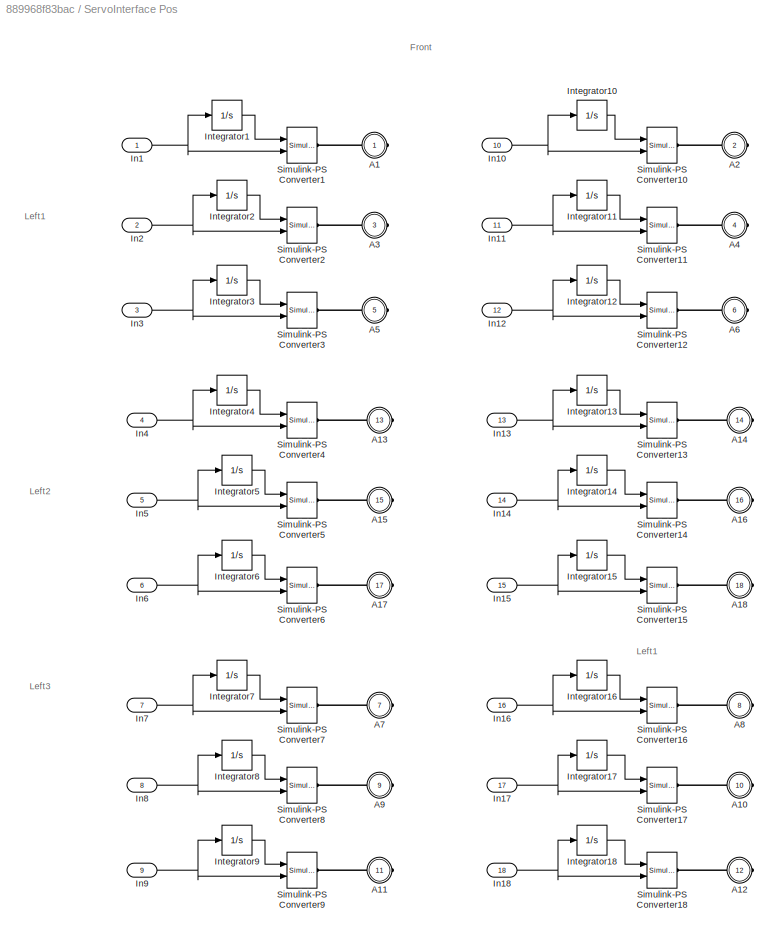
BLOCK [SubSystem] ServoInterface Pos
  Ports = [18, 0, 0, 0, 0, 0, 18]
  RequestExecContextInheritance = off
BLOCK [PMIOPort] ServoInterface Pos/A1
  Port = 1
  Side = Right
BLOCK [PMIOPort] ServoInterface Pos/A10
  Port = 10
  Side = Right
BLOCK [PMIOPort] ServoInterface Pos/A11
  Port = 11
  Side = Right
BLOCK [PMIOPort] ServoInterface Pos/A12
  Port = 12
  Side = Right
BLOCK [PMIOPort] ServoInterface Pos/A13
  Port = 13
  Side = Right
BLOCK [PMIOPort] ServoInterface Pos/A14
  Port = 14
  Side = Right
BLOCK [PMIOPort] ServoInterface Pos/A15
  Port = 15
  Side = Right
BLOCK [PMIOPort] ServoInterface Pos/A16
  Port = 16
  Side = Right
BLOCK [PMIOPort] ServoInterface Pos/A17
  Port = 17
  Side = Right
BLOCK [PMIOPort] ServoInterface Pos/A18
  Port = 18
  Side = Right
BLOCK [PMIOPort] ServoInterface Pos/A2
  Port = 2
  Side = Right
BLOCK [PMIOPort] ServoInterface Pos/A3
  Port = 3
  Side = Right
BLOCK [PMIOPort] ServoInterface Pos/A4
  Port = 4
  Side = Right
BLOCK [PMIOPort] ServoInterface Pos/A5
  Port = 5
  Side = Right
BLOCK [PMIOPort] ServoInterface Pos/A6
  Port = 6
  Side = Right
BLOCK [PMIOPort] ServoInterface Pos/A7
  Port = 7
  Side = Right
BLOCK [PMIOPort] ServoInterface Pos/A8
  Port = 8
  Side = Right
BLOCK [PMIOPort] ServoInterface Pos/A9
  Port = 9
  Side = Right
BLOCK [Inport] ServoInterface Pos/In1
  IconDisplay = Port number
BLOCK [Inport] ServoInterface Pos/In10
  IconDisplay = Port number
  Port = 10
BLOCK [Inport] ServoInterface Pos/In11
  IconDisplay = Port number
  Port = 11
BLOCK [Inport] ServoInterface Pos/In12
  IconDisplay = Port number
  Port = 12
BLOCK [Inport] ServoInterface Pos/In13
  IconDisplay = Port number
  Port = 13
BLOCK [Inport] ServoInterface Pos/In14
  IconDisplay = Port number
  Port = 14
BLOCK [Inport] ServoInterface Pos/In15
  IconDisplay = Port number
  Port = 15
BLOCK [Inport] ServoInterface Pos/In16
  IconDisplay = Port number
  Port = 16
BLOCK [Inport] ServoInterface Pos/In17
  IconDisplay = Port number
  Port = 17
BLOCK [Inport] ServoInterface Pos/In18
  IconDisplay = Port number
  Port = 18
BLOCK [Inport] ServoInterface Pos/In2
  IconDisplay = Port number
  Port = 2
BLOCK [Inport] ServoInterface Pos/In3
  IconDisplay = Port number
  Port = 3
BLOCK [Inport] ServoInterface Pos/In4
  IconDisplay = Port number
  Port = 4
BLOCK [Inport] ServoInterface Pos/In5
  IconDisplay = Port number
  Port = 5
BLOCK [Inport] ServoInterface Pos/In6
  IconDisplay = Port number
  Port = 6
BLOCK [Inport] ServoInterface Pos/In7
  IconDisplay = Port number
  Port = 7
BLOCK [Inport] ServoInterface Pos/In8
  IconDisplay = Port number
  Port = 8
BLOCK [Inport] ServoInterface Pos/In9
  IconDisplay = Port number
  Port = 9
BLOCK [Integrator] ServoInterface Pos/Integrator1
  Ports = [1, 1]
BLOCK [Integrator] ServoInterface Pos/Integrator10
  Ports = [1, 1]
BLOCK [Integrator] ServoInterface Pos/Integrator11
  Ports = [1, 1]
BLOCK [Integrator] ServoInterface Pos/Integrator12
  Ports = [1, 1]
BLOCK [Integrator] ServoInterface Pos/Integrator13
  Ports = [1, 1]
BLOCK [Integrator] ServoInterface Pos/Integrator14
  Ports = [1, 1]
BLOCK [Integrator] ServoInterface Pos/Integrator15
  Ports = [1, 1]
BLOCK [Integrator] ServoInterface Pos/Integrator16
  Ports = [1, 1]
BLOCK [Integrator] ServoInterface Pos/Integrator17
  Ports = [1, 1]
BLOCK [Integrator] ServoInterface Pos/Integrator18
  Ports = [1, 1]
BLOCK [Integrator] ServoInterface Pos/Integrator2
  Ports = [1, 1]
BLOCK [Integrator] ServoInterface Pos/Integrator3
  Ports = [1, 1]
BLOCK [Integrator] ServoInterface Pos/Integrator4
  Ports = [1, 1]
BLOCK [Integrator] ServoInterface Pos/Integrator5
  Ports = [1, 1]
BLOCK [Integrator] ServoInterface Pos/Integrator6
  Ports = [1, 1]
BLOCK [Integrator] ServoInterface Pos/Integrator7
  Ports = [1, 1]
BLOCK [Integrator] ServoInterface Pos/Integrator8
  Ports = [1, 1]
BLOCK [Integrator] ServoInterface Pos/Integrator9
  Ports = [1, 1]
BLOCK [Reference] ServoInterface Pos/Simulink-PS Converter1  REF=nesl_utility/Simulink-PS
Converter
  AffineConversion = off
  Frequencies = []
  InputFilterTimeConstant = 0.001
  InputFiltering = derivs
  LeftPortType = input
  NoiseDistribution = none
  NoiseParameters = []
  PhysicalDomain = network_engine_domain
  Ports = [2, 0, 0, 0, 0, 0, 1]
  PseudoPeriodic = off
  RightPortType = output
  SimscapeFilterOrder = 1
  SourceBlock = nesl_utility/Simulink-PS\nConverter
  SourceType = Simulink-PS\nConverter
  SubClassName = ps_input
  UdotUserProvided = 1
  Unit = deg
BLOCK [Reference] ServoInterface Pos/Simulink-PS Converter10  REF=nesl_utility/Simulink-PS
Converter
  AffineConversion = off
  Frequencies = []
  InputFilterTimeConstant = 0.001
  InputFiltering = derivs
  LeftPortType = input
  NoiseDistribution = none
  NoiseParameters = []
  PhysicalDomain = network_engine_domain
  Ports = [2, 0, 0, 0, 0, 0, 1]
  PseudoPeriodic = off
  RightPortType = output
  SimscapeFilterOrder = 1
  SourceBlock = nesl_utility/Simulink-PS\nConverter
  SourceType = Simulink-PS\nConverter
  SubClassName = ps_input
  UdotUserProvided = 1
  Unit = deg
BLOCK [Reference] ServoInterface Pos/Simulink-PS Converter11  REF=nesl_utility/Simulink-PS
Converter
  AffineConversion = off
  Frequencies = []
  InputFilterTimeConstant = 0.001
  InputFiltering = derivs
  LeftPortType = input
  NoiseDistribution = none
  NoiseParameters = []
  PhysicalDomain = network_engine_domain
  Ports = [2, 0, 0, 0, 0, 0, 1]
  PseudoPeriodic = off
  RightPortType = output
  SimscapeFilterOrder = 1
  SourceBlock = nesl_utility/Simulink-PS\nConverter
  SourceType = Simulink-PS\nConverter
  SubClassName = ps_input
  UdotUserProvided = 1
  Unit = deg
BLOCK [Reference] ServoInterface Pos/Simulink-PS Converter12  REF=nesl_utility/Simulink-PS
Converter
  AffineConversion = off
  Frequencies = []
  InputFilterTimeConstant = 0.001
  InputFiltering = derivs
  LeftPortType = input
  NoiseDistribution = none
  NoiseParameters = []
  PhysicalDomain = network_engine_domain
  Ports = [2, 0, 0, 0, 0, 0, 1]
  PseudoPeriodic = off
  RightPortType = output
  SimscapeFilterOrder = 1
  SourceBlock = nesl_utility/Simulink-PS\nConverter
  SourceType = Simulink-PS\nConverter
  SubClassName = ps_input
  UdotUserProvided = 1
  Unit = deg
BLOCK [Reference] ServoInterface Pos/Simulink-PS Converter13  REF=nesl_utility/Simulink-PS
Converter
  AffineConversion = off
  Frequencies = []
  InputFilterTimeConstant = 0.001
  InputFiltering = derivs
  LeftPortType = input
  NoiseDistribution = none
  NoiseParameters = []
  PhysicalDomain = network_engine_domain
  Ports = [2, 0, 0, 0, 0, 0, 1]
  PseudoPeriodic = off
  RightPortType = output
  SimscapeFilterOrder = 1
  SourceBlock = nesl_utility/Simulink-PS\nConverter
  SourceType = Simulink-PS\nConverter
  SubClassName = ps_input
  UdotUserProvided = 1
  Unit = deg
BLOCK [Reference] ServoInterface Pos/Simulink-PS Converter14  REF=nesl_utility/Simulink-PS
Converter
  AffineConversion = off
  Frequencies = []
  InputFilterTimeConstant = 0.001
  InputFiltering = derivs
  LeftPortType = input
  NoiseDistribution = none
  NoiseParameters = []
  PhysicalDomain = network_engine_domain
  Ports = [2, 0, 0, 0, 0, 0, 1]
  PseudoPeriodic = off
  RightPortType = output
  SimscapeFilterOrder = 1
  SourceBlock = nesl_utility/Simulink-PS\nConverter
  SourceType = Simulink-PS\nConverter
  SubClassName = ps_input
  UdotUserProvided = 1
  Unit = deg
BLOCK [Reference] ServoInterface Pos/Simulink-PS Converter15  REF=nesl_utility/Simulink-PS
Converter
  AffineConversion = off
  Frequencies = []
  InputFilterTimeConstant = 0.001
  InputFiltering = derivs
  LeftPortType = input
  NoiseDistribution = none
  NoiseParameters = []
  PhysicalDomain = network_engine_domain
  Ports = [2, 0, 0, 0, 0, 0, 1]
  PseudoPeriodic = off
  RightPortType = output
  SimscapeFilterOrder = 1
  SourceBlock = nesl_utility/Simulink-PS\nConverter
  SourceType = Simulink-PS\nConverter
  SubClassName = ps_input
  UdotUserProvided = 1
  Unit = deg
BLOCK [Reference] ServoInterface Pos/Simulink-PS Converter16  REF=nesl_utility/Simulink-PS
Converter
  AffineConversion = off
  Frequencies = []
  InputFilterTimeConstant = 0.001
  InputFiltering = derivs
  LeftPortType = input
  NoiseDistribution = none
  NoiseParameters = []
  PhysicalDomain = network_engine_domain
  Ports = [2, 0, 0, 0, 0, 0, 1]
  PseudoPeriodic = off
  RightPortType = output
  SimscapeFilterOrder = 1
  SourceBlock = nesl_utility/Simulink-PS\nConverter
  SourceType = Simulink-PS\nConverter
  SubClassName = ps_input
  UdotUserProvided = 1
  Unit = deg
BLOCK [Reference] ServoInterface Pos/Simulink-PS Converter17  REF=nesl_utility/Simulink-PS
Converter
  AffineConversion = off
  Frequencies = []
  InputFilterTimeConstant = 0.001
  InputFiltering = derivs
  LeftPortType = input
  NoiseDistribution = none
  NoiseParameters = []
  PhysicalDomain = network_engine_domain
  Ports = [2, 0, 0, 0, 0, 0, 1]
  PseudoPeriodic = off
  RightPortType = output
  SimscapeFilterOrder = 1
  SourceBlock = nesl_utility/Simulink-PS\nConverter
  SourceType = Simulink-PS\nConverter
  SubClassName = ps_input
  UdotUserProvided = 1
  Unit = deg
BLOCK [Reference] ServoInterface Pos/Simulink-PS Converter18  REF=nesl_utility/Simulink-PS
Converter
  AffineConversion = off
  Frequencies = []
  InputFilterTimeConstant = 0.001
  InputFiltering = derivs
  LeftPortType = input
  NoiseDistribution = none
  NoiseParameters = []
  PhysicalDomain = network_engine_domain
  Ports = [2, 0, 0, 0, 0, 0, 1]
  PseudoPeriodic = off
  RightPortType = output
  SimscapeFilterOrder = 1
  SourceBlock = nesl_utility/Simulink-PS\nConverter
  SourceType = Simulink-PS\nConverter
  SubClassName = ps_input
  UdotUserProvided = 1
  Unit = deg
BLOCK [Reference] ServoInterface Pos/Simulink-PS Converter2  REF=nesl_utility/Simulink-PS
Converter
  AffineConversion = off
  Frequencies = []
  InputFilterTimeConstant = 0.001
  InputFiltering = derivs
  LeftPortType = input
  NoiseDistribution = none
  NoiseParameters = []
  PhysicalDomain = network_engine_domain
  Ports = [2, 0, 0, 0, 0, 0, 1]
  PseudoPeriodic = off
  RightPortType = output
  SimscapeFilterOrder = 1
  SourceBlock = nesl_utility/Simulink-PS\nConverter
  SourceType = Simulink-PS\nConverter
  SubClassName = ps_input
  UdotUserProvided = 1
  Unit = deg
BLOCK [Reference] ServoInterface Pos/Simulink-PS Converter3  REF=nesl_utility/Simulink-PS
Converter
  AffineConversion = off
  Frequencies = []
  InputFilterTimeConstant = 0.001
  InputFiltering = derivs
  LeftPortType = input
  NoiseDistribution = none
  NoiseParameters = []
  PhysicalDomain = network_engine_domain
  Ports = [2, 0, 0, 0, 0, 0, 1]
  PseudoPeriodic = off
  RightPortType = output
  SimscapeFilterOrder = 1
  SourceBlock = nesl_utility/Simulink-PS\nConverter
  SourceType = Simulink-PS\nConverter
  SubClassName = ps_input
  UdotUserProvided = 1
  Unit = deg
BLOCK [Reference] ServoInterface Pos/Simulink-PS Converter4  REF=nesl_utility/Simulink-PS
Converter
  AffineConversion = off
  Frequencies = []
  InputFilterTimeConstant = 0.001
  InputFiltering = derivs
  LeftPortType = input
  NoiseDistribution = none
  NoiseParameters = []
  PhysicalDomain = network_engine_domain
  Ports = [2, 0, 0, 0, 0, 0, 1]
  PseudoPeriodic = off
  RightPortType = output
  SimscapeFilterOrder = 1
  SourceBlock = nesl_utility/Simulink-PS\nConverter
  SourceType = Simulink-PS\nConverter
  SubClassName = ps_input
  UdotUserProvided = 1
  Unit = deg
BLOCK [Reference] ServoInterface Pos/Simulink-PS Converter5  REF=nesl_utility/Simulink-PS
Converter
  AffineConversion = off
  Frequencies = []
  InputFilterTimeConstant = 0.001
  InputFiltering = derivs
  LeftPortType = input
  NoiseDistribution = none
  NoiseParameters = []
  PhysicalDomain = network_engine_domain
  Ports = [2, 0, 0, 0, 0, 0, 1]
  PseudoPeriodic = off
  RightPortType = output
  SimscapeFilterOrder = 1
  SourceBlock = nesl_utility/Simulink-PS\nConverter
  SourceType = Simulink-PS\nConverter
  SubClassName = ps_input
  UdotUserProvided = 1
  Unit = deg
BLOCK [Reference] ServoInterface Pos/Simulink-PS Converter6  REF=nesl_utility/Simulink-PS
Converter
  AffineConversion = off
  Frequencies = []
  InputFilterTimeConstant = 0.001
  InputFiltering = derivs
  LeftPortType = input
  NoiseDistribution = none
  NoiseParameters = []
  PhysicalDomain = network_engine_domain
  Ports = [2, 0, 0, 0, 0, 0, 1]
  PseudoPeriodic = off
  RightPortType = output
  SimscapeFilterOrder = 1
  SourceBlock = nesl_utility/Simulink-PS\nConverter
  SourceType = Simulink-PS\nConverter
  SubClassName = ps_input
  UdotUserProvided = 1
  Unit = deg
BLOCK [Reference] ServoInterface Pos/Simulink-PS Converter7  REF=nesl_utility/Simulink-PS
Converter
  AffineConversion = off
  Frequencies = []
  InputFilterTimeConstant = 0.001
  InputFiltering = derivs
  LeftPortType = input
  NoiseDistribution = none
  NoiseParameters = []
  PhysicalDomain = network_engine_domain
  Ports = [2, 0, 0, 0, 0, 0, 1]
  PseudoPeriodic = off
  RightPortType = output
  SimscapeFilterOrder = 1
  SourceBlock = nesl_utility/Simulink-PS\nConverter
  SourceType = Simulink-PS\nConverter
  SubClassName = ps_input
  UdotUserProvided = 1
  Unit = deg
BLOCK [Reference] ServoInterface Pos/Simulink-PS Converter8  REF=nesl_utility/Simulink-PS
Converter
  AffineConversion = off
  Frequencies = []
  InputFilterTimeConstant = 0.001
  InputFiltering = derivs
  LeftPortType = input
  NoiseDistribution = none
  NoiseParameters = []
  PhysicalDomain = network_engine_domain
  Ports = [2, 0, 0, 0, 0, 0, 1]
  PseudoPeriodic = off
  RightPortType = output
  SimscapeFilterOrder = 1
  SourceBlock = nesl_utility/Simulink-PS\nConverter
  SourceType = Simulink-PS\nConverter
  SubClassName = ps_input
  UdotUserProvided = 1
  Unit = deg
BLOCK [Reference] ServoInterface Pos/Simulink-PS Converter9  REF=nesl_utility/Simulink-PS
Converter
  AffineConversion = off
  Frequencies = []
  InputFilterTimeConstant = 0.001
  InputFiltering = derivs
  LeftPortType = input
  NoiseDistribution = none
  NoiseParameters = []
  PhysicalDomain = network_engine_domain
  Ports = [2, 0, 0, 0, 0, 0, 1]
  PseudoPeriodic = off
  RightPortType = output
  SimscapeFilterOrder = 1
  SourceBlock = nesl_utility/Simulink-PS\nConverter
  SourceType = Simulink-PS\nConverter
  SubClassName = ps_input
  UdotUserProvided = 1
  Unit = deg
BLOCK [SubSystem] ServoInterface Torque
  Ports = [18, 0, 0, 0, 0, 0, 18]
  RequestExecContextInheritance = off
BLOCK [PMIOPort] ServoInterface Torque/A1
  Port = 1
  Side = Right
BLOCK [PMIOPort] ServoInterface Torque/A10
  Port = 10
  Side = Right
BLOCK [PMIOPort] ServoInterface Torque/A11
  Port = 11
  Side = Right
BLOCK [PMIOPort] ServoInterface Torque/A12
  Port = 12
  Side = Right
BLOCK [PMIOPort] ServoInterface Torque/A13
  Port = 13
  Side = Right
BLOCK [PMIOPort] ServoInterface Torque/A14
  Port = 14
  Side = Right
BLOCK [PMIOPort] ServoInterface Torque/A15
  Port = 15
  Side = Right
BLOCK [PMIOPort] ServoInterface Torque/A16
  Port = 16
  Side = Right
BLOCK [PMIOPort] ServoInterface Torque/A17
  Port = 17
  Side = Right
BLOCK [PMIOPort] ServoInterface Torque/A18
  Port = 18
  Side = Right
BLOCK [PMIOPort] ServoInterface Torque/A2
  Port = 2
  Side = Right
BLOCK [PMIOPort] ServoInterface Torque/A3
  Port = 3
  Side = Right
BLOCK [PMIOPort] ServoInterface Torque/A4
  Port = 4
  Side = Right
BLOCK [PMIOPort] ServoInterface Torque/A5
  Port = 5
  Side = Right
BLOCK [PMIOPort] ServoInterface Torque/A6
  Port = 6
  Side = Right
BLOCK [PMIOPort] ServoInterface Torque/A7
  Port = 7
  Side = Right
BLOCK [PMIOPort] ServoInterface Torque/A8
  Port = 8
  Side = Right
BLOCK [PMIOPort] ServoInterface Torque/A9
  Port = 9
  Side = Right
BLOCK [Inport] ServoInterface Torque/In1
  IconDisplay = Port number
BLOCK [Inport] ServoInterface Torque/In10
  IconDisplay = Port number
  Port = 10
BLOCK [Inport] ServoInterface Torque/In11
  IconDisplay = Port number
  Port = 11
BLOCK [Inport] ServoInterface Torque/In12
  IconDisplay = Port number
  Port = 12
BLOCK [Inport] ServoInterface Torque/In13
  IconDisplay = Port number
  Port = 13
BLOCK [Inport] ServoInterface Torque/In14
  IconDisplay = Port number
  Port = 14
BLOCK [Inport] ServoInterface Torque/In15
  IconDisplay = Port number
  Port = 15
BLOCK [Inport] ServoInterface Torque/In16
  IconDisplay = Port number
  Port = 16
BLOCK [Inport] ServoInterface Torque/In17
  IconDisplay = Port number
  Port = 17
BLOCK [Inport] ServoInterface Torque/In18
  IconDisplay = Port number
  Port = 18
BLOCK [Inport] ServoInterface Torque/In2
  IconDisplay = Port number
  Port = 2
BLOCK [Inport] ServoInterface Torque/In3
  IconDisplay = Port number
  Port = 3
BLOCK [Inport] ServoInterface Torque/In4
  IconDisplay = Port number
  Port = 4
BLOCK [Inport] ServoInterface Torque/In5
  IconDisplay = Port number
  Port = 5
BLOCK [Inport] ServoInterface Torque/In6
  IconDisplay = Port number
  Port = 6
BLOCK [Inport] ServoInterface Torque/In7
  IconDisplay = Port number
  Port = 7
BLOCK [Inport] ServoInterface Torque/In8
  IconDisplay = Port number
  Port = 8
BLOCK [Inport] ServoInterface Torque/In9
  IconDisplay = Port number
  Port = 9
BLOCK [Reference] ServoInterface Torque/S-PS  REF=nesl_utility/Simulink-PS
Converter
  AffineConversion = off
  Frequencies = []
  InputFilterTimeConstant = 0.001
  InputFiltering = off
  LeftPortType = input
  NoiseDistribution = none
  NoiseParameters = []
  PhysicalDomain = network_engine_domain
  Ports = [1, 0, 0, 0, 0, 0, 1]
  PseudoPeriodic = off
  RightPortType = output
  SimscapeFilterOrder = 1
  SourceBlock = nesl_utility/Simulink-PS\nConverter
  SourceType = Simulink-PS\nConverter
  SubClassName = ps_input
  UdotUserProvided = 1
  Unit = N*m
BLOCK [Reference] ServoInterface Torque/S-PS1  REF=nesl_utility/Simulink-PS
Converter
  AffineConversion = off
  Frequencies = []
  InputFilterTimeConstant = 0.001
  InputFiltering = off
  LeftPortType = input
  NoiseDistribution = none
  NoiseParameters = []
  PhysicalDomain = network_engine_domain
  Ports = [1, 0, 0, 0, 0, 0, 1]
  PseudoPeriodic = off
  RightPortType = output
  SimscapeFilterOrder = 1
  SourceBlock = nesl_utility/Simulink-PS\nConverter
  SourceType = Simulink-PS\nConverter
  SubClassName = ps_input
  UdotUserProvided = 1
  Unit = N*m
BLOCK [Reference] ServoInterface Torque/S-PS10  REF=nesl_utility/Simulink-PS
Converter
  AffineConversion = off
  Frequencies = []
  InputFilterTimeConstant = 0.001
  InputFiltering = off
  LeftPortType = input
  NoiseDistribution = none
  NoiseParameters = []
  PhysicalDomain = network_engine_domain
  Ports = [1, 0, 0, 0, 0, 0, 1]
  PseudoPeriodic = off
  RightPortType = output
  SimscapeFilterOrder = 1
  SourceBlock = nesl_utility/Simulink-PS\nConverter
  SourceType = Simulink-PS\nConverter
  SubClassName = ps_input
  UdotUserProvided = 1
  Unit = N*m
BLOCK [Reference] ServoInterface Torque/S-PS11  REF=nesl_utility/Simulink-PS
Converter
  AffineConversion = off
  Frequencies = []
  InputFilterTimeConstant = 0.001
  InputFiltering = off
  LeftPortType = input
  NoiseDistribution = none
  NoiseParameters = []
  PhysicalDomain = network_engine_domain
  Ports = [1, 0, 0, 0, 0, 0, 1]
  PseudoPeriodic = off
  RightPortType = output
  SimscapeFilterOrder = 1
  SourceBlock = nesl_utility/Simulink-PS\nConverter
  SourceType = Simulink-PS\nConverter
  SubClassName = ps_input
  UdotUserProvided = 1
  Unit = N*m
BLOCK [Reference] ServoInterface Torque/S-PS12  REF=nesl_utility/Simulink-PS
Converter
  AffineConversion = off
  Frequencies = []
  InputFilterTimeConstant = 0.001
  InputFiltering = off
  LeftPortType = input
  NoiseDistribution = none
  NoiseParameters = []
  PhysicalDomain = network_engine_domain
  Ports = [1, 0, 0, 0, 0, 0, 1]
  PseudoPeriodic = off
  RightPortType = output
  SimscapeFilterOrder = 1
  SourceBlock = nesl_utility/Simulink-PS\nConverter
  SourceType = Simulink-PS\nConverter
  SubClassName = ps_input
  UdotUserProvided = 1
  Unit = N*m
BLOCK [Reference] ServoInterface Torque/S-PS13  REF=nesl_utility/Simulink-PS
Converter
  AffineConversion = off
  Frequencies = []
  InputFilterTimeConstant = 0.001
  InputFiltering = off
  LeftPortType = input
  NoiseDistribution = none
  NoiseParameters = []
  PhysicalDomain = network_engine_domain
  Ports = [1, 0, 0, 0, 0, 0, 1]
  PseudoPeriodic = off
  RightPortType = output
  SimscapeFilterOrder = 1
  SourceBlock = nesl_utility/Simulink-PS\nConverter
  SourceType = Simulink-PS\nConverter
  SubClassName = ps_input
  UdotUserProvided = 1
  Unit = N*m
BLOCK [Reference] ServoInterface Torque/S-PS14  REF=nesl_utility/Simulink-PS
Converter
  AffineConversion = off
  Frequencies = []
  InputFilterTimeConstant = 0.001
  InputFiltering = off
  LeftPortType = input
  NoiseDistribution = none
  NoiseParameters = []
  PhysicalDomain = network_engine_domain
  Ports = [1, 0, 0, 0, 0, 0, 1]
  PseudoPeriodic = off
  RightPortType = output
  SimscapeFilterOrder = 1
  SourceBlock = nesl_utility/Simulink-PS\nConverter
  SourceType = Simulink-PS\nConverter
  SubClassName = ps_input
  UdotUserProvided = 1
  Unit = N*m
BLOCK [Reference] ServoInterface Torque/S-PS15  REF=nesl_utility/Simulink-PS
Converter
  AffineConversion = off
  Frequencies = []
  InputFilterTimeConstant = 0.001
  InputFiltering = off
  LeftPortType = input
  NoiseDistribution = none
  NoiseParameters = []
  PhysicalDomain = network_engine_domain
  Ports = [1, 0, 0, 0, 0, 0, 1]
  PseudoPeriodic = off
  RightPortType = output
  SimscapeFilterOrder = 1
  SourceBlock = nesl_utility/Simulink-PS\nConverter
  SourceType = Simulink-PS\nConverter
  SubClassName = ps_input
  UdotUserProvided = 1
  Unit = N*m
BLOCK [Reference] ServoInterface Torque/S-PS16  REF=nesl_utility/Simulink-PS
Converter
  AffineConversion = off
  Frequencies = []
  InputFilterTimeConstant = 0.001
  InputFiltering = off
  LeftPortType = input
  NoiseDistribution = none
  NoiseParameters = []
  PhysicalDomain = network_engine_domain
  Ports = [1, 0, 0, 0, 0, 0, 1]
  PseudoPeriodic = off
  RightPortType = output
  SimscapeFilterOrder = 1
  SourceBlock = nesl_utility/Simulink-PS\nConverter
  SourceType = Simulink-PS\nConverter
  SubClassName = ps_input
  UdotUserProvided = 1
  Unit = N*m
BLOCK [Reference] ServoInterface Torque/S-PS17  REF=nesl_utility/Simulink-PS
Converter
  AffineConversion = off
  Frequencies = []
  InputFilterTimeConstant = 0.001
  InputFiltering = off
  LeftPortType = input
  NoiseDistribution = none
  NoiseParameters = []
  PhysicalDomain = network_engine_domain
  Ports = [1, 0, 0, 0, 0, 0, 1]
  PseudoPeriodic = off
  RightPortType = output
  SimscapeFilterOrder = 1
  SourceBlock = nesl_utility/Simulink-PS\nConverter
  SourceType = Simulink-PS\nConverter
  SubClassName = ps_input
  UdotUserProvided = 1
  Unit = N*m
BLOCK [Reference] ServoInterface Torque/S-PS2  REF=nesl_utility/Simulink-PS
Converter
  AffineConversion = off
  Frequencies = []
  InputFilterTimeConstant = 0.001
  InputFiltering = off
  LeftPortType = input
  NoiseDistribution = none
  NoiseParameters = []
  PhysicalDomain = network_engine_domain
  Ports = [1, 0, 0, 0, 0, 0, 1]
  PseudoPeriodic = off
  RightPortType = output
  SimscapeFilterOrder = 1
  SourceBlock = nesl_utility/Simulink-PS\nConverter
  SourceType = Simulink-PS\nConverter
  SubClassName = ps_input
  UdotUserProvided = 1
  Unit = N*m
BLOCK [Reference] ServoInterface Torque/S-PS3  REF=nesl_utility/Simulink-PS
Converter
  AffineConversion = off
  Frequencies = []
  InputFilterTimeConstant = 0.001
  InputFiltering = off
  LeftPortType = input
  NoiseDistribution = none
  NoiseParameters = []
  PhysicalDomain = network_engine_domain
  Ports = [1, 0, 0, 0, 0, 0, 1]
  PseudoPeriodic = off
  RightPortType = output
  SimscapeFilterOrder = 1
  SourceBlock = nesl_utility/Simulink-PS\nConverter
  SourceType = Simulink-PS\nConverter
  SubClassName = ps_input
  UdotUserProvided = 1
  Unit = N*m
BLOCK [Reference] ServoInterface Torque/S-PS4  REF=nesl_utility/Simulink-PS
Converter
  AffineConversion = off
  Frequencies = []
  InputFilterTimeConstant = 0.001
  InputFiltering = off
  LeftPortType = input
  NoiseDistribution = none
  NoiseParameters = []
  PhysicalDomain = network_engine_domain
  Ports = [1, 0, 0, 0, 0, 0, 1]
  PseudoPeriodic = off
  RightPortType = output
  SimscapeFilterOrder = 1
  SourceBlock = nesl_utility/Simulink-PS\nConverter
  SourceType = Simulink-PS\nConverter
  SubClassName = ps_input
  UdotUserProvided = 1
  Unit = N*m
BLOCK [Reference] ServoInterface Torque/S-PS5  REF=nesl_utility/Simulink-PS
Converter
  AffineConversion = off
  Frequencies = []
  InputFilterTimeConstant = 0.001
  InputFiltering = off
  LeftPortType = input
  NoiseDistribution = none
  NoiseParameters = []
  PhysicalDomain = network_engine_domain
  Ports = [1, 0, 0, 0, 0, 0, 1]
  PseudoPeriodic = off
  RightPortType = output
  SimscapeFilterOrder = 1
  SourceBlock = nesl_utility/Simulink-PS\nConverter
  SourceType = Simulink-PS\nConverter
  SubClassName = ps_input
  UdotUserProvided = 1
  Unit = N*m
BLOCK [Reference] ServoInterface Torque/S-PS6  REF=nesl_utility/Simulink-PS
Converter
  AffineConversion = off
  Frequencies = []
  InputFilterTimeConstant = 0.001
  InputFiltering = off
  LeftPortType = input
  NoiseDistribution = none
  NoiseParameters = []
  PhysicalDomain = network_engine_domain
  Ports = [1, 0, 0, 0, 0, 0, 1]
  PseudoPeriodic = off
  RightPortType = output
  SimscapeFilterOrder = 1
  SourceBlock = nesl_utility/Simulink-PS\nConverter
  SourceType = Simulink-PS\nConverter
  SubClassName = ps_input
  UdotUserProvided = 1
  Unit = N*m
BLOCK [Reference] ServoInterface Torque/S-PS7  REF=nesl_utility/Simulink-PS
Converter
  AffineConversion = off
  Frequencies = []
  InputFilterTimeConstant = 0.001
  InputFiltering = off
  LeftPortType = input
  NoiseDistribution = none
  NoiseParameters = []
  PhysicalDomain = network_engine_domain
  Ports = [1, 0, 0, 0, 0, 0, 1]
  PseudoPeriodic = off
  RightPortType = output
  SimscapeFilterOrder = 1
  SourceBlock = nesl_utility/Simulink-PS\nConverter
  SourceType = Simulink-PS\nConverter
  SubClassName = ps_input
  UdotUserProvided = 1
  Unit = N*m
BLOCK [Reference] ServoInterface Torque/S-PS8  REF=nesl_utility/Simulink-PS
Converter
  AffineConversion = off
  Frequencies = []
  InputFilterTimeConstant = 0.001
  InputFiltering = off
  LeftPortType = input
  NoiseDistribution = none
  NoiseParameters = []
  PhysicalDomain = network_engine_domain
  Ports = [1, 0, 0, 0, 0, 0, 1]
  PseudoPeriodic = off
  RightPortType = output
  SimscapeFilterOrder = 1
  SourceBlock = nesl_utility/Simulink-PS\nConverter
  SourceType = Simulink-PS\nConverter
  SubClassName = ps_input
  UdotUserProvided = 1
  Unit = N*m
BLOCK [Reference] ServoInterface Torque/S-PS9  REF=nesl_utility/Simulink-PS
Converter
  AffineConversion = off
  Frequencies = []
  InputFilterTimeConstant = 0.001
  InputFiltering = off
  LeftPortType = input
  NoiseDistribution = none
  NoiseParameters = []
  PhysicalDomain = network_engine_domain
  Ports = [1, 0, 0, 0, 0, 0, 1]
  PseudoPeriodic = off
  RightPortType = output
  SimscapeFilterOrder = 1
  SourceBlock = nesl_utility/Simulink-PS\nConverter
  SourceType = Simulink-PS\nConverter
  SubClassName = ps_input
  UdotUserProvided = 1
  Unit = N*m
BLOCK [SubSystem] ServoSensorInterface
  Ports = [18, 2]
  RequestExecContextInheritance = off
BLOCK [BusCreator] ServoSensorInterface/Bus Creator
  DisplayOption = bar
  Inputs = 3
  NonVirtualBus = on
  OutDataTypeStr = Bus: Leg_mes
  Ports = [3, 1]
BLOCK [BusCreator] ServoSensorInterface/Bus Creator1
  DisplayOption = bar
  Inputs = 3
  NonVirtualBus = on
  OutDataTypeStr = Bus: Leg_mes
  Ports = [3, 1]
BLOCK [BusCreator] ServoSensorInterface/Bus Creator2
  DisplayOption = bar
  Inputs = 3
  NonVirtualBus = on
  OutDataTypeStr = Bus: Leg_mes
  Ports = [3, 1]
BLOCK [BusCreator] ServoSensorInterface/Bus Creator3
  DisplayOption = bar
  Inputs = 3
  NonVirtualBus = on
  OutDataTypeStr = Bus: Leg_mes
  Ports = [3, 1]
BLOCK [BusCreator] ServoSensorInterface/Bus Creator4
  DisplayOption = bar
  Inputs = 3
  NonVirtualBus = on
  OutDataTypeStr = Bus: Leg_mes
  Ports = [3, 1]
BLOCK [BusCreator] ServoSensorInterface/Bus Creator5
  DisplayOption = bar
  Inputs = 3
  NonVirtualBus = on
  OutDataTypeStr = Bus: Leg_mes
  Ports = [3, 1]
BLOCK [Outport] ServoSensorInterface/Left
  IconDisplay = Port number
BLOCK [Outport] ServoSensorInterface/Right
  IconDisplay = Port number
  Port = 2
BLOCK [Inport] ServoSensorInterface/S1
  IconDisplay = Port number
BLOCK [Inport] ServoSensorInterface/S10
  IconDisplay = Port number
  Port = 10
BLOCK [Inport] ServoSensorInterface/S11
  IconDisplay = Port number
  Port = 11
BLOCK [Inport] ServoSensorInterface/S12
  IconDisplay = Port number
  Port = 12
BLOCK [Inport] ServoSensorInterface/S13
  IconDisplay = Port number
  Port = 13
BLOCK [Inport] ServoSensorInterface/S14
  IconDisplay = Port number
  Port = 14
BLOCK [Inport] ServoSensorInterface/S15
  IconDisplay = Port number
  Port = 15
BLOCK [Inport] ServoSensorInterface/S16
  IconDisplay = Port number
  Port = 16
BLOCK [Inport] ServoSensorInterface/S17
  IconDisplay = Port number
  Port = 17
BLOCK [Inport] ServoSensorInterface/S18
  IconDisplay = Port number
  Port = 18
BLOCK [Inport] ServoSensorInterface/S2
  IconDisplay = Port number
  Port = 2
BLOCK [Inport] ServoSensorInterface/S3
  IconDisplay = Port number
  Port = 3
BLOCK [Inport] ServoSensorInterface/S4
  IconDisplay = Port number
  Port = 4
BLOCK [Inport] ServoSensorInterface/S5
  IconDisplay = Port number
  Port = 5
BLOCK [Inport] ServoSensorInterface/S6
  IconDisplay = Port number
  Port = 6
BLOCK [Inport] ServoSensorInterface/S7
  IconDisplay = Port number
  Port = 7
BLOCK [Inport] ServoSensorInterface/S8
  IconDisplay = Port number
  Port = 8
BLOCK [Inport] ServoSensorInterface/S9
  IconDisplay = Port number
  Port = 9
BLOCK [Concatenate] ServoSensorInterface/Vector Concatenate
  ConcatenateDimension = 2
  NumInputs = 3
  Ports = [3, 1]
BLOCK [Concatenate] ServoSensorInterface/Vector Concatenate1
  ConcatenateDimension = 2
  NumInputs = 3
  Ports = [3, 1]
ANNOTATION (root): Pos Interface
ANNOTATION (root): Torque interface
ANNOTATION (root): Drivs med pos
ANNOTATION (root): Drivs med torque
ANNOTATION (root): Components with contact force
ANNOTATION (root): Components without contact force
ANNOTATION Hexapod contact: FRONT
ANNOTATION Main_Body: F1
ANNOTATION Main_Body: F2
ANNOTATION Main_Body: F3
ANNOTATION ServoInterface Pos: Left1
ANNOTATION ServoInterface Pos: Left2
ANNOTATION ServoInterface Pos: Left3
ANNOTATION ServoInterface Pos: Front
ANNOTATION ServoInterface Torque: Left1
ANNOTATION ServoInterface Torque: Left2
ANNOTATION ServoInterface Torque: Left3
ANNOTATION ServoInterface Torque: Right1
ANNOTATION ServoInterface Torque: Right2
ANNOTATION ServoInterface Torque: Right3
ANNOTATION ServoInterface Torque: Front
ANNOTATION ServoSensorInterface: Left1
ANNOTATION ServoSensorInterface: Left2
ANNOTATION ServoSensorInterface: Left3
ANNOTATION ServoSensorInterface: Right1
ANNOTATION ServoSensorInterface: Right2
ANNOTATION ServoSensorInterface: Right3
ANNOTATION ServoSensorInterface: Front
LINE Floor 2D/Circle to Finite Line Left10:1 -> Floor 2D/Out10:1
LINE Floor 2D/Circle to Finite Line Left11:1 -> Floor 2D/Out11:1
LINE Floor 2D/Circle to Finite Line Left12:1 -> Floor 2D/Out12:1
LINE Floor 2D/Circle to Finite Line Left1:1 -> Floor 2D/Out5:1
LINE Floor 2D/Circle to Finite Line Left2:1 -> Floor 2D/Out4:1
LINE Floor 2D/Circle to Finite Line Left:1 -> Floor 2D/Out6:1
LINE Floor 2D/Circle to Finite Line Righ12:1 -> Floor 2D/Out9:1
LINE Floor 2D/Circle to Finite Line Right10:1 -> Floor 2D/Out7:1
LINE Floor 2D/Circle to Finite Line Right11:1 -> Floor 2D/Out8:1
LINE Floor 2D/Circle to Finite Line Right1:1 -> Floor 2D/Out2:1
LINE Floor 2D/Circle to Finite Line Right2:1 -> Floor 2D/Out3:1
LINE Floor 2D/Circle to Finite Line Right:1 -> Floor 2D/Out1:1
LINE Hexapod contact/Bus Selector1:1 -> Hexapod contact/Scope1:1
LINE Hexapod contact/Bus Selector1:2 -> Hexapod contact/Scope1:2
LINE Hexapod contact/Bus Selector1:3 -> Hexapod contact/Scope1:3
LINE Hexapod contact/Bus Selector2:1 -> Hexapod contact/Scope2:1
LINE Hexapod contact/Bus Selector2:2 -> Hexapod contact/Scope2:2
LINE Hexapod contact/Bus Selector2:3 -> Hexapod contact/Scope2:3
LINE Hexapod contact/Bus Selector3:1 -> Hexapod contact/Scope3:1
LINE Hexapod contact/Bus Selector3:2 -> Hexapod contact/Scope3:2
LINE Hexapod contact/Bus Selector3:3 -> Hexapod contact/Scope3:3
LINE Hexapod contact/Bus Selector4:1 -> Hexapod contact/Scope4:1
LINE Hexapod contact/Bus Selector4:2 -> Hexapod contact/Scope4:2
LINE Hexapod contact/Bus Selector4:3 -> Hexapod contact/Scope4:3
LINE Hexapod contact/Bus Selector5:1 -> Hexapod contact/Scope5:1
LINE Hexapod contact/Bus Selector5:2 -> Hexapod contact/Scope5:2
LINE Hexapod contact/Bus Selector5:3 -> Hexapod contact/Scope5:3
LINE Hexapod contact/Bus Selector:1 -> Hexapod contact/Scope:1
LINE Hexapod contact/Bus Selector:2 -> Hexapod contact/Scope:2
LINE Hexapod contact/Bus Selector:3 -> Hexapod contact/Scope:3
LINE Hexapod contact/Floor 2D:1 -> Hexapod contact/Bus Selector:1
LINE Hexapod contact/Floor 2D:2 -> Hexapod contact/Bus Selector1:1
LINE Hexapod contact/Floor 2D:3 -> Hexapod contact/Bus Selector2:1
LINE Hexapod contact/Floor 2D:4 -> Hexapod contact/Bus Selector3:1
LINE Hexapod contact/Floor 2D:5 -> Hexapod contact/Bus Selector4:1
LINE Hexapod contact/Floor 2D:6 -> Hexapod contact/Bus Selector5:1
LINE Hexapod contact/Left_Leg_Contact1:1 -> Hexapod contact/S1:1
LINE Hexapod contact/Left_Leg_Contact1:2 -> Hexapod contact/S3:1
LINE Hexapod contact/Left_Leg_Contact1:3 -> Hexapod contact/S5:1
LINE Hexapod contact/Left_Leg_Contact2:1 -> Hexapod contact/S13:1
LINE Hexapod contact/Left_Leg_Contact2:2 -> Hexapod contact/S15:1
LINE Hexapod contact/Left_Leg_Contact2:3 -> Hexapod contact/S17:1
LINE Hexapod contact/Left_Leg_Contact3:1 -> Hexapod contact/S7:1
LINE Hexapod contact/Left_Leg_Contact3:2 -> Hexapod contact/S9:1
LINE Hexapod contact/Left_Leg_Contact3:3 -> Hexapod contact/S11:1
LINE Hexapod contact/Mux1:1 -> Hexapod contact/Display1:1
LINE Hexapod contact/Mux2:1 -> Hexapod contact/Display2:1
LINE Hexapod contact/Mux3:1 -> Hexapod contact/Display3:1
LINE Hexapod contact/Mux:1 -> Hexapod contact/Display:1
LINE Hexapod contact/PS-Simulink Converter10:1 -> Hexapod contact/Mux3:2
LINE Hexapod contact/PS-Simulink Converter11:1 -> Hexapod contact/Mux3:3
LINE Hexapod contact/PS-Simulink Converter1:1 -> Hexapod contact/Mux:2
LINE Hexapod contact/PS-Simulink Converter2:1 -> Hexapod contact/Mux:3
LINE Hexapod contact/PS-Simulink Converter3:1 -> Hexapod contact/Mux1:1
LINE Hexapod contact/PS-Simulink Converter4:1 -> Hexapod contact/Mux1:2
LINE Hexapod contact/PS-Simulink Converter5:1 -> Hexapod contact/Mux1:3
LINE Hexapod contact/PS-Simulink Converter6:1 -> Hexapod contact/Mux2:1
LINE Hexapod contact/PS-Simulink Converter7:1 -> Hexapod contact/Mux2:2
LINE Hexapod contact/PS-Simulink Converter8:1 -> Hexapod contact/Mux2:3
LINE Hexapod contact/PS-Simulink Converter9:1 -> Hexapod contact/Mux3:1
LINE Hexapod contact/PS-Simulink Converter:1 -> Hexapod contact/Mux:1
LINE Hexapod contact/Right_Leg_Contact1:1 -> Hexapod contact/S2:1
LINE Hexapod contact/Right_Leg_Contact1:2 -> Hexapod contact/S4:1
LINE Hexapod contact/Right_Leg_Contact1:3 -> Hexapod contact/S6:1
LINE Hexapod contact/Right_Leg_Contact2:1 -> Hexapod contact/S14:1
LINE Hexapod contact/Right_Leg_Contact2:2 -> Hexapod contact/S16:1
LINE Hexapod contact/Right_Leg_Contact2:3 -> Hexapod contact/S18:1
LINE Hexapod contact/Right_Leg_Contact3:1 -> Hexapod contact/S8:1
LINE Hexapod contact/Right_Leg_Contact3:2 -> Hexapod contact/S10:1
LINE Hexapod contact/Right_Leg_Contact3:3 -> Hexapod contact/S12:1
LINE Hexapod/Left_Leg1:1 -> Hexapod/S13:1
LINE Hexapod/Left_Leg1:2 -> Hexapod/S15:1
LINE Hexapod/Left_Leg1:3 -> Hexapod/S17:1
LINE Hexapod/Left_Leg2:1 -> Hexapod/S7:1
LINE Hexapod/Left_Leg2:2 -> Hexapod/S9:1
LINE Hexapod/Left_Leg2:3 -> Hexapod/S11:1
LINE Hexapod/Left_Leg:1 -> Hexapod/S1:1
LINE Hexapod/Left_Leg:2 -> Hexapod/S3:1
LINE Hexapod/Left_Leg:3 -> Hexapod/S5:1
LINE Hexapod/Right_Leg1:1 -> Hexapod/S14:1
LINE Hexapod/Right_Leg1:2 -> Hexapod/S16:1
LINE Hexapod/Right_Leg1:3 -> Hexapod/S18:1
LINE Hexapod/Right_Leg2:1 -> Hexapod/S8:1
LINE Hexapod/Right_Leg2:2 -> Hexapod/S10:1
LINE Hexapod/Right_Leg2:3 -> Hexapod/S12:1
LINE Hexapod/Right_Leg:1 -> Hexapod/S2:1
LINE Hexapod/Right_Leg:2 -> Hexapod/S4:1
LINE Hexapod/Right_Leg:3 -> Hexapod/S6:1
LINE Left_Leg/Bus Creator1:1 -> Left_Leg/S2:1
LINE Left_Leg/Bus Creator2:1 -> Left_Leg/S1:1
LINE Left_Leg/Bus Creator:1 -> Left_Leg/S3:1
LINE Left_Leg/PS-Simulink Converter1:1 -> Left_Leg/Bus Creator:2
LINE Left_Leg/PS-Simulink Converter2:1 -> Left_Leg/Bus Creator1:1
LINE Left_Leg/PS-Simulink Converter3:1 -> Left_Leg/Bus Creator1:2
LINE Left_Leg/PS-Simulink Converter4:1 -> Left_Leg/Bus Creator1:3
LINE Left_Leg/PS-Simulink Converter5:1 -> Left_Leg/Bus Creator2:1
LINE Left_Leg/PS-Simulink Converter6:1 -> Left_Leg/Bus Creator:3
LINE Left_Leg/PS-Simulink Converter7:1 -> Left_Leg/Bus Creator2:2
LINE Left_Leg/PS-Simulink Converter8:1 -> Left_Leg/Bus Creator2:3
LINE Left_Leg/PS-Simulink Converter:1 -> Left_Leg/Bus Creator:1
LINE Left_Leg_Contact/Bus Creator1:1 -> Left_Leg_Contact/S2:1
LINE Left_Leg_Contact/Bus Creator2:1 -> Left_Leg_Contact/S1:1
LINE Left_Leg_Contact/Bus Creator:1 -> Left_Leg_Contact/S3:1
LINE Left_Leg_Contact/PS-Simulink Converter1:1 -> Left_Leg_Contact/Bus Creator:2
LINE Left_Leg_Contact/PS-Simulink Converter2:1 -> Left_Leg_Contact/Bus Creator1:1
LINE Left_Leg_Contact/PS-Simulink Converter3:1 -> Left_Leg_Contact/Bus Creator1:2
LINE Left_Leg_Contact/PS-Simulink Converter4:1 -> Left_Leg_Contact/Bus Creator1:3
LINE Left_Leg_Contact/PS-Simulink Converter5:1 -> Left_Leg_Contact/Bus Creator2:1
LINE Left_Leg_Contact/PS-Simulink Converter6:1 -> Left_Leg_Contact/Bus Creator:3
LINE Left_Leg_Contact/PS-Simulink Converter7:1 -> Left_Leg_Contact/Bus Creator2:2
LINE Left_Leg_Contact/PS-Simulink Converter8:1 -> Left_Leg_Contact/Bus Creator2:3
LINE Left_Leg_Contact/PS-Simulink Converter:1 -> Left_Leg_Contact/Bus Creator:1
LINE Main_Body/Mux1:1 -> Main_Body/Display1:1
LINE Main_Body/Mux2:1 -> Main_Body/Display2:1
LINE Main_Body/Mux3:1 -> Main_Body/Display3:1
LINE Main_Body/PS-Simulink Converter1:1 -> Main_Body/Mux2:1
LINE Main_Body/PS-Simulink Converter2:1 -> Main_Body/Mux2:2
LINE Main_Body/PS-Simulink Converter3:1 -> Main_Body/Mux1:1
LINE Main_Body/PS-Simulink Converter4:1 -> Main_Body/Mux1:2
LINE Main_Body/PS-Simulink Converter5:1 -> Main_Body/Mux1:3
LINE Main_Body/PS-Simulink Converter6:1 -> Main_Body/Mux2:3
LINE Main_Body/PS-Simulink Converter7:1 -> Main_Body/Mux3:1
LINE Main_Body/PS-Simulink Converter8:1 -> Main_Body/Mux3:2
LINE Main_Body/PS-Simulink Converter9:1 -> Main_Body/Mux3:3
LINE Right_Leg/Bus Creator1:1 -> Right_Leg/S2:1
LINE Right_Leg/Bus Creator2:1 -> Right_Leg/S3:1
LINE Right_Leg/Bus Creator:1 -> Right_Leg/S1:1
LINE Right_Leg/PS-Simulink Converter1:1 -> Right_Leg/Bus Creator:2
LINE Right_Leg/PS-Simulink Converter2:1 -> Right_Leg/Bus Creator1:1
LINE Right_Leg/PS-Simulink Converter3:1 -> Right_Leg/Bus Creator1:2
LINE Right_Leg/PS-Simulink Converter4:1 -> Right_Leg/Bus Creator1:3
LINE Right_Leg/PS-Simulink Converter5:1 -> Right_Leg/Bus Creator2:1
LINE Right_Leg/PS-Simulink Converter6:1 -> Right_Leg/Bus Creator:3
LINE Right_Leg/PS-Simulink Converter7:1 -> Right_Leg/Bus Creator2:2
LINE Right_Leg/PS-Simulink Converter8:1 -> Right_Leg/Bus Creator2:3
LINE Right_Leg/PS-Simulink Converter:1 -> Right_Leg/Bus Creator:1
LINE Right_Leg_Contact/Bus Creator1:1 -> Right_Leg_Contact/S2:1
LINE Right_Leg_Contact/Bus Creator2:1 -> Right_Leg_Contact/S3:1
LINE Right_Leg_Contact/Bus Creator:1 -> Right_Leg_Contact/S1:1
LINE Right_Leg_Contact/PS-Simulink Converter1:1 -> Right_Leg_Contact/Bus Creator:2
LINE Right_Leg_Contact/PS-Simulink Converter2:1 -> Right_Leg_Contact/Bus Creator1:1
LINE Right_Leg_Contact/PS-Simulink Converter3:1 -> Right_Leg_Contact/Bus Creator1:2
LINE Right_Leg_Contact/PS-Simulink Converter4:1 -> Right_Leg_Contact/Bus Creator1:3
LINE Right_Leg_Contact/PS-Simulink Converter5:1 -> Right_Leg_Contact/Bus Creator2:1
LINE Right_Leg_Contact/PS-Simulink Converter6:1 -> Right_Leg_Contact/Bus Creator:3
LINE Right_Leg_Contact/PS-Simulink Converter7:1 -> Right_Leg_Contact/Bus Creator2:2
LINE Right_Leg_Contact/PS-Simulink Converter8:1 -> Right_Leg_Contact/Bus Creator2:3
LINE Right_Leg_Contact/PS-Simulink Converter:1 -> Right_Leg_Contact/Bus Creator:1
NET ServoInterface Pos/In10:1 -> ServoInterface Pos/Integrator10:1, ServoInterface Pos/Simulink-PS Converter10:2
NET ServoInterface Pos/In11:1 -> ServoInterface Pos/Integrator11:1, ServoInterface Pos/Simulink-PS Converter11:2
NET ServoInterface Pos/In12:1 -> ServoInterface Pos/Integrator12:1, ServoInterface Pos/Simulink-PS Converter12:2
NET ServoInterface Pos/In13:1 -> ServoInterface Pos/Integrator13:1, ServoInterface Pos/Simulink-PS Converter13:2
NET ServoInterface Pos/In14:1 -> ServoInterface Pos/Integrator14:1, ServoInterface Pos/Simulink-PS Converter14:2
NET ServoInterface Pos/In15:1 -> ServoInterface Pos/Integrator15:1, ServoInterface Pos/Simulink-PS Converter15:2
NET ServoInterface Pos/In16:1 -> ServoInterface Pos/Integrator16:1, ServoInterface Pos/Simulink-PS Converter16:2
NET ServoInterface Pos/In17:1 -> ServoInterface Pos/Integrator17:1, ServoInterface Pos/Simulink-PS Converter17:2
NET ServoInterface Pos/In18:1 -> ServoInterface Pos/Integrator18:1, ServoInterface Pos/Simulink-PS Converter18:2
NET ServoInterface Pos/In1:1 -> ServoInterface Pos/Integrator1:1, ServoInterface Pos/Simulink-PS Converter1:2
NET ServoInterface Pos/In2:1 -> ServoInterface Pos/Integrator2:1, ServoInterface Pos/Simulink-PS Converter2:2
NET ServoInterface Pos/In3:1 -> ServoInterface Pos/Integrator3:1, ServoInterface Pos/Simulink-PS Converter3:2
NET ServoInterface Pos/In4:1 -> ServoInterface Pos/Integrator4:1, ServoInterface Pos/Simulink-PS Converter4:2
NET ServoInterface Pos/In5:1 -> ServoInterface Pos/Integrator5:1, ServoInterface Pos/Simulink-PS Converter5:2
NET ServoInterface Pos/In6:1 -> ServoInterface Pos/Integrator6:1, ServoInterface Pos/Simulink-PS Converter6:2
NET ServoInterface Pos/In7:1 -> ServoInterface Pos/Integrator7:1, ServoInterface Pos/Simulink-PS Converter7:2
NET ServoInterface Pos/In8:1 -> ServoInterface Pos/Integrator8:1, ServoInterface Pos/Simulink-PS Converter8:2
NET ServoInterface Pos/In9:1 -> ServoInterface Pos/Integrator9:1, ServoInterface Pos/Simulink-PS Converter9:2
LINE ServoInterface Pos/Integrator10:1 -> ServoInterface Pos/Simulink-PS Converter10:1
LINE ServoInterface Pos/Integrator11:1 -> ServoInterface Pos/Simulink-PS Converter11:1
LINE ServoInterface Pos/Integrator12:1 -> ServoInterface Pos/Simulink-PS Converter12:1
LINE ServoInterface Pos/Integrator13:1 -> ServoInterface Pos/Simulink-PS Converter13:1
LINE ServoInterface Pos/Integrator14:1 -> ServoInterface Pos/Simulink-PS Converter14:1
LINE ServoInterface Pos/Integrator15:1 -> ServoInterface Pos/Simulink-PS Converter15:1
LINE ServoInterface Pos/Integrator16:1 -> ServoInterface Pos/Simulink-PS Converter16:1
LINE ServoInterface Pos/Integrator17:1 -> ServoInterface Pos/Simulink-PS Converter17:1
LINE ServoInterface Pos/Integrator18:1 -> ServoInterface Pos/Simulink-PS Converter18:1
LINE ServoInterface Pos/Integrator1:1 -> ServoInterface Pos/Simulink-PS Converter1:1
LINE ServoInterface Pos/Integrator2:1 -> ServoInterface Pos/Simulink-PS Converter2:1
LINE ServoInterface Pos/Integrator3:1 -> ServoInterface Pos/Simulink-PS Converter3:1
LINE ServoInterface Pos/Integrator4:1 -> ServoInterface Pos/Simulink-PS Converter4:1
LINE ServoInterface Pos/Integrator5:1 -> ServoInterface Pos/Simulink-PS Converter5:1
LINE ServoInterface Pos/Integrator6:1 -> ServoInterface Pos/Simulink-PS Converter6:1
LINE ServoInterface Pos/Integrator7:1 -> ServoInterface Pos/Simulink-PS Converter7:1
LINE ServoInterface Pos/Integrator8:1 -> ServoInterface Pos/Simulink-PS Converter8:1
LINE ServoInterface Pos/Integrator9:1 -> ServoInterface Pos/Simulink-PS Converter9:1
LINE ServoInterface Torque/In10:1 -> ServoInterface Torque/S-PS9:1
LINE ServoInterface Torque/In11:1 -> ServoInterface Torque/S-PS10:1
LINE ServoInterface Torque/In12:1 -> ServoInterface Torque/S-PS11:1
LINE ServoInterface Torque/In13:1 -> ServoInterface Torque/S-PS12:1
LINE ServoInterface Torque/In14:1 -> ServoInterface Torque/S-PS13:1
LINE ServoInterface Torque/In15:1 -> ServoInterface Torque/S-PS14:1
LINE ServoInterface Torque/In16:1 -> ServoInterface Torque/S-PS15:1
LINE ServoInterface Torque/In17:1 -> ServoInterface Torque/S-PS16:1
LINE ServoInterface Torque/In18:1 -> ServoInterface Torque/S-PS17:1
LINE ServoInterface Torque/In1:1 -> ServoInterface Torque/S-PS:1
LINE ServoInterface Torque/In2:1 -> ServoInterface Torque/S-PS1:1
LINE ServoInterface Torque/In3:1 -> ServoInterface Torque/S-PS2:1
LINE ServoInterface Torque/In4:1 -> ServoInterface Torque/S-PS3:1
LINE ServoInterface Torque/In5:1 -> ServoInterface Torque/S-PS4:1
LINE ServoInterface Torque/In6:1 -> ServoInterface Torque/S-PS5:1
LINE ServoInterface Torque/In7:1 -> ServoInterface Torque/S-PS6:1
LINE ServoInterface Torque/In8:1 -> ServoInterface Torque/S-PS7:1
LINE ServoInterface Torque/In9:1 -> ServoInterface Torque/S-PS8:1
LINE ServoSensorInterface/Bus Creator1:1 -> ServoSensorInterface/Vector Concatenate:2
LINE ServoSensorInterface/Bus Creator2:1 -> ServoSensorInterface/Vector Concatenate:3
LINE ServoSensorInterface/Bus Creator3:1 -> ServoSensorInterface/Vector Concatenate1:1
LINE ServoSensorInterface/Bus Creator4:1 -> ServoSensorInterface/Vector Concatenate1:2
LINE ServoSensorInterface/Bus Creator5:1 -> ServoSensorInterface/Vector Concatenate1:3
LINE ServoSensorInterface/Bus Creator:1 -> ServoSensorInterface/Vector Concatenate:1
LINE ServoSensorInterface/S10:1 -> ServoSensorInterface/Bus Creator5:2
LINE ServoSensorInterface/S11:1 -> ServoSensorInterface/Bus Creator2:3
LINE ServoSensorInterface/S12:1 -> ServoSensorInterface/Bus Creator5:3
LINE ServoSensorInterface/S13:1 -> ServoSensorInterface/Bus Creator1:1
LINE ServoSensorInterface/S14:1 -> ServoSensorInterface/Bus Creator4:1
LINE ServoSensorInterface/S15:1 -> ServoSensorInterface/Bus Creator1:2
LINE ServoSensorInterface/S16:1 -> ServoSensorInterface/Bus Creator4:2
LINE ServoSensorInterface/S17:1 -> ServoSensorInterface/Bus Creator1:3
LINE ServoSensorInterface/S18:1 -> ServoSensorInterface/Bus Creator4:3
LINE ServoSensorInterface/S1:1 -> ServoSensorInterface/Bus Creator:1
LINE ServoSensorInterface/S2:1 -> ServoSensorInterface/Bus Creator3:1
LINE ServoSensorInterface/S3:1 -> ServoSensorInterface/Bus Creator:2
LINE ServoSensorInterface/S4:1 -> ServoSensorInterface/Bus Creator3:2
LINE ServoSensorInterface/S5:1 -> ServoSensorInterface/Bus Creator:3
LINE ServoSensorInterface/S6:1 -> ServoSensorInterface/Bus Creator3:3
LINE ServoSensorInterface/S7:1 -> ServoSensorInterface/Bus Creator2:1
LINE ServoSensorInterface/S8:1 -> ServoSensorInterface/Bus Creator5:1
LINE ServoSensorInterface/S9:1 -> ServoSensorInterface/Bus Creator2:2
LINE ServoSensorInterface/Vector Concatenate1:1 -> ServoSensorInterface/Right:1
LINE ServoSensorInterface/Vector Concatenate:1 -> ServoSensorInterface/Left:1
PNET net1: Floor 2D/Circle to Finite Line Left10:LConn1 -- Floor 2D/Circle to Finite Line Left:LConn1 -- Floor 2D/Rigid Transform7:RConn1
PNET net2: Floor 2D/Circle to Finite Line Left10:RConn1 -- Floor 2D/Circle to Finite Line Left11:RConn1 -- Floor 2D/Circle to Finite Line Left12:RConn1 -- Floor 2D/Circle to Finite Line Righ12:RConn1 -- Floor 2D/Circle to Finite Line Right10:RConn1 -- Floor 2D/Circle to Finite Line Right11:RConn1 -- Floor 2D/Floor2:RConn1
PNET net3: Floor 2D/Circle to Finite Line Left11:LConn1 -- Floor 2D/Circle to Finite Line Left1:LConn1 -- Floor 2D/Rigid Transform6:RConn1
PNET net4: Floor 2D/Circle to Finite Line Left12:LConn1 -- Floor 2D/Circle to Finite Line Left2:LConn1 -- Floor 2D/Rigid Transform5:RConn1
PNET net5: Floor 2D/Circle to Finite Line Left1:RConn1 -- Floor 2D/Circle to Finite Line Left2:RConn1 -- Floor 2D/Circle to Finite Line Left:RConn1 -- Floor 2D/Circle to Finite Line Right1:RConn1 -- Floor 2D/Circle to Finite Line Right2:RConn1 -- Floor 2D/Circle to Finite Line Right:RConn1 -- Floor 2D/Floor1:RConn1
PNET net6: Floor 2D/Circle to Finite Line Righ12:LConn1 -- Floor 2D/Circle to Finite Line Right2:LConn1 -- Floor 2D/Rigid Transform4:RConn1
PNET net7: Floor 2D/Circle to Finite Line Right10:LConn1 -- Floor 2D/Circle to Finite Line Right:LConn1 -- Floor 2D/Rigid Transform3:RConn1
PNET net8: Floor 2D/Circle to Finite Line Right11:LConn1 -- Floor 2D/Circle to Finite Line Right1:LConn1 -- Floor 2D/Rigid Transform1:RConn1
PNET net9: Floor 2D/Floor1:LConn1 -- Floor 2D/Floor2:LConn1 -- Floor 2D/Floor:RConn1 -- Floor 2D/World:RConn1
PLINE Floor 2D/Left1:RConn1 -- Floor 2D/Rigid Transform7:LConn1
PLINE Floor 2D/Left2:RConn1 -- Floor 2D/Rigid Transform6:LConn1
PLINE Floor 2D/Left3:RConn1 -- Floor 2D/Rigid Transform5:LConn1
PLINE Floor 2D/Right1:RConn1 -- Floor 2D/Rigid Transform3:LConn1
PLINE Floor 2D/Right2:RConn1 -- Floor 2D/Rigid Transform1:LConn1
PLINE Floor 2D/Right3:RConn1 -- Floor 2D/Rigid Transform4:LConn1
PLINE Hexapod contact/A10:RConn1 -- Hexapod contact/Right_Leg_Contact3:LConn3
PLINE Hexapod contact/A11:RConn1 -- Hexapod contact/Left_Leg_Contact3:LConn3
PLINE Hexapod contact/A12:RConn1 -- Hexapod contact/Right_Leg_Contact3:LConn4
PLINE Hexapod contact/A13:RConn1 -- Hexapod contact/Left_Leg_Contact2:LConn1
PLINE Hexapod contact/A14:RConn1 -- Hexapod contact/Right_Leg_Contact2:LConn2
PLINE Hexapod contact/A15:RConn1 -- Hexapod contact/Left_Leg_Contact2:LConn2
PLINE Hexapod contact/A16:RConn1 -- Hexapod contact/Right_Leg_Contact2:LConn3
PLINE Hexapod contact/A17:RConn1 -- Hexapod contact/Left_Leg_Contact2:LConn3
PLINE Hexapod contact/A18:RConn1 -- Hexapod contact/Right_Leg_Contact2:LConn4
PLINE Hexapod contact/A1:RConn1 -- Hexapod contact/Left_Leg_Contact1:LConn1
PLINE Hexapod contact/A2:RConn1 -- Hexapod contact/Right_Leg_Contact1:LConn2
PLINE Hexapod contact/A3:RConn1 -- Hexapod contact/Left_Leg_Contact1:LConn2
PLINE Hexapod contact/A4:RConn1 -- Hexapod contact/Right_Leg_Contact1:LConn3
PLINE Hexapod contact/A5:RConn1 -- Hexapod contact/Left_Leg_Contact1:LConn3
PLINE Hexapod contact/A6:RConn1 -- Hexapod contact/Right_Leg_Contact1:LConn4
PLINE Hexapod contact/A7:RConn1 -- Hexapod contact/Left_Leg_Contact3:LConn1
PLINE Hexapod contact/A8:RConn1 -- Hexapod contact/Right_Leg_Contact3:LConn2
PLINE Hexapod contact/A9:RConn1 -- Hexapod contact/Left_Leg_Contact3:LConn2
PNET net10: Hexapod contact/Floor 2D:LConn1 -- Hexapod contact/Right_Leg_Contact1:RConn1 -- Hexapod contact/Transform Sensor2:RConn1
PNET net11: Hexapod contact/Floor 2D:LConn3 -- Hexapod contact/Right_Leg_Contact3:RConn1 -- Hexapod contact/Transform Sensor3:RConn1
PLINE Hexapod contact/Floor 2D:LConn4 -- Hexapod contact/Left_Leg_Contact3:LConn4
PNET net12: Hexapod contact/Floor 2D:LConn5 -- Hexapod contact/Left_Leg_Contact2:LConn4 -- Hexapod contact/Transform Sensor1:RConn1
PLINE Hexapod contact/Floor 2D:LConn6 -- Hexapod contact/Left_Leg_Contact1:LConn4
PNET net13: Hexapod contact/Floor 2D:LConn7 -- Hexapod contact/MechanismConfiguration:RConn1 -- Hexapod contact/Solver Configuration:RConn1 -- Hexapod contact/Transform1:LConn1 -- Hexapod contact/World:RConn1
PLINE Hexapod contact/Left_Leg_Contact1:RConn1 -- Hexapod contact/Main_Body:LConn2
PNET net14: Hexapod contact/Left_Leg_Contact2:RConn1 -- Hexapod contact/Main_Body:LConn3 -- Hexapod contact/Transform Sensor1:LConn1
PLINE Hexapod contact/Left_Leg_Contact3:RConn1 -- Hexapod contact/Main_Body:LConn4
PLINE Hexapod contact/Main_Body:LConn1 -- Hexapod contact/Transform1:RConn1
PLINE Hexapod contact/Main_Body:RConn1 -- Hexapod contact/Right_Leg_Contact1:LConn1
PLINE Hexapod contact/Main_Body:RConn2 -- Hexapod contact/Right_Leg_Contact2:LConn1
PLINE Hexapod contact/Main_Body:RConn3 -- Hexapod contact/Right_Leg_Contact3:LConn1
PNET net15: Hexapod contact/Main_Body:RConn4 -- Hexapod contact/Transform Sensor2:LConn1 -- Hexapod contact/Transform Sensor3:LConn1 -- Hexapod contact/Transform Sensor:LConn1
PLINE Hexapod contact/PS-Simulink Converter10:LConn1 -- Hexapod contact/Transform Sensor3:RConn3
PLINE Hexapod contact/PS-Simulink Converter11:LConn1 -- Hexapod contact/Transform Sensor3:RConn4
PLINE Hexapod contact/PS-Simulink Converter1:LConn1 -- Hexapod contact/Transform Sensor:RConn3
PLINE Hexapod contact/PS-Simulink Converter2:LConn1 -- Hexapod contact/Transform Sensor:RConn4
PLINE Hexapod contact/PS-Simulink Converter3:LConn1 -- Hexapod contact/Transform Sensor1:RConn2
PLINE Hexapod contact/PS-Simulink Converter4:LConn1 -- Hexapod contact/Transform Sensor1:RConn3
PLINE Hexapod contact/PS-Simulink Converter5:LConn1 -- Hexapod contact/Transform Sensor1:RConn4
PLINE Hexapod contact/PS-Simulink Converter6:LConn1 -- Hexapod contact/Transform Sensor2:RConn2
PLINE Hexapod contact/PS-Simulink Converter7:LConn1 -- Hexapod contact/Transform Sensor2:RConn3
PLINE Hexapod contact/PS-Simulink Converter8:LConn1 -- Hexapod contact/Transform Sensor2:RConn4
PLINE Hexapod contact/PS-Simulink Converter9:LConn1 -- Hexapod contact/Transform Sensor3:RConn2
PLINE Hexapod contact/PS-Simulink Converter:LConn1 -- Hexapod contact/Transform Sensor:RConn2
PLINE Hexapod contact/Right_Leg_Contact2:RConn1 -- Hexapod contact/Transform Sensor:RConn1
PLINE Hexapod/A10:RConn1 -- Hexapod/Right_Leg2:LConn3
PLINE Hexapod/A11:RConn1 -- Hexapod/Left_Leg2:LConn3
PLINE Hexapod/A12:RConn1 -- Hexapod/Right_Leg2:LConn4
PLINE Hexapod/A13:RConn1 -- Hexapod/Left_Leg1:LConn1
PLINE Hexapod/A14:RConn1 -- Hexapod/Right_Leg1:LConn2
PLINE Hexapod/A15:RConn1 -- Hexapod/Left_Leg1:LConn2
PLINE Hexapod/A16:RConn1 -- Hexapod/Right_Leg1:LConn3
PLINE Hexapod/A17:RConn1 -- Hexapod/Left_Leg1:LConn3
PLINE Hexapod/A18:RConn1 -- Hexapod/Right_Leg1:LConn4
PLINE Hexapod/A1:RConn1 -- Hexapod/Left_Leg:LConn1
PLINE Hexapod/A2:RConn1 -- Hexapod/Right_Leg:LConn2
PLINE Hexapod/A3:RConn1 -- Hexapod/Left_Leg:LConn2
PLINE Hexapod/A4:RConn1 -- Hexapod/Right_Leg:LConn3
PLINE Hexapod/A5:RConn1 -- Hexapod/Left_Leg:LConn3
PLINE Hexapod/A6:RConn1 -- Hexapod/Right_Leg:LConn4
PLINE Hexapod/A7:RConn1 -- Hexapod/Left_Leg2:LConn1
PLINE Hexapod/A8:RConn1 -- Hexapod/Right_Leg2:LConn2
PLINE Hexapod/A9:RConn1 -- Hexapod/Left_Leg2:LConn2
PLINE Hexapod/Left_Leg1:RConn1 -- Hexapod/Main_Body:LConn3
PLINE Hexapod/Left_Leg2:RConn1 -- Hexapod/Main_Body:LConn4
PLINE Hexapod/Left_Leg:RConn1 -- Hexapod/Main_Body:LConn2
PLINE Hexapod/Main_Body:LConn1 -- Hexapod/Transform1:RConn1
PLINE Hexapod/Main_Body:RConn1 -- Hexapod/Right_Leg:LConn1
PLINE Hexapod/Main_Body:RConn2 -- Hexapod/Right_Leg1:LConn1
PLINE Hexapod/Main_Body:RConn3 -- Hexapod/Right_Leg2:LConn1
PNET net16: Hexapod/MechanismConfiguration:RConn1 -- Hexapod/Solver Configuration:RConn1 -- Hexapod/Transform1:LConn1 -- Hexapod/World:RConn1
PLINE Left_Leg/A1:RConn1 -- Left_Leg/Revolute Joint1:LConn2
PLINE Left_Leg/A2:RConn1 -- Left_Leg/Revolute Joint2:LConn2
PLINE Left_Leg/A3:RConn1 -- Left_Leg/Revolute Joint3:LConn2
PNET net17: Left_Leg/Coxa_left_3_RIGID1/F1:RConn1 -- Left_Leg/Coxa_left_3_RIGID1/FXform:LConn1 -- Left_Leg/Coxa_left_3_RIGID1/ReferenceFrame:RConn1 -- Left_Leg/Coxa_left_3_RIGID1/Solid:RConn1
PLINE Left_Leg/Coxa_left_3_RIGID1/F:RConn1 -- Left_Leg/Coxa_left_3_RIGID1/FXform:RConn1
PLINE Left_Leg/Coxa_left_3_RIGID1:LConn1 -- Left_Leg/Revolute Joint1:RConn1
PLINE Left_Leg/Coxa_left_3_RIGID1:RConn1 -- Left_Leg/Revolute Joint2:RConn1
PNET net18: Left_Leg/F:RConn1 -- Left_Leg/ReferenceFrame:RConn1 -- Left_Leg/Revolute Joint1:LConn1
PLINE Left_Leg/F_GC:RConn1 -- Left_Leg/Tibia_left_3_RIGID:RConn1
PNET net19: Left_Leg/Femur_left_3_RIGID1/F1:RConn1 -- Left_Leg/Femur_left_3_RIGID1/FXform:LConn1 -- Left_Leg/Femur_left_3_RIGID1/ReferenceFrame:RConn1 -- Left_Leg/Femur_left_3_RIGID1/Solid:RConn1
PLINE Left_Leg/Femur_left_3_RIGID1/F:RConn1 -- Left_Leg/Femur_left_3_RIGID1/FXform:RConn1
PLINE Left_Leg/Femur_left_3_RIGID1:LConn1 -- Left_Leg/Revolute Joint2:LConn1
PLINE Left_Leg/Femur_left_3_RIGID1:RConn1 -- Left_Leg/Revolute Joint3:RConn1
PLINE Left_Leg/PS-Simulink Converter1:LConn1 -- Left_Leg/Revolute Joint3:RConn3
PLINE Left_Leg/PS-Simulink Converter2:LConn1 -- Left_Leg/Revolute Joint2:RConn2
PLINE Left_Leg/PS-Simulink Converter3:LConn1 -- Left_Leg/Revolute Joint2:RConn3
PLINE Left_Leg/PS-Simulink Converter4:LConn1 -- Left_Leg/Revolute Joint2:RConn4
PLINE Left_Leg/PS-Simulink Converter5:LConn1 -- Left_Leg/Revolute Joint1:RConn2
PLINE Left_Leg/PS-Simulink Converter6:LConn1 -- Left_Leg/Revolute Joint3:RConn4
PLINE Left_Leg/PS-Simulink Converter7:LConn1 -- Left_Leg/Revolute Joint1:RConn3
PLINE Left_Leg/PS-Simulink Converter8:LConn1 -- Left_Leg/Revolute Joint1:RConn4
PLINE Left_Leg/PS-Simulink Converter:LConn1 -- Left_Leg/Revolute Joint3:RConn2
PLINE Left_Leg/Revolute Joint3:LConn1 -- Left_Leg/Tibia_left_3_RIGID:LConn1
PNET net20: Left_Leg/Tibia_left_3_RIGID/F:RConn1 -- Left_Leg/Tibia_left_3_RIGID/F_GCXform:LConn1 -- Left_Leg/Tibia_left_3_RIGID/ReferenceFrame:RConn1 -- Left_Leg/Tibia_left_3_RIGID/Solid:RConn1
PLINE Left_Leg/Tibia_left_3_RIGID/F_GC:RConn1 -- Left_Leg/Tibia_left_3_RIGID/F_GCXform:RConn1
PLINE Left_Leg_Contact/A1:RConn1 -- Left_Leg_Contact/Revolute Joint1:LConn2
PLINE Left_Leg_Contact/A2:RConn1 -- Left_Leg_Contact/Revolute Joint2:LConn2
PLINE Left_Leg_Contact/A3:RConn1 -- Left_Leg_Contact/Revolute Joint3:LConn2
PNET net21: Left_Leg_Contact/Coxa_left_3_RIGID1/F1:RConn1 -- Left_Leg_Contact/Coxa_left_3_RIGID1/FXform:LConn1 -- Left_Leg_Contact/Coxa_left_3_RIGID1/ReferenceFrame:RConn1 -- Left_Leg_Contact/Coxa_left_3_RIGID1/Solid:RConn1
PLINE Left_Leg_Contact/Coxa_left_3_RIGID1/F:RConn1 -- Left_Leg_Contact/Coxa_left_3_RIGID1/FXform:RConn1
PLINE Left_Leg_Contact/Coxa_left_3_RIGID1:LConn1 -- Left_Leg_Contact/Revolute Joint1:RConn1
PLINE Left_Leg_Contact/Coxa_left_3_RIGID1:RConn1 -- Left_Leg_Contact/Revolute Joint2:RConn1
PNET net22: Left_Leg_Contact/F:RConn1 -- Left_Leg_Contact/ReferenceFrame:RConn1 -- Left_Leg_Contact/Revolute Joint1:LConn1
PLINE Left_Leg_Contact/F_GC:RConn1 -- Left_Leg_Contact/Tibia_left_3_RIGID:RConn1
PNET net23: Left_Leg_Contact/Femur_left_3_RIGID1/F1:RConn1 -- Left_Leg_Contact/Femur_left_3_RIGID1/FXform:LConn1 -- Left_Leg_Contact/Femur_left_3_RIGID1/ReferenceFrame:RConn1 -- Left_Leg_Contact/Femur_left_3_RIGID1/Solid:RConn1
PLINE Left_Leg_Contact/Femur_left_3_RIGID1/F:RConn1 -- Left_Leg_Contact/Femur_left_3_RIGID1/FXform:RConn1
PLINE Left_Leg_Contact/Femur_left_3_RIGID1:LConn1 -- Left_Leg_Contact/Revolute Joint2:LConn1
PLINE Left_Leg_Contact/Femur_left_3_RIGID1:RConn1 -- Left_Leg_Contact/Revolute Joint3:RConn1
PLINE Left_Leg_Contact/PS-Simulink Converter1:LConn1 -- Left_Leg_Contact/Revolute Joint3:RConn3
PLINE Left_Leg_Contact/PS-Simulink Converter2:LConn1 -- Left_Leg_Contact/Revolute Joint2:RConn2
PLINE Left_Leg_Contact/PS-Simulink Converter3:LConn1 -- Left_Leg_Contact/Revolute Joint2:RConn3
PLINE Left_Leg_Contact/PS-Simulink Converter4:LConn1 -- Left_Leg_Contact/Revolute Joint2:RConn4
PLINE Left_Leg_Contact/PS-Simulink Converter5:LConn1 -- Left_Leg_Contact/Revolute Joint1:RConn2
PLINE Left_Leg_Contact/PS-Simulink Converter6:LConn1 -- Left_Leg_Contact/Revolute Joint3:RConn4
PLINE Left_Leg_Contact/PS-Simulink Converter7:LConn1 -- Left_Leg_Contact/Revolute Joint1:RConn3
PLINE Left_Leg_Contact/PS-Simulink Converter8:LConn1 -- Left_Leg_Contact/Revolute Joint1:RConn4
PLINE Left_Leg_Contact/PS-Simulink Converter:LConn1 -- Left_Leg_Contact/Revolute Joint3:RConn2
PLINE Left_Leg_Contact/Revolute Joint3:LConn1 -- Left_Leg_Contact/Tibia_left_3_RIGID:LConn1
PNET net24: Left_Leg_Contact/Tibia_left_3_RIGID/F:RConn1 -- Left_Leg_Contact/Tibia_left_3_RIGID/F_GCXform:LConn1 -- Left_Leg_Contact/Tibia_left_3_RIGID/ReferenceFrame:RConn1 -- Left_Leg_Contact/Tibia_left_3_RIGID/Solid:RConn1
PLINE Left_Leg_Contact/Tibia_left_3_RIGID/F_GC:RConn1 -- Left_Leg_Contact/Tibia_left_3_RIGID/F_GCXform:RConn1
PNET net25: Main_Body/F1:RConn1 -- Main_Body/F1Xform:RConn1 -- Main_Body/Transform Sensor1:LConn1
PNET net26: Main_Body/F1Xform:LConn1 -- Main_Body/F2Xform:LConn1 -- Main_Body/F3Xform:LConn1 -- Main_Body/F4Xform:LConn1 -- Main_Body/F5Xform:LConn1 -- Main_Body/F6Xform:LConn1 -- Main_Body/ReferenceFrame:RConn1 -- Main_Body/Solid:RConn1 -- Main_Body/Transform:LConn1
PNET net27: Main_Body/F2:RConn1 -- Main_Body/F2Xform:RConn1 -- Main_Body/Transform Sensor2:LConn1
PNET net28: Main_Body/F3:RConn1 -- Main_Body/F3Xform:RConn1 -- Main_Body/Transform Sensor3:LConn1
PLINE Main_Body/F4:RConn1 -- Main_Body/F6Xform:RConn1
PLINE Main_Body/F4Xform:RConn1 -- Main_Body/F6:RConn1
PLINE Main_Body/F5:RConn1 -- Main_Body/F5Xform:RConn1
PNET net29: Main_Body/F:RConn1 -- Main_Body/Rigid Transform:LConn1 -- Main_Body/Transform:RConn1
PLINE Main_Body/PS-Simulink Converter1:LConn1 -- Main_Body/Transform Sensor2:RConn2
PLINE Main_Body/PS-Simulink Converter2:LConn1 -- Main_Body/Transform Sensor2:RConn3
PLINE Main_Body/PS-Simulink Converter3:LConn1 -- Main_Body/Transform Sensor1:RConn2
PLINE Main_Body/PS-Simulink Converter4:LConn1 -- Main_Body/Transform Sensor1:RConn3
PLINE Main_Body/PS-Simulink Converter5:LConn1 -- Main_Body/Transform Sensor1:RConn4
PLINE Main_Body/PS-Simulink Converter6:LConn1 -- Main_Body/Transform Sensor2:RConn4
PLINE Main_Body/PS-Simulink Converter7:LConn1 -- Main_Body/Transform Sensor3:RConn2
PLINE Main_Body/PS-Simulink Converter8:LConn1 -- Main_Body/Transform Sensor3:RConn3
PLINE Main_Body/PS-Simulink Converter9:LConn1 -- Main_Body/Transform Sensor3:RConn4
PNET net30: Main_Body/R_test:RConn1 -- Main_Body/Rigid Transform:RConn1 -- Main_Body/TEST:RConn1 -- Main_Body/Transform Sensor1:RConn1 -- Main_Body/Transform Sensor2:RConn1 -- Main_Body/Transform Sensor3:RConn1
PLINE Right_Leg/A1:RConn1 -- Right_Leg/Revolute Joint3:LConn2
PLINE Right_Leg/A2:RConn1 -- Right_Leg/Revolute Joint1:LConn2
PLINE Right_Leg/A3:RConn1 -- Right_Leg/Revolute Joint2:LConn2
PNET net31: Right_Leg/Coxa_right_1_RIGID/F1:RConn1 -- Right_Leg/Coxa_right_1_RIGID/FXform:LConn1 -- Right_Leg/Coxa_right_1_RIGID/ReferenceFrame:RConn1 -- Right_Leg/Coxa_right_1_RIGID/Solid:RConn1
PLINE Right_Leg/Coxa_right_1_RIGID/F:RConn1 -- Right_Leg/Coxa_right_1_RIGID/FXform:RConn1
PLINE Right_Leg/Coxa_right_1_RIGID:LConn1 -- Right_Leg/Revolute Joint3:RConn1
PLINE Right_Leg/Coxa_right_1_RIGID:RConn1 -- Right_Leg/Revolute Joint1:RConn1
PNET net32: Right_Leg/F:RConn1 -- Right_Leg/ReferenceFrame:RConn1 -- Right_Leg/Revolute Joint3:LConn1
PLINE Right_Leg/F_GC:RConn1 -- Right_Leg/Tibia_right_1_RIGID:RConn1
PNET net33: Right_Leg/Femur_right_1_RIGID/F1:RConn1 -- Right_Leg/Femur_right_1_RIGID/FXform:LConn1 -- Right_Leg/Femur_right_1_RIGID/ReferenceFrame:RConn1 -- Right_Leg/Femur_right_1_RIGID/Solid:RConn1
PLINE Right_Leg/Femur_right_1_RIGID/F:RConn1 -- Right_Leg/Femur_right_1_RIGID/FXform:RConn1
PLINE Right_Leg/Femur_right_1_RIGID:LConn1 -- Right_Leg/Revolute Joint1:LConn1
PLINE Right_Leg/Femur_right_1_RIGID:RConn1 -- Right_Leg/Revolute Joint2:RConn1
PLINE Right_Leg/PS-Simulink Converter1:LConn1 -- Right_Leg/Revolute Joint3:RConn3
PLINE Right_Leg/PS-Simulink Converter2:LConn1 -- Right_Leg/Revolute Joint1:RConn2
PLINE Right_Leg/PS-Simulink Converter3:LConn1 -- Right_Leg/Revolute Joint1:RConn3
PLINE Right_Leg/PS-Simulink Converter4:LConn1 -- Right_Leg/Revolute Joint1:RConn4
PLINE Right_Leg/PS-Simulink Converter5:LConn1 -- Right_Leg/Revolute Joint2:RConn2
PLINE Right_Leg/PS-Simulink Converter6:LConn1 -- Right_Leg/Revolute Joint3:RConn4
PLINE Right_Leg/PS-Simulink Converter7:LConn1 -- Right_Leg/Revolute Joint2:RConn3
PLINE Right_Leg/PS-Simulink Converter8:LConn1 -- Right_Leg/Revolute Joint2:RConn4
PLINE Right_Leg/PS-Simulink Converter:LConn1 -- Right_Leg/Revolute Joint3:RConn2
PLINE Right_Leg/Revolute Joint2:LConn1 -- Right_Leg/Tibia_right_1_RIGID:LConn1
PNET net34: Right_Leg/Tibia_right_1_RIGID/F:RConn1 -- Right_Leg/Tibia_right_1_RIGID/F_GCXform:LConn1 -- Right_Leg/Tibia_right_1_RIGID/ReferenceFrame:RConn1 -- Right_Leg/Tibia_right_1_RIGID/Solid:RConn1
PLINE Right_Leg/Tibia_right_1_RIGID/F_GC:RConn1 -- Right_Leg/Tibia_right_1_RIGID/F_GCXform:RConn1
PLINE Right_Leg_Contact/A1:RConn1 -- Right_Leg_Contact/Revolute Joint3:LConn2
PLINE Right_Leg_Contact/A2:RConn1 -- Right_Leg_Contact/Revolute Joint1:LConn2
PLINE Right_Leg_Contact/A3:RConn1 -- Right_Leg_Contact/Revolute Joint2:LConn2
PNET net35: Right_Leg_Contact/Coxa_right_1_RIGID/F1:RConn1 -- Right_Leg_Contact/Coxa_right_1_RIGID/FXform:LConn1 -- Right_Leg_Contact/Coxa_right_1_RIGID/ReferenceFrame:RConn1 -- Right_Leg_Contact/Coxa_right_1_RIGID/Solid:RConn1
PLINE Right_Leg_Contact/Coxa_right_1_RIGID/F:RConn1 -- Right_Leg_Contact/Coxa_right_1_RIGID/FXform:RConn1
PLINE Right_Leg_Contact/Coxa_right_1_RIGID:LConn1 -- Right_Leg_Contact/Revolute Joint3:RConn1
PLINE Right_Leg_Contact/Coxa_right_1_RIGID:RConn1 -- Right_Leg_Contact/Revolute Joint1:RConn1
PNET net36: Right_Leg_Contact/F:RConn1 -- Right_Leg_Contact/ReferenceFrame:RConn1 -- Right_Leg_Contact/Revolute Joint3:LConn1
PLINE Right_Leg_Contact/F_GC:RConn1 -- Right_Leg_Contact/Tibia_right_1_RIGID:RConn1
PNET net37: Right_Leg_Contact/Femur_right_1_RIGID/F1:RConn1 -- Right_Leg_Contact/Femur_right_1_RIGID/FXform:LConn1 -- Right_Leg_Contact/Femur_right_1_RIGID/ReferenceFrame:RConn1 -- Right_Leg_Contact/Femur_right_1_RIGID/Solid:RConn1
PLINE Right_Leg_Contact/Femur_right_1_RIGID/F:RConn1 -- Right_Leg_Contact/Femur_right_1_RIGID/FXform:RConn1
PLINE Right_Leg_Contact/Femur_right_1_RIGID:LConn1 -- Right_Leg_Contact/Revolute Joint1:LConn1
PLINE Right_Leg_Contact/Femur_right_1_RIGID:RConn1 -- Right_Leg_Contact/Revolute Joint2:RConn1
PLINE Right_Leg_Contact/PS-Simulink Converter1:LConn1 -- Right_Leg_Contact/Revolute Joint3:RConn3
PLINE Right_Leg_Contact/PS-Simulink Converter2:LConn1 -- Right_Leg_Contact/Revolute Joint1:RConn2
PLINE Right_Leg_Contact/PS-Simulink Converter3:LConn1 -- Right_Leg_Contact/Revolute Joint1:RConn3
PLINE Right_Leg_Contact/PS-Simulink Converter4:LConn1 -- Right_Leg_Contact/Revolute Joint1:RConn4
PLINE Right_Leg_Contact/PS-Simulink Converter5:LConn1 -- Right_Leg_Contact/Revolute Joint2:RConn2
PLINE Right_Leg_Contact/PS-Simulink Converter6:LConn1 -- Right_Leg_Contact/Revolute Joint3:RConn4
PLINE Right_Leg_Contact/PS-Simulink Converter7:LConn1 -- Right_Leg_Contact/Revolute Joint2:RConn3
PLINE Right_Leg_Contact/PS-Simulink Converter8:LConn1 -- Right_Leg_Contact/Revolute Joint2:RConn4
PLINE Right_Leg_Contact/PS-Simulink Converter:LConn1 -- Right_Leg_Contact/Revolute Joint3:RConn2
PLINE Right_Leg_Contact/Revolute Joint2:LConn1 -- Right_Leg_Contact/Tibia_right_1_RIGID:LConn1
PNET net38: Right_Leg_Contact/Tibia_right_1_RIGID/F:RConn1 -- Right_Leg_Contact/Tibia_right_1_RIGID/F_GCXform:LConn1 -- Right_Leg_Contact/Tibia_right_1_RIGID/ReferenceFrame:RConn1 -- Right_Leg_Contact/Tibia_right_1_RIGID/Solid:RConn1
PLINE Right_Leg_Contact/Tibia_right_1_RIGID/F_GC:RConn1 -- Right_Leg_Contact/Tibia_right_1_RIGID/F_GCXform:RConn1
PLINE ServoInterface Pos/A10:RConn1 -- ServoInterface Pos/Simulink-PS Converter17:RConn1
PLINE ServoInterface Pos/A11:RConn1 -- ServoInterface Pos/Simulink-PS Converter9:RConn1
PLINE ServoInterface Pos/A12:RConn1 -- ServoInterface Pos/Simulink-PS Converter18:RConn1
PLINE ServoInterface Pos/A13:RConn1 -- ServoInterface Pos/Simulink-PS Converter4:RConn1
PLINE ServoInterface Pos/A14:RConn1 -- ServoInterface Pos/Simulink-PS Converter13:RConn1
PLINE ServoInterface Pos/A15:RConn1 -- ServoInterface Pos/Simulink-PS Converter5:RConn1
PLINE ServoInterface Pos/A16:RConn1 -- ServoInterface Pos/Simulink-PS Converter14:RConn1
PLINE ServoInterface Pos/A17:RConn1 -- ServoInterface Pos/Simulink-PS Converter6:RConn1
PLINE ServoInterface Pos/A18:RConn1 -- ServoInterface Pos/Simulink-PS Converter15:RConn1
PLINE ServoInterface Pos/A1:RConn1 -- ServoInterface Pos/Simulink-PS Converter1:RConn1
PLINE ServoInterface Pos/A2:RConn1 -- ServoInterface Pos/Simulink-PS Converter10:RConn1
PLINE ServoInterface Pos/A3:RConn1 -- ServoInterface Pos/Simulink-PS Converter2:RConn1
PLINE ServoInterface Pos/A4:RConn1 -- ServoInterface Pos/Simulink-PS Converter11:RConn1
PLINE ServoInterface Pos/A5:RConn1 -- ServoInterface Pos/Simulink-PS Converter3:RConn1
PLINE ServoInterface Pos/A6:RConn1 -- ServoInterface Pos/Simulink-PS Converter12:RConn1
PLINE ServoInterface Pos/A7:RConn1 -- ServoInterface Pos/Simulink-PS Converter7:RConn1
PLINE ServoInterface Pos/A8:RConn1 -- ServoInterface Pos/Simulink-PS Converter16:RConn1
PLINE ServoInterface Pos/A9:RConn1 -- ServoInterface Pos/Simulink-PS Converter8:RConn1
PLINE ServoInterface Torque/A10:RConn1 -- ServoInterface Torque/S-PS16:RConn1
PLINE ServoInterface Torque/A11:RConn1 -- ServoInterface Torque/S-PS8:RConn1
PLINE ServoInterface Torque/A12:RConn1 -- ServoInterface Torque/S-PS17:RConn1
PLINE ServoInterface Torque/A13:RConn1 -- ServoInterface Torque/S-PS3:RConn1
PLINE ServoInterface Torque/A14:RConn1 -- ServoInterface Torque/S-PS12:RConn1
PLINE ServoInterface Torque/A15:RConn1 -- ServoInterface Torque/S-PS4:RConn1
PLINE ServoInterface Torque/A16:RConn1 -- ServoInterface Torque/S-PS13:RConn1
PLINE ServoInterface Torque/A17:RConn1 -- ServoInterface Torque/S-PS5:RConn1
PLINE ServoInterface Torque/A18:RConn1 -- ServoInterface Torque/S-PS14:RConn1
PLINE ServoInterface Torque/A1:RConn1 -- ServoInterface Torque/S-PS:RConn1
PLINE ServoInterface Torque/A2:RConn1 -- ServoInterface Torque/S-PS9:RConn1
PLINE ServoInterface Torque/A3:RConn1 -- ServoInterface Torque/S-PS1:RConn1
PLINE ServoInterface Torque/A4:RConn1 -- ServoInterface Torque/S-PS10:RConn1
PLINE ServoInterface Torque/A5:RConn1 -- ServoInterface Torque/S-PS2:RConn1
PLINE ServoInterface Torque/A6:RConn1 -- ServoInterface Torque/S-PS11:RConn1
PLINE ServoInterface Torque/A7:RConn1 -- ServoInterface Torque/S-PS6:RConn1
PLINE ServoInterface Torque/A8:RConn1 -- ServoInterface Torque/S-PS15:RConn1
PLINE ServoInterface Torque/A9:RConn1 -- ServoInterface Torque/S-PS7:RConn1
note: NET lines group one-source signal fan-out (src -> all destinations, sorted); 1:1 wires keep LINE; PNET lines group multi-terminal physical nets as a canonical sorted terminal list (undirected conserving connections); 2-terminal nets keep the pairwise PLINE form
